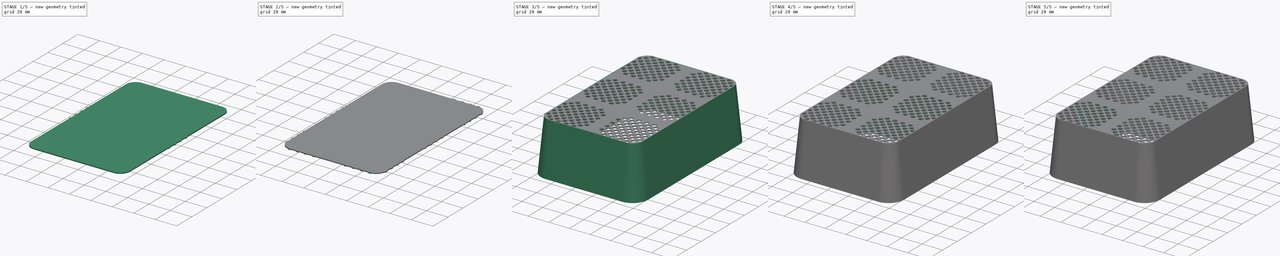
[diagram: build sequence overview — one tinted view per stage of 5, left to right]
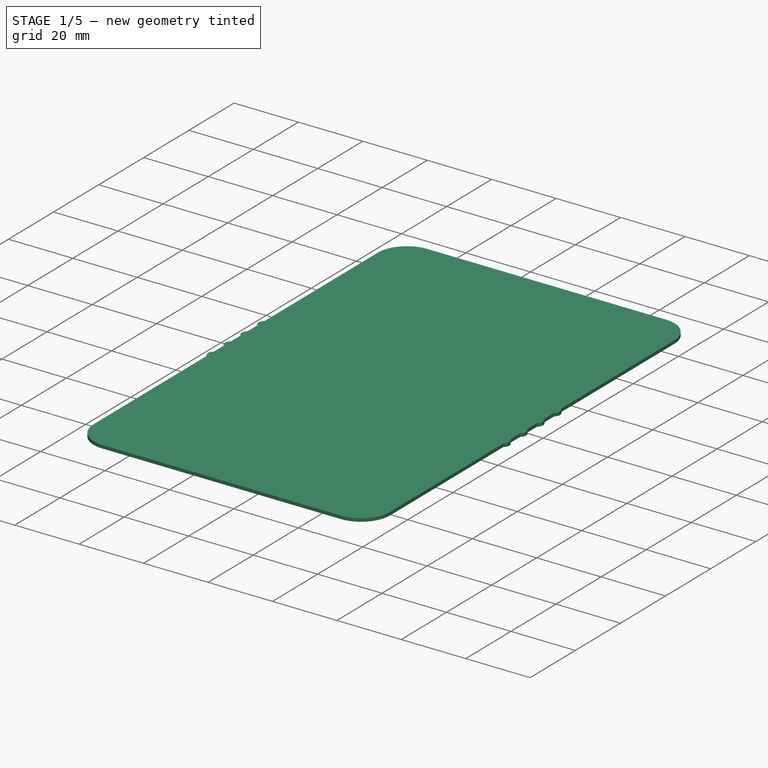
[diagram: stage 1 of 5 — iso view after this stage's code; geometry added in this stage tinted green]
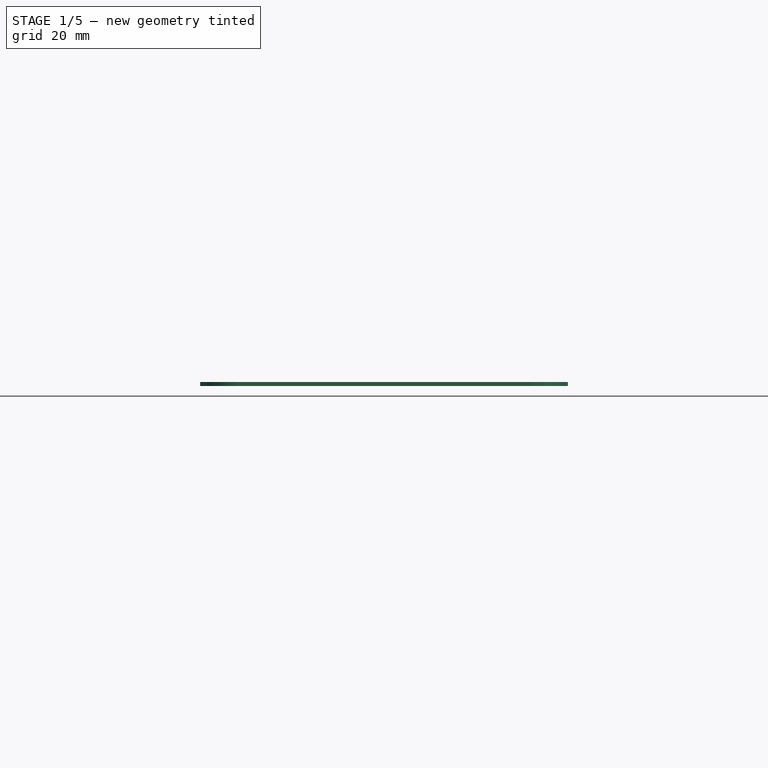
[diagram: stage 1 of 5 — front view after this stage's code; geometry added in this stage tinted green]
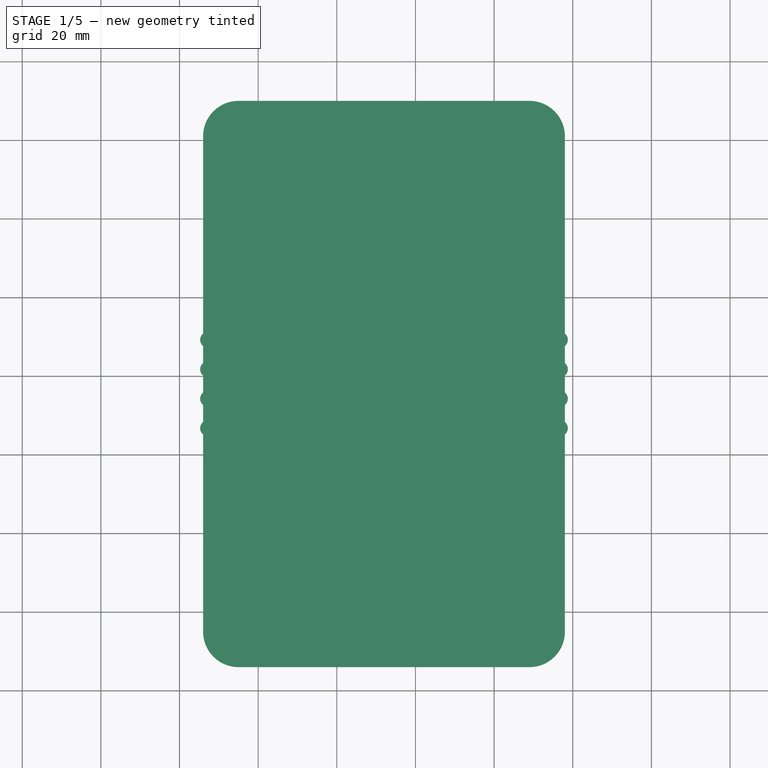
[diagram: stage 1 of 5 — top view after this stage's code; geometry added in this stage tinted green]
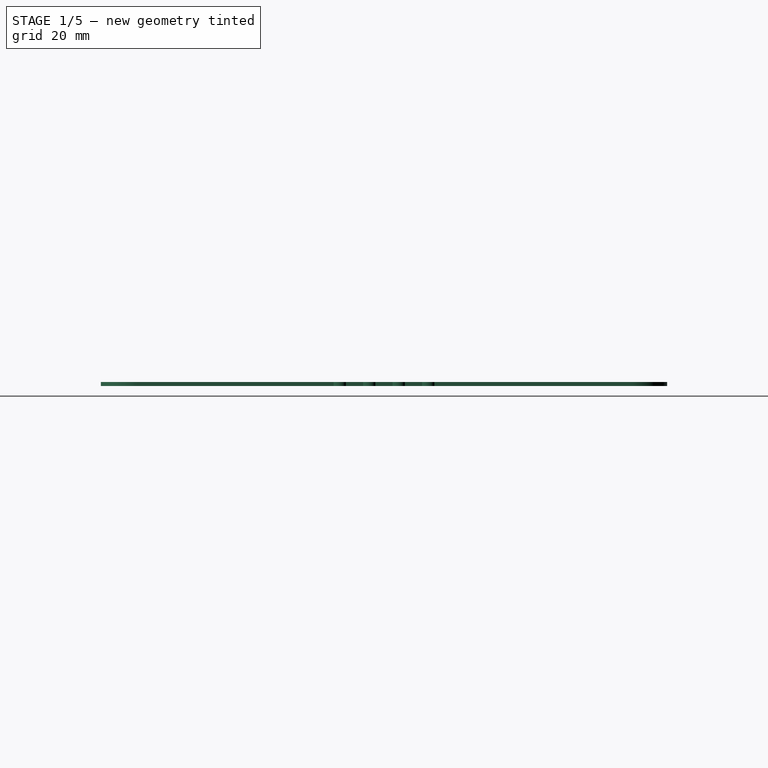
[diagram: stage 1 of 5 — right view after this stage's code; geometry added in this stage tinted green]
FCSTD DOCUMENT  (FreeCAD 0.20R29177 (Git))
Label: SmallPots
License: All rights reserved
LicenseURL: http://en.wikipedia.org/wiki/All_rights_reserved
objects: Sketcher::SketchObject×24, Part::Face×24, Part::Extrusion×9, Part::Loft×6, Part::Cut×6, Part::Fuse×5, Part::Offset×3, Part::MultiCommon×3
note: 80 computed .brp shape members not serialized (recipe doc carries the construction recipe); baked Part::Feature solids carry a one-line shape summary decoded from their .brp

FEATURE [Sketcher::SketchObject] Sketch010
  FullyConstrained = true
  sketch-geometry (8):
    g0: LineSegment StartX=15 StartY=0 StartZ=0 EndX=37 EndY=0 EndZ=0
    g1: LineSegment StartX=52 StartY=15 StartZ=0 EndX=52 EndY=37 EndZ=0
    g2: LineSegment StartX=37 StartY=52 StartZ=0 EndX=15 EndY=52 EndZ=0
    g3: LineSegment StartX=0 StartY=37 StartZ=0 EndX=0 EndY=15 EndZ=0
    g4: ArcOfCircle CenterX=15 CenterY=37 CenterZ=0 NormalX=0 NormalY=0 NormalZ=1 AngleXU=0 Radius=15 StartAngle=1.5708 EndAngle=3.14159
    g5: ArcOfCircle CenterX=37 CenterY=37 CenterZ=0 NormalX=0 NormalY=0 NormalZ=1 AngleXU=0 Radius=15 StartAngle=2e-16 EndAngle=1.5708
    g6: ArcOfCircle CenterX=37 CenterY=15 CenterZ=0 NormalX=0 NormalY=0 NormalZ=1 AngleXU=0 Radius=15 StartAngle=4.71239 EndAngle=6.28319
    g7: ArcOfCircle CenterX=15 CenterY=15 CenterZ=0 NormalX=0 NormalY=0 NormalZ=1 AngleXU=0 Radius=15 StartAngle=3.14159 EndAngle=4.71239
  constraints (20):
    c: Horizontal(g0)
    c: Horizontal(g2)
    c: Vertical(g1)
    c: Vertical(g3)
    c: Tangent(g3,g4) = -1.5708
    c: Tangent(g2,g4) = -1.5708
    c: Tangent(g2,g5) = -1.5708
    c: Tangent(g1,g5) = -1.5708
    c: Tangent(g1,g6) = -1.5708
    c: Tangent(g0,g6) = -1.5708
    c: Tangent(g0,g7) = -1.5708
    c: Tangent(g3,g7) = -1.5708
    c: Radius(g4) = 15
    c: Radius(g5) = 15
    c: Radius(g7) = 15
    c: Radius(g6) = 15
    c: DistanceX(g3,g1) = 52
    c: DistanceY(g0,g2) = 52
    c: PointOnObject(g0,g-1)
    c: PointOnObject(g3,g-2)
FEATURE [Part::Face] Face010
  FaceMakerClass = Part::FaceMakerBullseye
  Sources = -> [Sketch010]
FEATURE [Part::Offset] Offset002
  Fill = false
  Intersection = false
  Join = 0
  Mode = 0
  SelfIntersection = false
  Source = -> Face010
  Value = 50
FEATURE [Sketcher::SketchObject] Sketch012
  FullyConstrained = true
  sketch-geometry (8):
    g0: LineSegment StartX=15 StartY=0 StartZ=0 EndX=89 EndY=0 EndZ=0
    g1: LineSegment StartX=104 StartY=15 StartZ=0 EndX=104 EndY=141 EndZ=0
    g2: LineSegment StartX=89 StartY=156 StartZ=0 EndX=15 EndY=156 EndZ=0
    g3: LineSegment StartX=0 StartY=141 StartZ=0 EndX=0 EndY=15 EndZ=0
    g4: ArcOfCircle CenterX=15 CenterY=141 CenterZ=0 NormalX=0 NormalY=0 NormalZ=1 AngleXU=0 Radius=15 StartAngle=1.5708 EndAngle=3.14159
    g5: ArcOfCircle CenterX=89 CenterY=141 CenterZ=0 NormalX=0 NormalY=0 NormalZ=1 AngleXU=0 Radius=15 StartAngle=-9e-16 EndAngle=1.5708
    g6: ArcOfCircle CenterX=89 CenterY=15 CenterZ=0 NormalX=0 NormalY=0 NormalZ=1 AngleXU=0 Radius=15 StartAngle=4.71239 EndAngle=6.28319
    g7: ArcOfCircle CenterX=15 CenterY=15 CenterZ=0 NormalX=0 NormalY=0 NormalZ=1 AngleXU=0 Radius=15 StartAngle=3.14159 EndAngle=4.71239
  constraints (20):
    c: Horizontal(g0)
    c: Horizontal(g2)
    c: Vertical(g1)
    c: Vertical(g3)
    c: Tangent(g3,g4) = -1.5708
    c: Tangent(g2,g4) = -1.5708
    c: Tangent(g2,g5) = -1.5708
    c: Tangent(g1,g5) = -1.5708
    c: Tangent(g1,g6) = -1.5708
    c: Tangent(g0,g6) = -1.5708
    c: Tangent(g0,g7) = -1.5708
    c: Tangent(g3,g7) = -1.5708
    c: Radius(g4) = 15
    c: Radius(g5) = 15
    c: Radius(g7) = 15
    c: Radius(g6) = 15
    c: DistanceX(g3,g1) = 104
    c: DistanceY(g0,g2) = 156
    c: PointOnObject(g0,g-1)
    c: PointOnObject(g3,g-2)
FEATURE [Part::Face] Face011
  FaceMakerClass = Part::FaceMakerBullseye
  Sources = -> [Sketch012]
FEATURE [Sketcher::SketchObject] Sketch011
  ExternalGeometry = -> [Offset002,Face011]
  FullyConstrained = true
  MapMode = 5
  Placement = pos=(0,0,50) rot=(0,0,1;0rad)
  Support = -> [Offset002]
  sketch-geometry (8):
    g0: LineSegment StartX=15 StartY=151 StartZ=0 EndX=89 EndY=151 EndZ=0
    g1: LineSegment StartX=99 StartY=141 StartZ=0 EndX=99 EndY=15 EndZ=0
    g2: LineSegment StartX=89 StartY=5 StartZ=0 EndX=15 EndY=5 EndZ=0
    g3: LineSegment StartX=5 StartY=15 StartZ=0 EndX=5 EndY=141 EndZ=0
    g4: ArcOfCircle CenterX=15 CenterY=141 CenterZ=0 NormalX=0 NormalY=0 NormalZ=1 AngleXU=0 Radius=10 StartAngle=1.5708 EndAngle=3.14159
    g5: ArcOfCircle CenterX=89 CenterY=141 CenterZ=0 NormalX=0 NormalY=0 NormalZ=1 AngleXU=0 Radius=10 StartAngle=3.2931e-12 EndAngle=1.5708
    g6: ArcOfCircle CenterX=89 CenterY=15 CenterZ=0 NormalX=0 NormalY=0 NormalZ=1 AngleXU=0 Radius=10 StartAngle=4.71239 EndAngle=6.28319
    g7: ArcOfCircle CenterX=15 CenterY=15 CenterZ=0 NormalX=0 NormalY=0 NormalZ=1 AngleXU=0 Radius=10 StartAngle=3.14159 EndAngle=4.71239
  constraints (20):
    c: Horizontal(g0)
    c: Horizontal(g2)
    c: Vertical(g1)
    c: Vertical(g3)
    c: Tangent(g3,g4) = 1.5708
    c: Tangent(g0,g4) = 1.5708
    c: Tangent(g0,g5) = 1.5708
    c: Tangent(g1,g5) = 1.5708
    c: Tangent(g1,g6) = 1.5708
    c: Tangent(g2,g6) = 1.5708
    c: Tangent(g2,g7) = 1.5708
    c: Tangent(g3,g7) = 1.5708
    c: Radius(g4) = 10
    c: Radius(g5) = 10
    c: Radius(g6) = 10
    c: Radius(g7) = 10
    c: DistanceX(g-5,g3) = 5
    c: DistanceY(g-4,g2) = 5
    c: DistanceY(g0,g-8) = 5
    c: DistanceX(g1,g-7) = 5
FEATURE [Part::Face] Face012
  FaceMakerClass = Part::FaceMakerBullseye
  Sources = -> [Sketch011]
FEATURE [Part::Loft] Loft004
  Closed = false
  MaxDegree = 5
  Ruled = false
  Sections = -> [Face011,Face012]
  Solid = true
FEATURE [Sketcher::SketchObject] Sketch013
  ExternalGeometry = -> [Sketch010,Face011]
  FullyConstrained = true
  MapMode = 5
  Support = -> [Face011]
  sketch-geometry (8):
    g0: LineSegment StartX=15 StartY=155 StartZ=0 EndX=89 EndY=155 EndZ=0
    g1: LineSegment StartX=103 StartY=141 StartZ=0 EndX=103 EndY=15 EndZ=0
    g2: LineSegment StartX=89 StartY=1 StartZ=0 EndX=15 EndY=1 EndZ=0
    g3: LineSegment StartX=1 StartY=15 StartZ=0 EndX=1 EndY=141 EndZ=0
    g4: ArcOfCircle CenterX=15 CenterY=141 CenterZ=0 NormalX=0 NormalY=0 NormalZ=1 AngleXU=0 Radius=14 StartAngle=1.5708 EndAngle=3.14159
    g5: ArcOfCircle CenterX=89 CenterY=141 CenterZ=0 NormalX=0 NormalY=0 NormalZ=1 AngleXU=0 Radius=14 StartAngle=0 EndAngle=1.5708
    g6: ArcOfCircle CenterX=89 CenterY=15 CenterZ=0 NormalX=0 NormalY=0 NormalZ=1 AngleXU=0 Radius=14 StartAngle=4.71239 EndAngle=6.28319
    g7: ArcOfCircle CenterX=15 CenterY=15 CenterZ=0 NormalX=0 NormalY=0 NormalZ=1 AngleXU=0 Radius=14 StartAngle=3.14159 EndAngle=4.71239
  constraints (20):
    c: Horizontal(g0)
    c: Horizontal(g2)
    c: Vertical(g1)
    c: Vertical(g3)
    c: Tangent(g3,g4) = 1.5708
    c: Tangent(g0,g4) = 1.5708
    c: Tangent(g0,g5) = 1.5708
    c: Tangent(g1,g5) = 1.5708
    c: Tangent(g1,g6) = 1.5708
    c: Tangent(g2,g6) = 1.5708
    c: Tangent(g2,g7) = 1.5708
    c: Tangent(g3,g7) = 1.5708
    c: Radius(g4) = 14
    c: Radius(g5) = 14
    c: Radius(g6) = 14
    c: Radius(g7) = 14
    c: DistanceY(g-1,g2) = 1
    c: DistanceX(g-1,g3) = 1
    c: DistanceY(g0,g-5) = 1
    c: DistanceX(g1,g-6) = 1
FEATURE [Part::Face] Face013
  FaceMakerClass = Part::FaceMakerBullseye
  Sources = -> [Sketch013]
FEATURE [Sketcher::SketchObject] Sketch014
  AttachmentOffset = pos=(0,0,-1) rot=(0,0,1;0rad)
  ExternalGeometry = -> [Sketch011]
  FullyConstrained = true
  MapMode = 5
  Placement = pos=(0,0,49) rot=(0,0,1;0rad)
  Support = -> [Face012]
  sketch-geometry (8):
    g0: LineSegment StartX=15 StartY=150 StartZ=0 EndX=89 EndY=150 EndZ=0
    g1: LineSegment StartX=98 StartY=141 StartZ=0 EndX=98 EndY=15 EndZ=0
    g2: LineSegment StartX=89 StartY=6 StartZ=0 EndX=15 EndY=6 EndZ=0
    g3: LineSegment StartX=6 StartY=15 StartZ=0 EndX=6 EndY=141 EndZ=0
    g4: ArcOfCircle CenterX=15 CenterY=141 CenterZ=0 NormalX=0 NormalY=0 NormalZ=1 AngleXU=0 Radius=9 StartAngle=1.5708 EndAngle=3.14159
    g5: ArcOfCircle CenterX=89 CenterY=141 CenterZ=0 NormalX=0 NormalY=0 NormalZ=1 AngleXU=0 Radius=9 StartAngle=4.2908e-12 EndAngle=1.5708
    g6: ArcOfCircle CenterX=89 CenterY=15 CenterZ=0 NormalX=0 NormalY=0 NormalZ=1 AngleXU=0 Radius=9 StartAngle=4.71239 EndAngle=6.28319
    g7: ArcOfCircle CenterX=15 CenterY=15 CenterZ=0 NormalX=0 NormalY=0 NormalZ=1 AngleXU=0 Radius=9 StartAngle=3.14159 EndAngle=4.71239
  constraints (20):
    c: Horizontal(g0)
    c: Horizontal(g2)
    c: Vertical(g1)
    c: Vertical(g3)
    c: Tangent(g3,g4) = 1.5708
    c: Tangent(g0,g4) = 1.5708
    c: Tangent(g1,g5) = 1.5708
    c: Tangent(g0,g5) = 1.5708
    c: Tangent(g1,g6) = 1.5708
    c: Tangent(g2,g6) = 1.5708
    c: Tangent(g2,g7) = 1.5708
    c: Tangent(g3,g7) = 1.5708
    c: Radius(g7) = 9
    c: Radius(g4) = 9
    c: Radius(g5) = 9
    c: Radius(g6) = 9
    c: DistanceX(g-6,g3) = 1
    c: DistanceX(g1,g-4) = 1
    c: DistanceY(g0,g-3) = 1
    c: DistanceY(g-5,g2) = 1
FEATURE [Part::Face] Face014
  FaceMakerClass = Part::FaceMakerBullseye
  Sources = -> [Sketch014]
FEATURE [Part::Loft] Loft005
  Closed = false
  MaxDegree = 5
  Ruled = false
  Sections = -> [Face013,Face014]
  Solid = true
FEATURE [Part::Cut] Cut002  label="Pot 2x3_"
  Base = -> Loft004
  Tool = -> Loft005
FEATURE [Sketcher::SketchObject] Sketch017
  FullyConstrained = true
  sketch-geometry (95):
    g0: LineSegment StartX=0 StartY=0 StartZ=0 EndX=52 EndY=0 EndZ=0
    g1: LineSegment StartX=52 StartY=0 StartZ=0 EndX=52 EndY=52 EndZ=0
    g2: LineSegment StartX=52 StartY=52 StartZ=0 EndX=0 EndY=52 EndZ=0
    g3: LineSegment StartX=0 StartY=52 StartZ=0 EndX=0 EndY=0 EndZ=0
    g4: LineSegment StartX=4 StartY=48 StartZ=0 EndX=48 EndY=48 EndZ=0
    g5: LineSegment StartX=48 StartY=48 StartZ=0 EndX=48 EndY=4 EndZ=0
    g6: LineSegment StartX=48 StartY=4 StartZ=0 EndX=4 EndY=4 EndZ=0
    g7: LineSegment StartX=4 StartY=4 StartZ=0 EndX=4 EndY=48 EndZ=0
    g8: LineSegment StartX=7.25 StartY=48 StartZ=0 EndX=7.25 EndY=4 EndZ=0
    g9: LineSegment StartX=14.75 StartY=4 StartZ=0 EndX=14.75 EndY=48 EndZ=0
    g10: LineSegment StartX=22.25 StartY=48 StartZ=0 EndX=22.25 EndY=4 EndZ=0
    g11: LineSegment StartX=29.75 StartY=4 StartZ=0 EndX=29.75 EndY=48 EndZ=0
    g12: LineSegment StartX=37.25 StartY=48 StartZ=0 EndX=37.25 EndY=4 EndZ=0
    g13: LineSegment StartX=44.75 StartY=48 StartZ=0 EndX=44.75 EndY=4 EndZ=0
    g14: LineSegment StartX=4 StartY=44.75 StartZ=0 EndX=48 EndY=44.75 EndZ=0
    g15: LineSegment StartX=48 StartY=37.25 StartZ=0 EndX=4 EndY=37.25 EndZ=0
    g16: LineSegment StartX=4 StartY=29.75 StartZ=0 EndX=48 EndY=29.75 EndZ=0
    g17: LineSegment StartX=48 StartY=22.25 StartZ=0 EndX=4 EndY=22.25 EndZ=0
    g18: LineSegment StartX=4 StartY=7.25 StartZ=0 EndX=48 EndY=7.25 EndZ=0
    g19: LineSegment StartX=48 StartY=14.75 StartZ=0 EndX=4 EndY=14.75 EndZ=0
    g20: LineSegment StartX=4 StartY=4 StartZ=0 EndX=48 EndY=48 EndZ=0
    g21: LineSegment StartX=48 StartY=4 StartZ=0 EndX=4 EndY=48 EndZ=0
    g22: LineSegment StartX=14.75 StartY=44.75 StartZ=0 EndX=44.75 EndY=14.75 EndZ=0
    g23: LineSegment StartX=44.75 StartY=22.25 StartZ=0 EndX=22.25 EndY=44.75 EndZ=0
    g24: LineSegment StartX=44.75 StartY=29.75 StartZ=0 EndX=29.75 EndY=44.75 EndZ=0
    g25: LineSegment StartX=44.75 StartY=37.25 StartZ=0 EndX=37.25 EndY=44.75 EndZ=0
    g26: LineSegment StartX=14.75 StartY=7.25 StartZ=0 EndX=7.25 EndY=14.75 EndZ=0
    g27: LineSegment StartX=7.25 StartY=22.25 StartZ=0 EndX=22.25 EndY=7.25 EndZ=0
    g28: LineSegment StartX=29.75 StartY=7.25 StartZ=0 EndX=7.25 EndY=29.75 EndZ=0
    g29: LineSegment StartX=7.25 StartY=37.25 StartZ=0 EndX=37.25 EndY=7.25 EndZ=0
    g30: LineSegment StartX=7.25 StartY=37.25 StartZ=0 EndX=14.75 EndY=44.75 EndZ=0
    g31: LineSegment StartX=7.25 StartY=29.75 StartZ=0 EndX=22.25 EndY=44.75 EndZ=0
    g32: LineSegment StartX=7.25 StartY=22.25 StartZ=0 EndX=29.75 EndY=44.75 EndZ=0
    g33: LineSegment StartX=7.25 StartY=14.75 StartZ=0 EndX=37.25 EndY=44.75 EndZ=0
    g34: LineSegment StartX=14.75 StartY=7.25 StartZ=0 EndX=44.75 EndY=37.25 EndZ=0
    g35: LineSegment StartX=29.75 StartY=7.25 StartZ=0 EndX=44.75 EndY=22.25 EndZ=0
    g36: LineSegment StartX=37.25 StartY=7.25 StartZ=0 EndX=44.75 EndY=14.75 EndZ=0
    g37: Circle CenterX=11 CenterY=11 CenterZ=0 NormalX=0 NormalY=0 NormalZ=1 AngleXU=0 Radius=2
    g38: Circle CenterX=14.75 CenterY=7.25 CenterZ=0 NormalX=0 NormalY=0 NormalZ=1 AngleXU=0 Radius=2
    g39: Circle CenterX=22.25 CenterY=7.25 CenterZ=0 NormalX=0 NormalY=0 NormalZ=1 AngleXU=0 Radius=2
    g40: Circle CenterX=29.75 CenterY=7.25 CenterZ=0 NormalX=0 NormalY=0 NormalZ=1 AngleXU=0 Radius=2
    g41: Circle CenterX=37.25 CenterY=7.25 CenterZ=0 NormalX=0 NormalY=0 NormalZ=1 AngleXU=0 Radius=2
    g42: Circle CenterX=44.75 CenterY=14.75 CenterZ=0 NormalX=0 NormalY=0 NormalZ=1 AngleXU=0 Radius=2
    g43: Circle CenterX=44.75 CenterY=22.25 CenterZ=0 NormalX=0 NormalY=0 NormalZ=1 AngleXU=0 Radius=2
    g44: Circle CenterX=44.75 CenterY=29.75 CenterZ=0 NormalX=0 NormalY=0 NormalZ=1 AngleXU=0 Radius=2
    g45: Circle CenterX=44.75 CenterY=37.25 CenterZ=0 NormalX=0 NormalY=0 NormalZ=1 AngleXU=0 Radius=2
    g46: Circle CenterX=37.25 CenterY=44.75 CenterZ=0 NormalX=0 NormalY=0 NormalZ=1 AngleXU=0 Radius=2
    g47: Circle CenterX=29.75 CenterY=44.75 CenterZ=0 NormalX=0 NormalY=0 NormalZ=1 AngleXU=0 Radius=2
    g48: Circle CenterX=22.25 CenterY=44.75 CenterZ=0 NormalX=0 NormalY=0 NormalZ=1 AngleXU=0 Radius=2
    g49: Circle CenterX=14.75 CenterY=44.75 CenterZ=0 NormalX=0 NormalY=0 NormalZ=1 AngleXU=0 Radius=2
    g50: Circle CenterX=7.25 CenterY=37.25 CenterZ=0 NormalX=0 NormalY=0 NormalZ=1 AngleXU=0 Radius=2
    g51: Circle CenterX=7.25 CenterY=29.75 CenterZ=0 NormalX=0 NormalY=0 NormalZ=1 AngleXU=0 Radius=2
    g52: Circle CenterX=7.25 CenterY=22.25 CenterZ=0 NormalX=0 NormalY=0 NormalZ=1 AngleXU=0 Radius=2
    g53: Circle CenterX=7.25 CenterY=14.75 CenterZ=0 NormalX=0 NormalY=0 NormalZ=1 AngleXU=0 Radius=2
    g54: Circle CenterX=11 CenterY=18.5 CenterZ=0 NormalX=0 NormalY=0 NormalZ=1 AngleXU=0 Radius=2
    g55: Circle CenterX=11 CenterY=26 CenterZ=0 NormalX=0 NormalY=0 NormalZ=1 AngleXU=0 Radius=2
    g56: Circle CenterX=11 CenterY=33.5 CenterZ=0 NormalX=0 NormalY=0 NormalZ=1 AngleXU=0 Radius=2
    g57: Circle CenterX=11 CenterY=41 CenterZ=0 NormalX=0 NormalY=0 NormalZ=1 AngleXU=0 Radius=2
    g58: Circle CenterX=18.5 CenterY=41 CenterZ=0 NormalX=0 NormalY=0 NormalZ=1 AngleXU=0 Radius=2
    g59: Circle CenterX=14.75 CenterY=37.25 CenterZ=0 NormalX=0 NormalY=0 NormalZ=1 AngleXU=0 Radius=2
    g60: Circle CenterX=26 CenterY=41 CenterZ=0 NormalX=0 NormalY=0 NormalZ=1 AngleXU=0 Radius=2
    g61: Circle CenterX=22.25 CenterY=37.25 CenterZ=0 NormalX=0 NormalY=0 NormalZ=1 AngleXU=0 Radius=2
    g62: Circle CenterX=18.5 CenterY=33.5 CenterZ=0 NormalX=0 NormalY=0 NormalZ=1 AngleXU=0 Radius=2
    g63: Circle CenterX=14.75 CenterY=29.75 CenterZ=0 NormalX=0 NormalY=0 NormalZ=1 AngleXU=0 Radius=2
    g64: Circle CenterX=14.75 CenterY=22.25 CenterZ=0 NormalX=0 NormalY=0 NormalZ=1 AngleXU=0 Radius=2
    g65: Circle CenterX=14.75 CenterY=14.75 CenterZ=0 NormalX=0 NormalY=0 NormalZ=1 AngleXU=0 Radius=2
    g66: Circle CenterX=18.5 CenterY=11 CenterZ=0 NormalX=0 NormalY=0 NormalZ=1 AngleXU=0 Radius=2
    g67: Circle CenterX=18.5 CenterY=18.5 CenterZ=0 NormalX=0 NormalY=0 NormalZ=1 AngleXU=0 Radius=2
    g68: Circle CenterX=18.5 CenterY=26 CenterZ=0 NormalX=0 NormalY=0 NormalZ=1 AngleXU=0 Radius=2
    g69: Circle CenterX=22.25 CenterY=14.75 CenterZ=0 NormalX=0 NormalY=0 NormalZ=1 AngleXU=0 Radius=2
    g70: Circle CenterX=22.25 CenterY=22.25 CenterZ=0 NormalX=0 NormalY=0 NormalZ=1 AngleXU=0 Radius=2
    g71: Circle CenterX=22.25 CenterY=29.75 CenterZ=0 NormalX=0 NormalY=0 NormalZ=1 AngleXU=0 Radius=2
    g72: Circle CenterX=26 CenterY=18.5 CenterZ=0 NormalX=0 NormalY=0 NormalZ=1 AngleXU=0 Radius=2
    g73: Circle CenterX=26 CenterY=26 CenterZ=0 NormalX=0 NormalY=0 NormalZ=1 AngleXU=0 Radius=2
    g74: Circle CenterX=26 CenterY=33.5 CenterZ=0 NormalX=0 NormalY=0 NormalZ=1 AngleXU=0 Radius=2
    g75: Circle CenterX=29.75 CenterY=37.25 CenterZ=0 NormalX=0 NormalY=0 NormalZ=1 AngleXU=0 Radius=2
    g76: Circle CenterX=29.75 CenterY=29.75 CenterZ=0 NormalX=0 NormalY=0 NormalZ=1 AngleXU=0 Radius=2
    g77: Circle CenterX=29.75 CenterY=22.25 CenterZ=0 NormalX=0 NormalY=0 NormalZ=1 AngleXU=0 Radius=2
    g78: Circle CenterX=29.75 CenterY=14.75 CenterZ=0 NormalX=0 NormalY=0 NormalZ=1 AngleXU=0 Radius=2
    g79: Circle CenterX=26 CenterY=11 CenterZ=0 NormalX=0 NormalY=0 NormalZ=1 AngleXU=0 Radius=2
    g80: Circle CenterX=33.5 CenterY=11 CenterZ=0 NormalX=0 NormalY=0 NormalZ=1 AngleXU=0 Radius=2
    g81: Circle CenterX=37.25 CenterY=14.75 CenterZ=0 NormalX=0 NormalY=0 NormalZ=1 AngleXU=0 Radius=2
    g82: Circle CenterX=33.5 CenterY=18.5 CenterZ=0 NormalX=0 NormalY=0 NormalZ=1 AngleXU=0 Radius=2
    g83: Circle CenterX=37.25 CenterY=22.25 CenterZ=0 NormalX=0 NormalY=0 NormalZ=1 AngleXU=0 Radius=2
    g84: Circle CenterX=33.5 CenterY=26 CenterZ=0 NormalX=0 NormalY=0 NormalZ=1 AngleXU=0 Radius=2
    g85: Circle CenterX=33.5 CenterY=33.5 CenterZ=0 NormalX=0 NormalY=0 NormalZ=1 AngleXU=0 Radius=2
    g86: Circle CenterX=33.5 CenterY=41 CenterZ=0 NormalX=0 NormalY=0 NormalZ=1 AngleXU=0 Radius=2
    g87: Circle CenterX=37.25 CenterY=37.25 CenterZ=0 NormalX=0 NormalY=0 NormalZ=1 AngleXU=0 Radius=2
    g88: Circle CenterX=37.25 CenterY=29.75 CenterZ=0 NormalX=0 NormalY=0 NormalZ=1 AngleXU=0 Radius=2
    g89: Circle CenterX=41 CenterY=11 CenterZ=0 NormalX=0 NormalY=0 NormalZ=1 AngleXU=0 Radius=2
    g90: Circle CenterX=41 CenterY=18.5 CenterZ=0 NormalX=0 NormalY=0 NormalZ=1 AngleXU=0 Radius=2
    g91: Circle CenterX=41 CenterY=26 CenterZ=0 NormalX=0 NormalY=0 NormalZ=1 AngleXU=0 Radius=2
    g92: Circle CenterX=41 CenterY=33.5 CenterZ=0 NormalX=0 NormalY=0 NormalZ=1 AngleXU=0 Radius=2
    g93: Circle CenterX=41 CenterY=41 CenterZ=0 NormalX=0 NormalY=0 NormalZ=1 AngleXU=0 Radius=2
    g94: LineSegment StartX=22.25 StartY=7.25 StartZ=0 EndX=44.75 EndY=29.75 EndZ=0
  constraints (278):
    c: Coincident(g0,g1)
    c: Coincident(g1,g2)
    c: Coincident(g2,g3)
    c: Coincident(g3,g0)
    c: Horizontal(g0)
    c: Horizontal(g2)
    c: Vertical(g1)
    c: Vertical(g3)
    c: Coincident(g0,g-1)
    c: DistanceX(g2,g2) = 52
    c: DistanceY(g1,g1) = 52
    c: Coincident(g4,g5)
    c: Coincident(g5,g6)
    c: Coincident(g6,g7)
    c: Coincident(g7,g4)
    c: Horizontal(g4)
    c: Horizontal(g6)
    c: Vertical(g5)
    c: Vertical(g7)
    c: DistanceX(g0,g6) = 4
    c: DistanceY(g0,g6) = 4
    c: DistanceX(g4,g1) = 4
    c: DistanceY(g4,g1) = 4
    c: PointOnObject(g8,g4)
    c: PointOnObject(g8,g6)
    c: Vertical(g8)
    c: PointOnObject(g9,g6)
    c: PointOnObject(g9,g4)
    c: Vertical(g9)
    c: DistanceX(g4,g8) = 3.25
    c: DistanceX(g8,g9) = 7.5
    c: PointOnObject(g10,g4)
    c: PointOnObject(g10,g6)
    c: Vertical(g10)
    c: PointOnObject(g11,g6)
    c: PointOnObject(g11,g4)
    c: Vertical(g11)
    c: PointOnObject(g12,g4)
    c: PointOnObject(g12,g6)
    c: Vertical(g12)
    c: DistanceX(g9,g10) = 7.5
    c: DistanceX(g10,g11) = 7.5
    c: DistanceX(g11,g12) = 7.5
    c: PointOnObject(g13,g4)
    c: PointOnObject(g13,g6)
    c: Vertical(g13)
    c: DistanceX(g12,g13) = 7.5
    c: PointOnObject(g14,g7)
    c: PointOnObject(g14,g5)
    c: Horizontal(g14)
    c: PointOnObject(g15,g5)
    c: PointOnObject(g15,g7)
    c: Horizontal(g15)
    c: PointOnObject(g16,g7)
    c: PointOnObject(g16,g5)
    c: Horizontal(g16)
    c: PointOnObject(g17,g5)
    c: PointOnObject(g17,g7)
    c: Horizontal(g17)
    c: PointOnObject(g18,g7)
    c: PointOnObject(g18,g5)
    c: Horizontal(g18)
    c: PointOnObject(g19,g5)
    c: PointOnObject(g19,g7)
    c: Horizontal(g19)
    c: DistanceY(g14,g4) = 3.25
    c: DistanceY(g15,g14) = 7.5
    c: DistanceY(g16,g15) = 7.5
    c: DistanceY(g17,g16) = 7.5
    c: DistanceY(g19,g17) = 7.5
    c: DistanceY(g18,g19) = 7.5
    c: Coincident(g20,g6)
    c: Coincident(g20,g4)
    c: Coincident(g21,g5)
    c: Coincident(g21,g4)
    c: PointOnObject(g22,g14)
    c: PointOnObject(g22,g19)
    c: PointOnObject(g23,g13)
    c: PointOnObject(g23,g14)
    c: PointOnObject(g24,g16)
    c: PointOnObject(g24,g11)
    c: PointOnObject(g25,g15)
    c: PointOnObject(g25,g12)
    c: PointOnObject(g26,g9)
    c: PointOnObject(g26,g8)
    c: PointOnObject(g27,g17)
    c: PointOnObject(g27,g18)
    c: PointOnObject(g28,g18)
    c: PointOnObject(g28,g16)
    c: PointOnObject(g29,g15)
    c: PointOnObject(g29,g12)
    c: PointOnObject(g22,g9)
    c: PointOnObject(g23,g10)
    c: PointOnObject(g24,g14)
    c: PointOnObject(g25,g14)
    c: PointOnObject(g29,g8)
    c: PointOnObject(g28,g8)
    c: PointOnObject(g27,g8)
    c: PointOnObject(g26,g19)
    c: PointOnObject(g26,g18)
    c: PointOnObject(g27,g10)
    c: PointOnObject(g28,g11)
    c: PointOnObject(g29,g18)
    c: PointOnObject(g22,g13)
    c: PointOnObject(g23,g17)
    c: PointOnObject(g24,g13)
    c: PointOnObject(g25,g13)
    c: Coincident(g30,g29)
    c: Coincident(g30,g22)
    c: Coincident(g31,g28)
    c: Coincident(g31,g23)
    c: Coincident(g32,g27)
    c: Coincident(g32,g24)
    c: Coincident(g33,g26)
    c: Coincident(g33,g25)
    c: Coincident(g34,g26)
    c: Coincident(g34,g25)
    c: Coincident(g35,g28)
    c: Coincident(g35,g23)
    c: Coincident(g36,g29)
    c: Coincident(g36,g22)
    c: PointOnObject(g37,g26)
    c: Coincident(g38,g26)
    c: Coincident(g39,g27)
    c: Coincident(g40,g28)
    c: Coincident(g41,g29)
    c: Coincident(g42,g22)
    c: Coincident(g43,g23)
    c: Coincident(g44,g24)
    c: Coincident(g45,g25)
    c: Coincident(g46,g25)
    c: Coincident(g47,g24)
    c: Coincident(g48,g23)
    c: Coincident(g49,g22)
    c: Coincident(g50,g29)
    c: Coincident(g51,g28)
    c: Coincident(g52,g27)
    c: Coincident(g53,g26)
    c: PointOnObject(g54,g27)
    c: PointOnObject(g55,g32)
    c: PointOnObject(g56,g31)
    c: PointOnObject(g57,g30)
    c: PointOnObject(g58,g31)
    c: PointOnObject(g59,g21)
    c: PointOnObject(g60,g32)
    c: PointOnObject(g61,g32)
    c: PointOnObject(g62,g32)
    c: PointOnObject(g63,g32)
    c: PointOnObject(g64,g9)
    c: PointOnObject(g65,g19)
    c: PointOnObject(g66,g34)
    c: PointOnObject(g67,g20)
    c: PointOnObject(g68,g33)
    c: PointOnObject(g69,g34)
    c: PointOnObject(g70,g20)
    c: PointOnObject(g71,g33)
    c: PointOnObject(g72,g34)
    c: PointOnObject(g73,g20)
    c: PointOnObject(g74,g33)
    c: PointOnObject(g75,g33)
    c: PointOnObject(g76,g20)
    c: PointOnObject(g77,g34)
    c: PointOnObject(g78,g19)
    c: PointOnObject(g79,g28)
    c: PointOnObject(g80,g29)
    c: PointOnObject(g81,g21)
    c: PointOnObject(g82,g21)
    c: PointOnObject(g83,g17)
    c: PointOnObject(g84,g22)
    c: PointOnObject(g85,g20)
    c: PointOnObject(g86,g33)
    c: PointOnObject(g87,g20)
    c: PointOnObject(g88,g34)
    c: PointOnObject(g89,g36)
    c: PointOnObject(g90,g35)
    c: PointOnObject(g91,g23)
    c: PointOnObject(g92,g24)
    c: PointOnObject(g93,g20)
    c: Coincident(g94,g39)
    c: Coincident(g94,g44)
    c: Diameter(g38) = 4
    c: Diameter(g39) = 4
    c: Diameter(g40) = 4
    c: Diameter(g41) = 4
    c: Diameter(g37) = 4
    c: Diameter(g66) = 4
    c: Diameter(g79) = 4
    c: Diameter(g80) = 4
    c: Diameter(g89) = 4
    c: Diameter(g42) = 4
    c: Diameter(g81) = 4
    c: Diameter(g78) = 4
    c: Diameter(g69) = 4
    c: Diameter(g65) = 4
    c: Diameter(g53) = 4
    c: PointOnObject(g89,g21)
    c: PointOnObject(g80,g35)
    c: PointOnObject(g79,g94)
    c: PointOnObject(g66,g27)
    c: PointOnObject(g37,g20)
    c: PointOnObject(g54,g33)
    c: PointOnObject(g67,g28)
    c: PointOnObject(g69,g28)
    c: PointOnObject(g72,g29)
    c: PointOnObject(g65,g20)
    c: PointOnObject(g78,g11)
    c: PointOnObject(g81,g35)
    c: PointOnObject(g90,g22)
    c: PointOnObject(g82,g94)
    c: PointOnObject(g64,g17)
    c: PointOnObject(g70,g29)
    c: PointOnObject(g77,g21)
    c: PointOnObject(g83,g12)
    c: PointOnObject(g91,g94)
    c: PointOnObject(g84,g34)
    c: PointOnObject(g73,g21)
    c: PointOnObject(g68,g29)
    c: PointOnObject(g55,g28)
    c: PointOnObject(g63,g29)
    c: PointOnObject(g71,g21)
    c: PointOnObject(g76,g22)
    c: PointOnObject(g88,g23)
    c: Diameter(g54) = 4
    c: Diameter(g67) = 4
    c: Diameter(g72) = 4
    c: Diameter(g82) = 4
    c: Diameter(g90) = 4
    c: Diameter(g43) = 4
    c: Diameter(g83) = 4
    c: Diameter(g77) = 4
    c: Diameter(g70) = 4
    c: Diameter(g64) = 4
    c: Diameter(g52) = 4
    c: Diameter(g55) = 4
    c: Diameter(g68) = 4
    c: Diameter(g73) = 4
    c: Diameter(g84) = 4
    c: Diameter(g91) = 4
    c: Diameter(g44) = 4
    c: Diameter(g88) = 4
    c: Diameter(g76) = 4
    c: Diameter(g71) = 4
    c: Diameter(g63) = 4
    c: Diameter(g51) = 4
    c: Diameter(g56) = 4
    c: Diameter(g62) = 4
    c: Diameter(g74) = 4
    c: Diameter(g85) = 4
    c: Diameter(g92) = 4
    c: Diameter(g45) = 4
    c: Diameter(g93) = 4
    c: Diameter(g87) = 4
    c: Diameter(g75) = 4
    c: Diameter(g61) = 4
    c: Diameter(g59) = 4
    c: Diameter(g50) = 4
    c: Diameter(g57) = 4
    c: Diameter(g49) = 4
    c: Diameter(g48) = 4
    c: Diameter(g47) = 4
    c: Diameter(g46) = 4
    c: Diameter(g86) = 4
    c: PointOnObject(g56,g29)
    c: PointOnObject(g62,g21)
    c: PointOnObject(g74,g22)
    c: PointOnObject(g85,g23)
    c: PointOnObject(g92,g34)
    c: PointOnObject(g87,g24)
    c: PointOnObject(g75,g23)
    c: PointOnObject(g61,g10)
    c: PointOnObject(g59,g9)
    c: PointOnObject(g57,g21)
    c: Diameter(g58) = 4
    c: Diameter(g60) = 4
    c: PointOnObject(g58,g22)
    c: PointOnObject(g60,g23)
    c: PointOnObject(g86,g24)
    c: PointOnObject(g93,g25)
FEATURE [Part::Face] Face017
  FaceMakerClass = Part::FaceMakerBullseye
  Sources = -> [Sketch017]
FEATURE [Part::Extrusion] Extrude002
  Base = -> Face017
  Dir = (0,0,1)
  DirMode = 2
  FaceMakerClass = Part::FaceMakerBullseye
  LengthFwd = 1
  LengthRev = 0
  Placement = pos=(0,52,49) rot=(0,0,1;0rad)
  Solid = false
  Symmetric = false
FEATURE [Sketcher::SketchObject] Sketch018
  FullyConstrained = true
  sketch-geometry (95):
    g0: LineSegment StartX=0 StartY=0 StartZ=0 EndX=52 EndY=0 EndZ=0
    g1: LineSegment StartX=52 StartY=0 StartZ=0 EndX=52 EndY=52 EndZ=0
    g2: LineSegment StartX=52 StartY=52 StartZ=0 EndX=0 EndY=52 EndZ=0
    g3: LineSegment StartX=0 StartY=52 StartZ=0 EndX=0 EndY=0 EndZ=0
    g4: LineSegment StartX=4 StartY=48 StartZ=0 EndX=48 EndY=48 EndZ=0
    g5: LineSegment StartX=48 StartY=48 StartZ=0 EndX=48 EndY=4 EndZ=0
    g6: LineSegment StartX=48 StartY=4 StartZ=0 EndX=4 EndY=4 EndZ=0
    g7: LineSegment StartX=4 StartY=4 StartZ=0 EndX=4 EndY=48 EndZ=0
    g8: LineSegment StartX=7.25 StartY=48 StartZ=0 EndX=7.25 EndY=4 EndZ=0
    g9: LineSegment StartX=14.75 StartY=4 StartZ=0 EndX=14.75 EndY=48 EndZ=0
    g10: LineSegment StartX=22.25 StartY=48 StartZ=0 EndX=22.25 EndY=4 EndZ=0
    g11: LineSegment StartX=29.75 StartY=4 StartZ=0 EndX=29.75 EndY=48 EndZ=0
    g12: LineSegment StartX=37.25 StartY=48 StartZ=0 EndX=37.25 EndY=4 EndZ=0
    g13: LineSegment StartX=44.75 StartY=48 StartZ=0 EndX=44.75 EndY=4 EndZ=0
    g14: LineSegment StartX=4 StartY=44.75 StartZ=0 EndX=48 EndY=44.75 EndZ=0
    g15: LineSegment StartX=48 StartY=37.25 StartZ=0 EndX=4 EndY=37.25 EndZ=0
    g16: LineSegment StartX=4 StartY=29.75 StartZ=0 EndX=48 EndY=29.75 EndZ=0
    g17: LineSegment StartX=48 StartY=22.25 StartZ=0 EndX=4 EndY=22.25 EndZ=0
    g18: LineSegment StartX=4 StartY=7.25 StartZ=0 EndX=48 EndY=7.25 EndZ=0
    g19: LineSegment StartX=48 StartY=14.75 StartZ=0 EndX=4 EndY=14.75 EndZ=0
    g20: LineSegment StartX=4 StartY=4 StartZ=0 EndX=48 EndY=48 EndZ=0
    g21: LineSegment StartX=48 StartY=4 StartZ=0 EndX=4 EndY=48 EndZ=0
    g22: LineSegment StartX=14.75 StartY=44.75 StartZ=0 EndX=44.75 EndY=14.75 EndZ=0
    g23: LineSegment StartX=44.75 StartY=22.25 StartZ=0 EndX=22.25 EndY=44.75 EndZ=0
    g24: LineSegment StartX=44.75 StartY=29.75 StartZ=0 EndX=29.75 EndY=44.75 EndZ=0
    g25: LineSegment StartX=44.75 StartY=37.25 StartZ=0 EndX=37.25 EndY=44.75 EndZ=0
    g26: LineSegment StartX=14.75 StartY=7.25 StartZ=0 EndX=7.25 EndY=14.75 EndZ=0
    g27: LineSegment StartX=7.25 StartY=22.25 StartZ=0 EndX=22.25 EndY=7.25 EndZ=0
    g28: LineSegment StartX=29.75 StartY=7.25 StartZ=0 EndX=7.25 EndY=29.75 EndZ=0
    g29: LineSegment StartX=7.25 StartY=37.25 StartZ=0 EndX=37.25 EndY=7.25 EndZ=0
    g30: LineSegment StartX=7.25 StartY=37.25 StartZ=0 EndX=14.75 EndY=44.75 EndZ=0
    g31: LineSegment StartX=7.25 StartY=29.75 StartZ=0 EndX=22.25 EndY=44.75 EndZ=0
    g32: LineSegment StartX=7.25 StartY=22.25 StartZ=0 EndX=29.75 EndY=44.75 EndZ=0
    g33: LineSegment StartX=7.25 StartY=14.75 StartZ=0 EndX=37.25 EndY=44.75 EndZ=0
    g34: LineSegment StartX=14.75 StartY=7.25 StartZ=0 EndX=44.75 EndY=37.25 EndZ=0
    g35: LineSegment StartX=29.75 StartY=7.25 StartZ=0 EndX=44.75 EndY=22.25 EndZ=0
    g36: LineSegment StartX=37.25 StartY=7.25 StartZ=0 EndX=44.75 EndY=14.75 EndZ=0
    g37: Circle CenterX=11 CenterY=11 CenterZ=0 NormalX=0 NormalY=0 NormalZ=1 AngleXU=0 Radius=2
    g38: Circle CenterX=14.75 CenterY=7.25 CenterZ=0 NormalX=0 NormalY=0 NormalZ=1 AngleXU=0 Radius=2
    g39: Circle CenterX=22.25 CenterY=7.25 CenterZ=0 NormalX=0 NormalY=0 NormalZ=1 AngleXU=0 Radius=2
    g40: Circle CenterX=29.75 CenterY=7.25 CenterZ=0 NormalX=0 NormalY=0 NormalZ=1 AngleXU=0 Radius=2
    g41: Circle CenterX=37.25 CenterY=7.25 CenterZ=0 NormalX=0 NormalY=0 NormalZ=1 AngleXU=0 Radius=2
    g42: Circle CenterX=44.75 CenterY=14.75 CenterZ=0 NormalX=0 NormalY=0 NormalZ=1 AngleXU=0 Radius=2
    g43: Circle CenterX=44.75 CenterY=22.25 CenterZ=0 NormalX=0 NormalY=0 NormalZ=1 AngleXU=0 Radius=2
    g44: Circle CenterX=44.75 CenterY=29.75 CenterZ=0 NormalX=0 NormalY=0 NormalZ=1 AngleXU=0 Radius=2
    g45: Circle CenterX=44.75 CenterY=37.25 CenterZ=0 NormalX=0 NormalY=0 NormalZ=1 AngleXU=0 Radius=2
    g46: Circle CenterX=37.25 CenterY=44.75 CenterZ=0 NormalX=0 NormalY=0 NormalZ=1 AngleXU=0 Radius=2
    g47: Circle CenterX=29.75 CenterY=44.75 CenterZ=0 NormalX=0 NormalY=0 NormalZ=1 AngleXU=0 Radius=2
    g48: Circle CenterX=22.25 CenterY=44.75 CenterZ=0 NormalX=0 NormalY=0 NormalZ=1 AngleXU=0 Radius=2
    g49: Circle CenterX=14.75 CenterY=44.75 CenterZ=0 NormalX=0 NormalY=0 NormalZ=1 AngleXU=0 Radius=2
    g50: Circle CenterX=7.25 CenterY=37.25 CenterZ=0 NormalX=0 NormalY=0 NormalZ=1 AngleXU=0 Radius=2
    g51: Circle CenterX=7.25 CenterY=29.75 CenterZ=0 NormalX=0 NormalY=0 NormalZ=1 AngleXU=0 Radius=2
    g52: Circle CenterX=7.25 CenterY=22.25 CenterZ=0 NormalX=0 NormalY=0 NormalZ=1 AngleXU=0 Radius=2
    g53: Circle CenterX=7.25 CenterY=14.75 CenterZ=0 NormalX=0 NormalY=0 NormalZ=1 AngleXU=0 Radius=2
    g54: Circle CenterX=11 CenterY=18.5 CenterZ=0 NormalX=0 NormalY=0 NormalZ=1 AngleXU=0 Radius=2
    g55: Circle CenterX=11 CenterY=26 CenterZ=0 NormalX=0 NormalY=0 NormalZ=1 AngleXU=0 Radius=2
    g56: Circle CenterX=11 CenterY=33.5 CenterZ=0 NormalX=0 NormalY=0 NormalZ=1 AngleXU=0 Radius=2
    g57: Circle CenterX=11 CenterY=41 CenterZ=0 NormalX=0 NormalY=0 NormalZ=1 AngleXU=0 Radius=2
    g58: Circle CenterX=18.5 CenterY=41 CenterZ=0 NormalX=0 NormalY=0 NormalZ=1 AngleXU=0 Radius=2
    g59: Circle CenterX=14.75 CenterY=37.25 CenterZ=0 NormalX=0 NormalY=0 NormalZ=1 AngleXU=0 Radius=2
    g60: Circle CenterX=26 CenterY=41 CenterZ=0 NormalX=0 NormalY=0 NormalZ=1 AngleXU=0 Radius=2
    g61: Circle CenterX=22.25 CenterY=37.25 CenterZ=0 NormalX=0 NormalY=0 NormalZ=1 AngleXU=0 Radius=2
    g62: Circle CenterX=18.5 CenterY=33.5 CenterZ=0 NormalX=0 NormalY=0 NormalZ=1 AngleXU=0 Radius=2
    g63: Circle CenterX=14.75 CenterY=29.75 CenterZ=0 NormalX=0 NormalY=0 NormalZ=1 AngleXU=0 Radius=2
    g64: Circle CenterX=14.75 CenterY=22.25 CenterZ=0 NormalX=0 NormalY=0 NormalZ=1 AngleXU=0 Radius=2
    g65: Circle CenterX=14.75 CenterY=14.75 CenterZ=0 NormalX=0 NormalY=0 NormalZ=1 AngleXU=0 Radius=2
    g66: Circle CenterX=18.5 CenterY=11 CenterZ=0 NormalX=0 NormalY=0 NormalZ=1 AngleXU=0 Radius=2
    g67: Circle CenterX=18.5 CenterY=18.5 CenterZ=0 NormalX=0 NormalY=0 NormalZ=1 AngleXU=0 Radius=2
    g68: Circle CenterX=18.5 CenterY=26 CenterZ=0 NormalX=0 NormalY=0 NormalZ=1 AngleXU=0 Radius=2
    g69: Circle CenterX=22.25 CenterY=14.75 CenterZ=0 NormalX=0 NormalY=0 NormalZ=1 AngleXU=0 Radius=2
    g70: Circle CenterX=22.25 CenterY=22.25 CenterZ=0 NormalX=0 NormalY=0 NormalZ=1 AngleXU=0 Radius=2
    g71: Circle CenterX=22.25 CenterY=29.75 CenterZ=0 NormalX=0 NormalY=0 NormalZ=1 AngleXU=0 Radius=2
    g72: Circle CenterX=26 CenterY=18.5 CenterZ=0 NormalX=0 NormalY=0 NormalZ=1 AngleXU=0 Radius=2
    g73: Circle CenterX=26 CenterY=26 CenterZ=0 NormalX=0 NormalY=0 NormalZ=1 AngleXU=0 Radius=2
    g74: Circle CenterX=26 CenterY=33.5 CenterZ=0 NormalX=0 NormalY=0 NormalZ=1 AngleXU=0 Radius=2
    g75: Circle CenterX=29.75 CenterY=37.25 CenterZ=0 NormalX=0 NormalY=0 NormalZ=1 AngleXU=0 Radius=2
    g76: Circle CenterX=29.75 CenterY=29.75 CenterZ=0 NormalX=0 NormalY=0 NormalZ=1 AngleXU=0 Radius=2
    g77: Circle CenterX=29.75 CenterY=22.25 CenterZ=0 NormalX=0 NormalY=0 NormalZ=1 AngleXU=0 Radius=2
    g78: Circle CenterX=29.75 CenterY=14.75 CenterZ=0 NormalX=0 NormalY=0 NormalZ=1 AngleXU=0 Radius=2
    g79: Circle CenterX=26 CenterY=11 CenterZ=0 NormalX=0 NormalY=0 NormalZ=1 AngleXU=0 Radius=2
    g80: Circle CenterX=33.5 CenterY=11 CenterZ=0 NormalX=0 NormalY=0 NormalZ=1 AngleXU=0 Radius=2
    g81: Circle CenterX=37.25 CenterY=14.75 CenterZ=0 NormalX=0 NormalY=0 NormalZ=1 AngleXU=0 Radius=2
    g82: Circle CenterX=33.5 CenterY=18.5 CenterZ=0 NormalX=0 NormalY=0 NormalZ=1 AngleXU=0 Radius=2
    g83: Circle CenterX=37.25 CenterY=22.25 CenterZ=0 NormalX=0 NormalY=0 NormalZ=1 AngleXU=0 Radius=2
    g84: Circle CenterX=33.5 CenterY=26 CenterZ=0 NormalX=0 NormalY=0 NormalZ=1 AngleXU=0 Radius=2
    g85: Circle CenterX=33.5 CenterY=33.5 CenterZ=0 NormalX=0 NormalY=0 NormalZ=1 AngleXU=0 Radius=2
    g86: Circle CenterX=33.5 CenterY=41 CenterZ=0 NormalX=0 NormalY=0 NormalZ=1 AngleXU=0 Radius=2
    g87: Circle CenterX=37.25 CenterY=37.25 CenterZ=0 NormalX=0 NormalY=0 NormalZ=1 AngleXU=0 Radius=2
    g88: Circle CenterX=37.25 CenterY=29.75 CenterZ=0 NormalX=0 NormalY=0 NormalZ=1 AngleXU=0 Radius=2
    g89: Circle CenterX=41 CenterY=11 CenterZ=0 NormalX=0 NormalY=0 NormalZ=1 AngleXU=0 Radius=2
    g90: Circle CenterX=41 CenterY=18.5 CenterZ=0 NormalX=0 NormalY=0 NormalZ=1 AngleXU=0 Radius=2
    g91: Circle CenterX=41 CenterY=26 CenterZ=0 NormalX=0 NormalY=0 NormalZ=1 AngleXU=0 Radius=2
    g92: Circle CenterX=41 CenterY=33.5 CenterZ=0 NormalX=0 NormalY=0 NormalZ=1 AngleXU=0 Radius=2
    g93: Circle CenterX=41 CenterY=41 CenterZ=0 NormalX=0 NormalY=0 NormalZ=1 AngleXU=0 Radius=2
    g94: LineSegment StartX=22.25 StartY=7.25 StartZ=0 EndX=44.75 EndY=29.75 EndZ=0
  constraints (278):
    c: Coincident(g0,g1)
    c: Coincident(g1,g2)
    c: Coincident(g2,g3)
    c: Coincident(g3,g0)
    c: Horizontal(g0)
    c: Horizontal(g2)
    c: Vertical(g1)
    c: Vertical(g3)
    c: Coincident(g0,g-1)
    c: DistanceX(g2,g2) = 52
    c: DistanceY(g1,g1) = 52
    c: Coincident(g4,g5)
    c: Coincident(g5,g6)
    c: Coincident(g6,g7)
    c: Coincident(g7,g4)
    c: Horizontal(g4)
    c: Horizontal(g6)
    c: Vertical(g5)
    c: Vertical(g7)
    c: DistanceX(g0,g6) = 4
    c: DistanceY(g0,g6) = 4
    c: DistanceX(g4,g1) = 4
    c: DistanceY(g4,g1) = 4
    c: PointOnObject(g8,g4)
    c: PointOnObject(g8,g6)
    c: Vertical(g8)
    c: PointOnObject(g9,g6)
    c: PointOnObject(g9,g4)
    c: Vertical(g9)
    c: DistanceX(g4,g8) = 3.25
    c: DistanceX(g8,g9) = 7.5
    c: PointOnObject(g10,g4)
    c: PointOnObject(g10,g6)
    c: Vertical(g10)
    c: PointOnObject(g11,g6)
    c: PointOnObject(g11,g4)
    c: Vertical(g11)
    c: PointOnObject(g12,g4)
    c: PointOnObject(g12,g6)
    c: Vertical(g12)
    c: DistanceX(g9,g10) = 7.5
    c: DistanceX(g10,g11) = 7.5
    c: DistanceX(g11,g12) = 7.5
    c: PointOnObject(g13,g4)
    c: PointOnObject(g13,g6)
    c: Vertical(g13)
    c: DistanceX(g12,g13) = 7.5
    c: PointOnObject(g14,g7)
    c: PointOnObject(g14,g5)
    c: Horizontal(g14)
    c: PointOnObject(g15,g5)
    c: PointOnObject(g15,g7)
    c: Horizontal(g15)
    c: PointOnObject(g16,g7)
    c: PointOnObject(g16,g5)
    c: Horizontal(g16)
    c: PointOnObject(g17,g5)
    c: PointOnObject(g17,g7)
    c: Horizontal(g17)
    c: PointOnObject(g18,g7)
    c: PointOnObject(g18,g5)
    c: Horizontal(g18)
    c: PointOnObject(g19,g5)
    c: PointOnObject(g19,g7)
    c: Horizontal(g19)
    c: DistanceY(g14,g4) = 3.25
    c: DistanceY(g15,g14) = 7.5
    c: DistanceY(g16,g15) = 7.5
    c: DistanceY(g17,g16) = 7.5
    c: DistanceY(g19,g17) = 7.5
    c: DistanceY(g18,g19) = 7.5
    c: Coincident(g20,g6)
    c: Coincident(g20,g4)
    c: Coincident(g21,g5)
    c: Coincident(g21,g4)
    c: PointOnObject(g22,g14)
    c: PointOnObject(g22,g19)
    c: PointOnObject(g23,g13)
    c: PointOnObject(g23,g14)
    c: PointOnObject(g24,g16)
    c: PointOnObject(g24,g11)
    c: PointOnObject(g25,g15)
    c: PointOnObject(g25,g12)
    c: PointOnObject(g26,g9)
    c: PointOnObject(g26,g8)
    c: PointOnObject(g27,g17)
    c: PointOnObject(g27,g18)
    c: PointOnObject(g28,g18)
    c: PointOnObject(g28,g16)
    c: PointOnObject(g29,g15)
    c: PointOnObject(g29,g12)
    c: PointOnObject(g22,g9)
    c: PointOnObject(g23,g10)
    c: PointOnObject(g24,g14)
    c: PointOnObject(g25,g14)
    c: PointOnObject(g29,g8)
    c: PointOnObject(g28,g8)
    c: PointOnObject(g27,g8)
    c: PointOnObject(g26,g19)
    c: PointOnObject(g26,g18)
    c: PointOnObject(g27,g10)
    c: PointOnObject(g28,g11)
    c: PointOnObject(g29,g18)
    c: PointOnObject(g22,g13)
    c: PointOnObject(g23,g17)
    c: PointOnObject(g24,g13)
    c: PointOnObject(g25,g13)
    c: Coincident(g30,g29)
    c: Coincident(g30,g22)
    c: Coincident(g31,g28)
    c: Coincident(g31,g23)
    c: Coincident(g32,g27)
    c: Coincident(g32,g24)
    c: Coincident(g33,g26)
    c: Coincident(g33,g25)
    c: Coincident(g34,g26)
    c: Coincident(g34,g25)
    c: Coincident(g35,g28)
    c: Coincident(g35,g23)
    c: Coincident(g36,g29)
    c: Coincident(g36,g22)
    c: PointOnObject(g37,g26)
    c: Coincident(g38,g26)
    c: Coincident(g39,g27)
    c: Coincident(g40,g28)
    c: Coincident(g41,g29)
    c: Coincident(g42,g22)
    c: Coincident(g43,g23)
    c: Coincident(g44,g24)
    c: Coincident(g45,g25)
    c: Coincident(g46,g25)
    c: Coincident(g47,g24)
    c: Coincident(g48,g23)
    c: Coincident(g49,g22)
    c: Coincident(g50,g29)
    c: Coincident(g51,g28)
    c: Coincident(g52,g27)
    c: Coincident(g53,g26)
    c: PointOnObject(g54,g27)
    c: PointOnObject(g55,g32)
    c: PointOnObject(g56,g31)
    c: PointOnObject(g57,g30)
    c: PointOnObject(g58,g31)
    c: PointOnObject(g59,g21)
    c: PointOnObject(g60,g32)
    c: PointOnObject(g61,g32)
    c: PointOnObject(g62,g32)
    c: PointOnObject(g63,g32)
    c: PointOnObject(g64,g9)
    c: PointOnObject(g65,g19)
    c: PointOnObject(g66,g34)
    c: PointOnObject(g67,g20)
    c: PointOnObject(g68,g33)
    c: PointOnObject(g69,g34)
    c: PointOnObject(g70,g20)
    c: PointOnObject(g71,g33)
    c: PointOnObject(g72,g34)
    c: PointOnObject(g73,g20)
    c: PointOnObject(g74,g33)
    c: PointOnObject(g75,g33)
    c: PointOnObject(g76,g20)
    c: PointOnObject(g77,g34)
    c: PointOnObject(g78,g19)
    c: PointOnObject(g79,g28)
    c: PointOnObject(g80,g29)
    c: PointOnObject(g81,g21)
    c: PointOnObject(g82,g21)
    c: PointOnObject(g83,g17)
    c: PointOnObject(g84,g22)
    c: PointOnObject(g85,g20)
    c: PointOnObject(g86,g33)
    c: PointOnObject(g87,g20)
    c: PointOnObject(g88,g34)
    c: PointOnObject(g89,g36)
    c: PointOnObject(g90,g35)
    c: PointOnObject(g91,g23)
    c: PointOnObject(g92,g24)
    c: PointOnObject(g93,g20)
    c: Coincident(g94,g39)
    c: Coincident(g94,g44)
    c: Diameter(g38) = 4
    c: Diameter(g39) = 4
    c: Diameter(g40) = 4
    c: Diameter(g41) = 4
    c: Diameter(g37) = 4
    c: Diameter(g66) = 4
    c: Diameter(g79) = 4
    c: Diameter(g80) = 4
    c: Diameter(g89) = 4
    c: Diameter(g42) = 4
    c: Diameter(g81) = 4
    c: Diameter(g78) = 4
    c: Diameter(g69) = 4
    c: Diameter(g65) = 4
    c: Diameter(g53) = 4
    c: PointOnObject(g89,g21)
    c: PointOnObject(g80,g35)
    c: PointOnObject(g79,g94)
    c: PointOnObject(g66,g27)
    c: PointOnObject(g37,g20)
    c: PointOnObject(g54,g33)
    c: PointOnObject(g67,g28)
    c: PointOnObject(g69,g28)
    c: PointOnObject(g72,g29)
    c: PointOnObject(g65,g20)
    c: PointOnObject(g78,g11)
    c: PointOnObject(g81,g35)
    c: PointOnObject(g90,g22)
    c: PointOnObject(g82,g94)
    c: PointOnObject(g64,g17)
    c: PointOnObject(g70,g29)
    c: PointOnObject(g77,g21)
    c: PointOnObject(g83,g12)
    c: PointOnObject(g91,g94)
    c: PointOnObject(g84,g34)
    c: PointOnObject(g73,g21)
    c: PointOnObject(g68,g29)
    c: PointOnObject(g55,g28)
    c: PointOnObject(g63,g29)
    c: PointOnObject(g71,g21)
    c: PointOnObject(g76,g22)
    c: PointOnObject(g88,g23)
    c: Diameter(g54) = 4
    c: Diameter(g67) = 4
    c: Diameter(g72) = 4
    c: Diameter(g82) = 4
    c: Diameter(g90) = 4
    c: Diameter(g43) = 4
    c: Diameter(g83) = 4
    c: Diameter(g77) = 4
    c: Diameter(g70) = 4
    c: Diameter(g64) = 4
    c: Diameter(g52) = 4
    c: Diameter(g55) = 4
    c: Diameter(g68) = 4
    c: Diameter(g73) = 4
    c: Diameter(g84) = 4
    c: Diameter(g91) = 4
    c: Diameter(g44) = 4
    c: Diameter(g88) = 4
    c: Diameter(g76) = 4
    c: Diameter(g71) = 4
    c: Diameter(g63) = 4
    c: Diameter(g51) = 4
    c: Diameter(g56) = 4
    c: Diameter(g62) = 4
    c: Diameter(g74) = 4
    c: Diameter(g85) = 4
    c: Diameter(g92) = 4
    c: Diameter(g45) = 4
    c: Diameter(g93) = 4
    c: Diameter(g87) = 4
    c: Diameter(g75) = 4
    c: Diameter(g61) = 4
    c: Diameter(g59) = 4
    c: Diameter(g50) = 4
    c: Diameter(g57) = 4
    c: Diameter(g49) = 4
    c: Diameter(g48) = 4
    c: Diameter(g47) = 4
    c: Diameter(g46) = 4
    c: Diameter(g86) = 4
    c: PointOnObject(g56,g29)
    c: PointOnObject(g62,g21)
    c: PointOnObject(g74,g22)
    c: PointOnObject(g85,g23)
    c: PointOnObject(g92,g34)
    c: PointOnObject(g87,g24)
    c: PointOnObject(g75,g23)
    c: PointOnObject(g61,g10)
    c: PointOnObject(g59,g9)
    c: PointOnObject(g57,g21)
    c: Diameter(g58) = 4
    c: Diameter(g60) = 4
    c: PointOnObject(g58,g22)
    c: PointOnObject(g60,g23)
    c: PointOnObject(g86,g24)
    c: PointOnObject(g93,g25)
FEATURE [Part::Face] Face018
  FaceMakerClass = Part::FaceMakerBullseye
  Sources = -> [Sketch018]
FEATURE [Part::Extrusion] Extrude003
  Base = -> Face018
  Dir = (0,0,1)
  DirMode = 2
  FaceMakerClass = Part::FaceMakerBullseye
  LengthFwd = 1
  LengthRev = 0
  Placement = pos=(52,52,49) rot=(0,0,1;0rad)
  Solid = false
  Symmetric = false
FEATURE [Sketcher::SketchObject] Sketch023
  ExternalGeometry = -> [Cut002]
  FullyConstrained = true
  MapMode = 5
  Placement = pos=(0,0,50) rot=(0,0,1;0rad)
  Support = -> [Cut002]
  sketch-geometry (8):
    g0: LineSegment StartX=15 StartY=6 StartZ=0 EndX=89 EndY=6 EndZ=0
    g1: LineSegment StartX=98 StartY=15 StartZ=0 EndX=98 EndY=141 EndZ=0
    g2: LineSegment StartX=89 StartY=150 StartZ=0 EndX=15 EndY=150 EndZ=0
    g3: LineSegment StartX=6 StartY=141 StartZ=0 EndX=6 EndY=15 EndZ=0
    g4: ArcOfCircle CenterX=15 CenterY=15 CenterZ=0 NormalX=0 NormalY=0 NormalZ=1 AngleXU=0 Radius=9 StartAngle=3.14159 EndAngle=4.71239
    g5: ArcOfCircle CenterX=15 CenterY=141 CenterZ=0 NormalX=0 NormalY=0 NormalZ=1 AngleXU=0 Radius=9 StartAngle=1.5708 EndAngle=3.14159
    g6: ArcOfCircle CenterX=89 CenterY=141 CenterZ=0 NormalX=0 NormalY=0 NormalZ=1 AngleXU=0 Radius=9 StartAngle=4.2914e-12 EndAngle=1.5708
    g7: ArcOfCircle CenterX=89 CenterY=15 CenterZ=0 NormalX=0 NormalY=0 NormalZ=1 AngleXU=0 Radius=9 StartAngle=4.71239 EndAngle=6.28319
  constraints (20):
    c: Horizontal(g0)
    c: Horizontal(g2)
    c: Vertical(g1)
    c: Vertical(g3)
    c: Tangent(g0,g4) = -1.5708
    c: Tangent(g3,g4) = -1.5708
    c: Tangent(g3,g5) = -1.5708
    c: Tangent(g2,g5) = -1.5708
    c: Tangent(g2,g6) = -1.5708
    c: Tangent(g1,g6) = -1.5708
    c: Tangent(g1,g7) = -1.5708
    c: Tangent(g0,g7) = -1.5708
    c: Radius(g5) = 9
    c: Radius(g6) = 9
    c: Radius(g4) = 9
    c: Radius(g7) = 9
    c: DistanceY(g2,g-6) = 1
    c: DistanceX(g1,g-3) = 1
    c: DistanceX(g-5,g3) = 1
    c: DistanceY(g-4,g0) = 1
FEATURE [Part::Face] Face023
  FaceMakerClass = Part::FaceMakerBullseye
  Sources = -> [Sketch023]
FEATURE [Part::Extrusion] Extrude008
  Base = -> Sketch023
  Dir = (0,0,1)
  DirMode = 2
  FaceMakerClass = Part::FaceMakerBullseye
  LengthFwd = 0
  LengthRev = 1
  Solid = true
  Symmetric = false
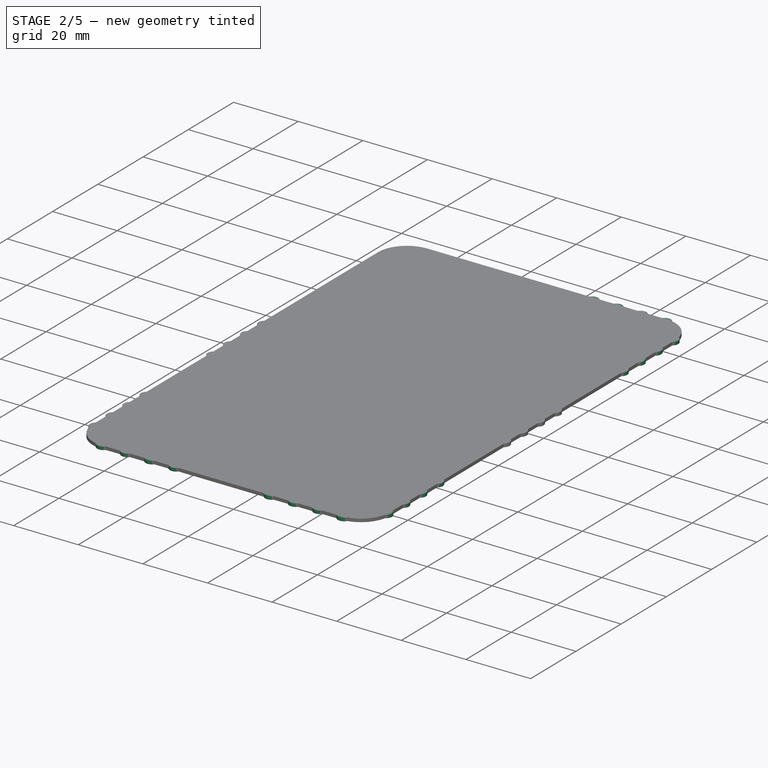
[diagram: stage 2 of 5 — iso view after this stage's code; geometry added in this stage tinted green]
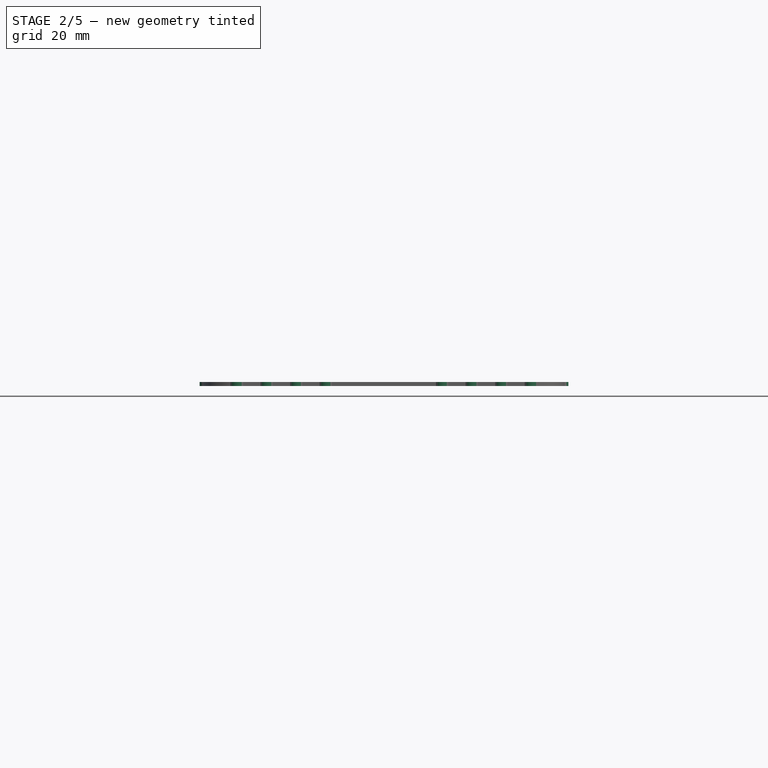
[diagram: stage 2 of 5 — front view after this stage's code; geometry added in this stage tinted green]
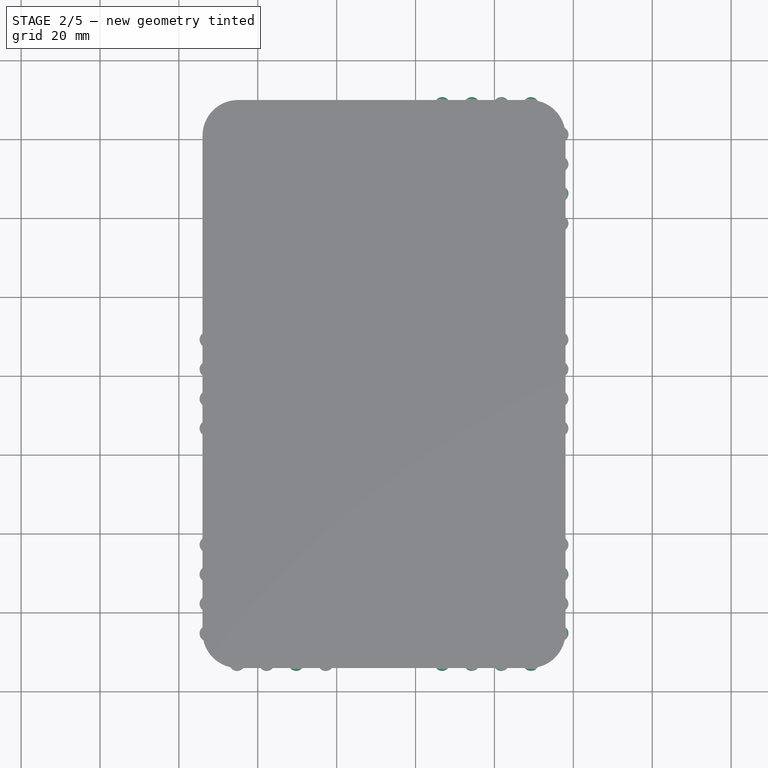
[diagram: stage 2 of 5 — top view after this stage's code; geometry added in this stage tinted green]
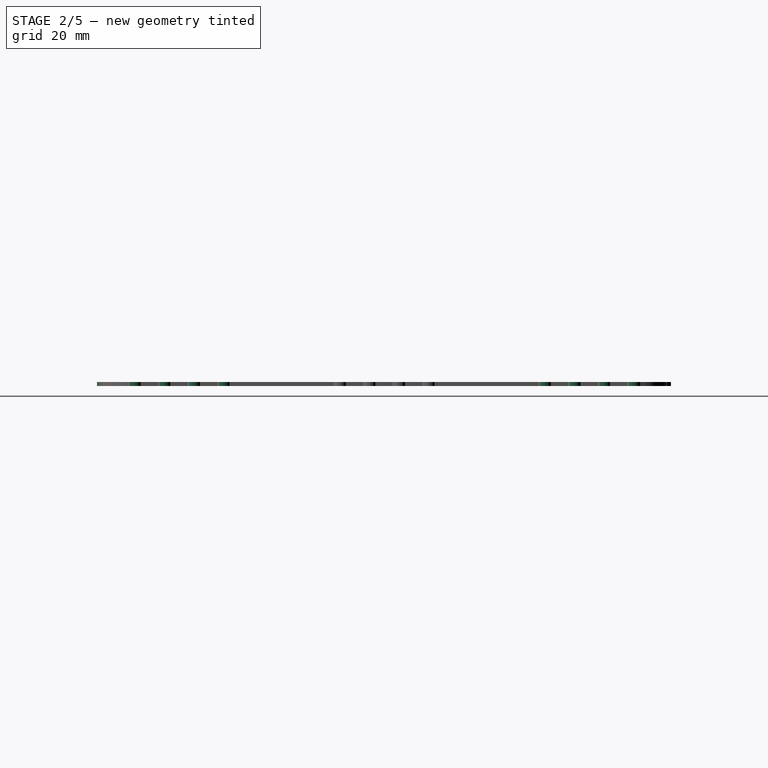
[diagram: stage 2 of 5 — right view after this stage's code; geometry added in this stage tinted green]
FEATURE [Sketcher::SketchObject] Sketch015
  FullyConstrained = true
  sketch-geometry (95):
    g0: LineSegment StartX=0 StartY=0 StartZ=0 EndX=52 EndY=0 EndZ=0
    g1: LineSegment StartX=52 StartY=0 StartZ=0 EndX=52 EndY=52 EndZ=0
    g2: LineSegment StartX=52 StartY=52 StartZ=0 EndX=0 EndY=52 EndZ=0
    g3: LineSegment StartX=0 StartY=52 StartZ=0 EndX=0 EndY=0 EndZ=0
    g4: LineSegment StartX=4 StartY=48 StartZ=0 EndX=48 EndY=48 EndZ=0
    g5: LineSegment StartX=48 StartY=48 StartZ=0 EndX=48 EndY=4 EndZ=0
    g6: LineSegment StartX=48 StartY=4 StartZ=0 EndX=4 EndY=4 EndZ=0
    g7: LineSegment StartX=4 StartY=4 StartZ=0 EndX=4 EndY=48 EndZ=0
    g8: LineSegment StartX=7.25 StartY=48 StartZ=0 EndX=7.25 EndY=4 EndZ=0
    g9: LineSegment StartX=14.75 StartY=4 StartZ=0 EndX=14.75 EndY=48 EndZ=0
    g10: LineSegment StartX=22.25 StartY=48 StartZ=0 EndX=22.25 EndY=4 EndZ=0
    g11: LineSegment StartX=29.75 StartY=4 StartZ=0 EndX=29.75 EndY=48 EndZ=0
    g12: LineSegment StartX=37.25 StartY=48 StartZ=0 EndX=37.25 EndY=4 EndZ=0
    g13: LineSegment StartX=44.75 StartY=48 StartZ=0 EndX=44.75 EndY=4 EndZ=0
    g14: LineSegment StartX=4 StartY=44.75 StartZ=0 EndX=48 EndY=44.75 EndZ=0
    g15: LineSegment StartX=48 StartY=37.25 StartZ=0 EndX=4 EndY=37.25 EndZ=0
    g16: LineSegment StartX=4 StartY=29.75 StartZ=0 EndX=48 EndY=29.75 EndZ=0
    g17: LineSegment StartX=48 StartY=22.25 StartZ=0 EndX=4 EndY=22.25 EndZ=0
    g18: LineSegment StartX=4 StartY=7.25 StartZ=0 EndX=48 EndY=7.25 EndZ=0
    g19: LineSegment StartX=48 StartY=14.75 StartZ=0 EndX=4 EndY=14.75 EndZ=0
    g20: LineSegment StartX=4 StartY=4 StartZ=0 EndX=48 EndY=48 EndZ=0
    g21: LineSegment StartX=48 StartY=4 StartZ=0 EndX=4 EndY=48 EndZ=0
    g22: LineSegment StartX=14.75 StartY=44.75 StartZ=0 EndX=44.75 EndY=14.75 EndZ=0
    g23: LineSegment StartX=44.75 StartY=22.25 StartZ=0 EndX=22.25 EndY=44.75 EndZ=0
    g24: LineSegment StartX=44.75 StartY=29.75 StartZ=0 EndX=29.75 EndY=44.75 EndZ=0
    g25: LineSegment StartX=44.75 StartY=37.25 StartZ=0 EndX=37.25 EndY=44.75 EndZ=0
    g26: LineSegment StartX=14.75 StartY=7.25 StartZ=0 EndX=7.25 EndY=14.75 EndZ=0
    g27: LineSegment StartX=7.25 StartY=22.25 StartZ=0 EndX=22.25 EndY=7.25 EndZ=0
    g28: LineSegment StartX=29.75 StartY=7.25 StartZ=0 EndX=7.25 EndY=29.75 EndZ=0
    g29: LineSegment StartX=7.25 StartY=37.25 StartZ=0 EndX=37.25 EndY=7.25 EndZ=0
    g30: LineSegment StartX=7.25 StartY=37.25 StartZ=0 EndX=14.75 EndY=44.75 EndZ=0
    g31: LineSegment StartX=7.25 StartY=29.75 StartZ=0 EndX=22.25 EndY=44.75 EndZ=0
    g32: LineSegment StartX=7.25 StartY=22.25 StartZ=0 EndX=29.75 EndY=44.75 EndZ=0
    g33: LineSegment StartX=7.25 StartY=14.75 StartZ=0 EndX=37.25 EndY=44.75 EndZ=0
    g34: LineSegment StartX=14.75 StartY=7.25 StartZ=0 EndX=44.75 EndY=37.25 EndZ=0
    g35: LineSegment StartX=29.75 StartY=7.25 StartZ=0 EndX=44.75 EndY=22.25 EndZ=0
    g36: LineSegment StartX=37.25 StartY=7.25 StartZ=0 EndX=44.75 EndY=14.75 EndZ=0
    g37: Circle CenterX=11 CenterY=11 CenterZ=0 NormalX=0 NormalY=0 NormalZ=1 AngleXU=0 Radius=2
    g38: Circle CenterX=14.75 CenterY=7.25 CenterZ=0 NormalX=0 NormalY=0 NormalZ=1 AngleXU=0 Radius=2
    g39: Circle CenterX=22.25 CenterY=7.25 CenterZ=0 NormalX=0 NormalY=0 NormalZ=1 AngleXU=0 Radius=2
    g40: Circle CenterX=29.75 CenterY=7.25 CenterZ=0 NormalX=0 NormalY=0 NormalZ=1 AngleXU=0 Radius=2
    g41: Circle CenterX=37.25 CenterY=7.25 CenterZ=0 NormalX=0 NormalY=0 NormalZ=1 AngleXU=0 Radius=2
    g42: Circle CenterX=44.75 CenterY=14.75 CenterZ=0 NormalX=0 NormalY=0 NormalZ=1 AngleXU=0 Radius=2
    g43: Circle CenterX=44.75 CenterY=22.25 CenterZ=0 NormalX=0 NormalY=0 NormalZ=1 AngleXU=0 Radius=2
    g44: Circle CenterX=44.75 CenterY=29.75 CenterZ=0 NormalX=0 NormalY=0 NormalZ=1 AngleXU=0 Radius=2
    g45: Circle CenterX=44.75 CenterY=37.25 CenterZ=0 NormalX=0 NormalY=0 NormalZ=1 AngleXU=0 Radius=2
    g46: Circle CenterX=37.25 CenterY=44.75 CenterZ=0 NormalX=0 NormalY=0 NormalZ=1 AngleXU=0 Radius=2
    g47: Circle CenterX=29.75 CenterY=44.75 CenterZ=0 NormalX=0 NormalY=0 NormalZ=1 AngleXU=0 Radius=2
    g48: Circle CenterX=22.25 CenterY=44.75 CenterZ=0 NormalX=0 NormalY=0 NormalZ=1 AngleXU=0 Radius=2
    g49: Circle CenterX=14.75 CenterY=44.75 CenterZ=0 NormalX=0 NormalY=0 NormalZ=1 AngleXU=0 Radius=2
    g50: Circle CenterX=7.25 CenterY=37.25 CenterZ=0 NormalX=0 NormalY=0 NormalZ=1 AngleXU=0 Radius=2
    g51: Circle CenterX=7.25 CenterY=29.75 CenterZ=0 NormalX=0 NormalY=0 NormalZ=1 AngleXU=0 Radius=2
    g52: Circle CenterX=7.25 CenterY=22.25 CenterZ=0 NormalX=0 NormalY=0 NormalZ=1 AngleXU=0 Radius=2
    g53: Circle CenterX=7.25 CenterY=14.75 CenterZ=0 NormalX=0 NormalY=0 NormalZ=1 AngleXU=0 Radius=2
    g54: Circle CenterX=11 CenterY=18.5 CenterZ=0 NormalX=0 NormalY=0 NormalZ=1 AngleXU=0 Radius=2
    g55: Circle CenterX=11 CenterY=26 CenterZ=0 NormalX=0 NormalY=0 NormalZ=1 AngleXU=0 Radius=2
    g56: Circle CenterX=11 CenterY=33.5 CenterZ=0 NormalX=0 NormalY=0 NormalZ=1 AngleXU=0 Radius=2
    g57: Circle CenterX=11 CenterY=41 CenterZ=0 NormalX=0 NormalY=0 NormalZ=1 AngleXU=0 Radius=2
    g58: Circle CenterX=18.5 CenterY=41 CenterZ=0 NormalX=0 NormalY=0 NormalZ=1 AngleXU=0 Radius=2
    g59: Circle CenterX=14.75 CenterY=37.25 CenterZ=0 NormalX=0 NormalY=0 NormalZ=1 AngleXU=0 Radius=2
    g60: Circle CenterX=26 CenterY=41 CenterZ=0 NormalX=0 NormalY=0 NormalZ=1 AngleXU=0 Radius=2
    g61: Circle CenterX=22.25 CenterY=37.25 CenterZ=0 NormalX=0 NormalY=0 NormalZ=1 AngleXU=0 Radius=2
    g62: Circle CenterX=18.5 CenterY=33.5 CenterZ=0 NormalX=0 NormalY=0 NormalZ=1 AngleXU=0 Radius=2
    g63: Circle CenterX=14.75 CenterY=29.75 CenterZ=0 NormalX=0 NormalY=0 NormalZ=1 AngleXU=0 Radius=2
    g64: Circle CenterX=14.75 CenterY=22.25 CenterZ=0 NormalX=0 NormalY=0 NormalZ=1 AngleXU=0 Radius=2
    g65: Circle CenterX=14.75 CenterY=14.75 CenterZ=0 NormalX=0 NormalY=0 NormalZ=1 AngleXU=0 Radius=2
    g66: Circle CenterX=18.5 CenterY=11 CenterZ=0 NormalX=0 NormalY=0 NormalZ=1 AngleXU=0 Radius=2
    g67: Circle CenterX=18.5 CenterY=18.5 CenterZ=0 NormalX=0 NormalY=0 NormalZ=1 AngleXU=0 Radius=2
    g68: Circle CenterX=18.5 CenterY=26 CenterZ=0 NormalX=0 NormalY=0 NormalZ=1 AngleXU=0 Radius=2
    g69: Circle CenterX=22.25 CenterY=14.75 CenterZ=0 NormalX=0 NormalY=0 NormalZ=1 AngleXU=0 Radius=2
    g70: Circle CenterX=22.25 CenterY=22.25 CenterZ=0 NormalX=0 NormalY=0 NormalZ=1 AngleXU=0 Radius=2
    g71: Circle CenterX=22.25 CenterY=29.75 CenterZ=0 NormalX=0 NormalY=0 NormalZ=1 AngleXU=0 Radius=2
    g72: Circle CenterX=26 CenterY=18.5 CenterZ=0 NormalX=0 NormalY=0 NormalZ=1 AngleXU=0 Radius=2
    g73: Circle CenterX=26 CenterY=26 CenterZ=0 NormalX=0 NormalY=0 NormalZ=1 AngleXU=0 Radius=2
    g74: Circle CenterX=26 CenterY=33.5 CenterZ=0 NormalX=0 NormalY=0 NormalZ=1 AngleXU=0 Radius=2
    g75: Circle CenterX=29.75 CenterY=37.25 CenterZ=0 NormalX=0 NormalY=0 NormalZ=1 AngleXU=0 Radius=2
    g76: Circle CenterX=29.75 CenterY=29.75 CenterZ=0 NormalX=0 NormalY=0 NormalZ=1 AngleXU=0 Radius=2
    g77: Circle CenterX=29.75 CenterY=22.25 CenterZ=0 NormalX=0 NormalY=0 NormalZ=1 AngleXU=0 Radius=2
    g78: Circle CenterX=29.75 CenterY=14.75 CenterZ=0 NormalX=0 NormalY=0 NormalZ=1 AngleXU=0 Radius=2
    g79: Circle CenterX=26 CenterY=11 CenterZ=0 NormalX=0 NormalY=0 NormalZ=1 AngleXU=0 Radius=2
    g80: Circle CenterX=33.5 CenterY=11 CenterZ=0 NormalX=0 NormalY=0 NormalZ=1 AngleXU=0 Radius=2
    g81: Circle CenterX=37.25 CenterY=14.75 CenterZ=0 NormalX=0 NormalY=0 NormalZ=1 AngleXU=0 Radius=2
    g82: Circle CenterX=33.5 CenterY=18.5 CenterZ=0 NormalX=0 NormalY=0 NormalZ=1 AngleXU=0 Radius=2
    g83: Circle CenterX=37.25 CenterY=22.25 CenterZ=0 NormalX=0 NormalY=0 NormalZ=1 AngleXU=0 Radius=2
    g84: Circle CenterX=33.5 CenterY=26 CenterZ=0 NormalX=0 NormalY=0 NormalZ=1 AngleXU=0 Radius=2
    g85: Circle CenterX=33.5 CenterY=33.5 CenterZ=0 NormalX=0 NormalY=0 NormalZ=1 AngleXU=0 Radius=2
    g86: Circle CenterX=33.5 CenterY=41 CenterZ=0 NormalX=0 NormalY=0 NormalZ=1 AngleXU=0 Radius=2
    g87: Circle CenterX=37.25 CenterY=37.25 CenterZ=0 NormalX=0 NormalY=0 NormalZ=1 AngleXU=0 Radius=2
    g88: Circle CenterX=37.25 CenterY=29.75 CenterZ=0 NormalX=0 NormalY=0 NormalZ=1 AngleXU=0 Radius=2
    g89: Circle CenterX=41 CenterY=11 CenterZ=0 NormalX=0 NormalY=0 NormalZ=1 AngleXU=0 Radius=2
    g90: Circle CenterX=41 CenterY=18.5 CenterZ=0 NormalX=0 NormalY=0 NormalZ=1 AngleXU=0 Radius=2
    g91: Circle CenterX=41 CenterY=26 CenterZ=0 NormalX=0 NormalY=0 NormalZ=1 AngleXU=0 Radius=2
    g92: Circle CenterX=41 CenterY=33.5 CenterZ=0 NormalX=0 NormalY=0 NormalZ=1 AngleXU=0 Radius=2
    g93: Circle CenterX=41 CenterY=41 CenterZ=0 NormalX=0 NormalY=0 NormalZ=1 AngleXU=0 Radius=2
    g94: LineSegment StartX=22.25 StartY=7.25 StartZ=0 EndX=44.75 EndY=29.75 EndZ=0
  constraints (278):
    c: Coincident(g0,g1)
    c: Coincident(g1,g2)
    c: Coincident(g2,g3)
    c: Coincident(g3,g0)
    c: Horizontal(g0)
    c: Horizontal(g2)
    c: Vertical(g1)
    c: Vertical(g3)
    c: Coincident(g0,g-1)
    c: DistanceX(g2,g2) = 52
    c: DistanceY(g1,g1) = 52
    c: Coincident(g4,g5)
    c: Coincident(g5,g6)
    c: Coincident(g6,g7)
    c: Coincident(g7,g4)
    c: Horizontal(g4)
    c: Horizontal(g6)
    c: Vertical(g5)
    c: Vertical(g7)
    c: DistanceX(g0,g6) = 4
    c: DistanceY(g0,g6) = 4
    c: DistanceX(g4,g1) = 4
    c: DistanceY(g4,g1) = 4
    c: PointOnObject(g8,g4)
    c: PointOnObject(g8,g6)
    c: Vertical(g8)
    c: PointOnObject(g9,g6)
    c: PointOnObject(g9,g4)
    c: Vertical(g9)
    c: DistanceX(g4,g8) = 3.25
    c: DistanceX(g8,g9) = 7.5
    c: PointOnObject(g10,g4)
    c: PointOnObject(g10,g6)
    c: Vertical(g10)
    c: PointOnObject(g11,g6)
    c: PointOnObject(g11,g4)
    c: Vertical(g11)
    c: PointOnObject(g12,g4)
    c: PointOnObject(g12,g6)
    c: Vertical(g12)
    c: DistanceX(g9,g10) = 7.5
    c: DistanceX(g10,g11) = 7.5
    c: DistanceX(g11,g12) = 7.5
    c: PointOnObject(g13,g4)
    c: PointOnObject(g13,g6)
    c: Vertical(g13)
    c: DistanceX(g12,g13) = 7.5
    c: PointOnObject(g14,g7)
    c: PointOnObject(g14,g5)
    c: Horizontal(g14)
    c: PointOnObject(g15,g5)
    c: PointOnObject(g15,g7)
    c: Horizontal(g15)
    c: PointOnObject(g16,g7)
    c: PointOnObject(g16,g5)
    c: Horizontal(g16)
    c: PointOnObject(g17,g5)
    c: PointOnObject(g17,g7)
    c: Horizontal(g17)
    c: PointOnObject(g18,g7)
    c: PointOnObject(g18,g5)
    c: Horizontal(g18)
    c: PointOnObject(g19,g5)
    c: PointOnObject(g19,g7)
    c: Horizontal(g19)
    c: DistanceY(g14,g4) = 3.25
    c: DistanceY(g15,g14) = 7.5
    c: DistanceY(g16,g15) = 7.5
    c: DistanceY(g17,g16) = 7.5
    c: DistanceY(g19,g17) = 7.5
    c: DistanceY(g18,g19) = 7.5
    c: Coincident(g20,g6)
    c: Coincident(g20,g4)
    c: Coincident(g21,g5)
    c: Coincident(g21,g4)
    c: PointOnObject(g22,g14)
    c: PointOnObject(g22,g19)
    c: PointOnObject(g23,g13)
    c: PointOnObject(g23,g14)
    c: PointOnObject(g24,g16)
    c: PointOnObject(g24,g11)
    c: PointOnObject(g25,g15)
    c: PointOnObject(g25,g12)
    c: PointOnObject(g26,g9)
    c: PointOnObject(g26,g8)
    c: PointOnObject(g27,g17)
    c: PointOnObject(g27,g18)
    c: PointOnObject(g28,g18)
    c: PointOnObject(g28,g16)
    c: PointOnObject(g29,g15)
    c: PointOnObject(g29,g12)
    c: PointOnObject(g22,g9)
    c: PointOnObject(g23,g10)
    c: PointOnObject(g24,g14)
    c: PointOnObject(g25,g14)
    c: PointOnObject(g29,g8)
    c: PointOnObject(g28,g8)
    c: PointOnObject(g27,g8)
    c: PointOnObject(g26,g19)
    c: PointOnObject(g26,g18)
    c: PointOnObject(g27,g10)
    c: PointOnObject(g28,g11)
    c: PointOnObject(g29,g18)
    c: PointOnObject(g22,g13)
    c: PointOnObject(g23,g17)
    c: PointOnObject(g24,g13)
    c: PointOnObject(g25,g13)
    c: Coincident(g30,g29)
    c: Coincident(g30,g22)
    c: Coincident(g31,g28)
    c: Coincident(g31,g23)
    c: Coincident(g32,g27)
    c: Coincident(g32,g24)
    c: Coincident(g33,g26)
    c: Coincident(g33,g25)
    c: Coincident(g34,g26)
    c: Coincident(g34,g25)
    c: Coincident(g35,g28)
    c: Coincident(g35,g23)
    c: Coincident(g36,g29)
    c: Coincident(g36,g22)
    c: PointOnObject(g37,g26)
    c: Coincident(g38,g26)
    c: Coincident(g39,g27)
    c: Coincident(g40,g28)
    c: Coincident(g41,g29)
    c: Coincident(g42,g22)
    c: Coincident(g43,g23)
    c: Coincident(g44,g24)
    c: Coincident(g45,g25)
    c: Coincident(g46,g25)
    c: Coincident(g47,g24)
    c: Coincident(g48,g23)
    c: Coincident(g49,g22)
    c: Coincident(g50,g29)
    c: Coincident(g51,g28)
    c: Coincident(g52,g27)
    c: Coincident(g53,g26)
    c: PointOnObject(g54,g27)
    c: PointOnObject(g55,g32)
    c: PointOnObject(g56,g31)
    c: PointOnObject(g57,g30)
    c: PointOnObject(g58,g31)
    c: PointOnObject(g59,g21)
    c: PointOnObject(g60,g32)
    c: PointOnObject(g61,g32)
    c: PointOnObject(g62,g32)
    c: PointOnObject(g63,g32)
    c: PointOnObject(g64,g9)
    c: PointOnObject(g65,g19)
    c: PointOnObject(g66,g34)
    c: PointOnObject(g67,g20)
    c: PointOnObject(g68,g33)
    c: PointOnObject(g69,g34)
    c: PointOnObject(g70,g20)
    c: PointOnObject(g71,g33)
    c: PointOnObject(g72,g34)
    c: PointOnObject(g73,g20)
    c: PointOnObject(g74,g33)
    c: PointOnObject(g75,g33)
    c: PointOnObject(g76,g20)
    c: PointOnObject(g77,g34)
    c: PointOnObject(g78,g19)
    c: PointOnObject(g79,g28)
    c: PointOnObject(g80,g29)
    c: PointOnObject(g81,g21)
    c: PointOnObject(g82,g21)
    c: PointOnObject(g83,g17)
    c: PointOnObject(g84,g22)
    c: PointOnObject(g85,g20)
    c: PointOnObject(g86,g33)
    c: PointOnObject(g87,g20)
    c: PointOnObject(g88,g34)
    c: PointOnObject(g89,g36)
    c: PointOnObject(g90,g35)
    c: PointOnObject(g91,g23)
    c: PointOnObject(g92,g24)
    c: PointOnObject(g93,g20)
    c: Coincident(g94,g39)
    c: Coincident(g94,g44)
    c: Diameter(g38) = 4
    c: Diameter(g39) = 4
    c: Diameter(g40) = 4
    c: Diameter(g41) = 4
    c: Diameter(g37) = 4
    c: Diameter(g66) = 4
    c: Diameter(g79) = 4
    c: Diameter(g80) = 4
    c: Diameter(g89) = 4
    c: Diameter(g42) = 4
    c: Diameter(g81) = 4
    c: Diameter(g78) = 4
    c: Diameter(g69) = 4
    c: Diameter(g65) = 4
    c: Diameter(g53) = 4
    c: PointOnObject(g89,g21)
    c: PointOnObject(g80,g35)
    c: PointOnObject(g79,g94)
    c: PointOnObject(g66,g27)
    c: PointOnObject(g37,g20)
    c: PointOnObject(g54,g33)
    c: PointOnObject(g67,g28)
    c: PointOnObject(g69,g28)
    c: PointOnObject(g72,g29)
    c: PointOnObject(g65,g20)
    c: PointOnObject(g78,g11)
    c: PointOnObject(g81,g35)
    c: PointOnObject(g90,g22)
    c: PointOnObject(g82,g94)
    c: PointOnObject(g64,g17)
    c: PointOnObject(g70,g29)
    c: PointOnObject(g77,g21)
    c: PointOnObject(g83,g12)
    c: PointOnObject(g91,g94)
    c: PointOnObject(g84,g34)
    c: PointOnObject(g73,g21)
    c: PointOnObject(g68,g29)
    c: PointOnObject(g55,g28)
    c: PointOnObject(g63,g29)
    c: PointOnObject(g71,g21)
    c: PointOnObject(g76,g22)
    c: PointOnObject(g88,g23)
    c: Diameter(g54) = 4
    c: Diameter(g67) = 4
    c: Diameter(g72) = 4
    c: Diameter(g82) = 4
    c: Diameter(g90) = 4
    c: Diameter(g43) = 4
    c: Diameter(g83) = 4
    c: Diameter(g77) = 4
    c: Diameter(g70) = 4
    c: Diameter(g64) = 4
    c: Diameter(g52) = 4
    c: Diameter(g55) = 4
    c: Diameter(g68) = 4
    c: Diameter(g73) = 4
    c: Diameter(g84) = 4
    c: Diameter(g91) = 4
    c: Diameter(g44) = 4
    c: Diameter(g88) = 4
    c: Diameter(g76) = 4
    c: Diameter(g71) = 4
    c: Diameter(g63) = 4
    c: Diameter(g51) = 4
    c: Diameter(g56) = 4
    c: Diameter(g62) = 4
    c: Diameter(g74) = 4
    c: Diameter(g85) = 4
    c: Diameter(g92) = 4
    c: Diameter(g45) = 4
    c: Diameter(g93) = 4
    c: Diameter(g87) = 4
    c: Diameter(g75) = 4
    c: Diameter(g61) = 4
    c: Diameter(g59) = 4
    c: Diameter(g50) = 4
    c: Diameter(g57) = 4
    c: Diameter(g49) = 4
    c: Diameter(g48) = 4
    c: Diameter(g47) = 4
    c: Diameter(g46) = 4
    c: Diameter(g86) = 4
    c: PointOnObject(g56,g29)
    c: PointOnObject(g62,g21)
    c: PointOnObject(g74,g22)
    c: PointOnObject(g85,g23)
    c: PointOnObject(g92,g34)
    c: PointOnObject(g87,g24)
    c: PointOnObject(g75,g23)
    c: PointOnObject(g61,g10)
    c: PointOnObject(g59,g9)
    c: PointOnObject(g57,g21)
    c: Diameter(g58) = 4
    c: Diameter(g60) = 4
    c: PointOnObject(g58,g22)
    c: PointOnObject(g60,g23)
    c: PointOnObject(g86,g24)
    c: PointOnObject(g93,g25)
FEATURE [Part::Face] Face015
  FaceMakerClass = Part::FaceMakerBullseye
  Sources = -> [Sketch015]
FEATURE [Part::Extrusion] Extrude
  Base = -> Face015
  Dir = (0,0,1)
  DirMode = 2
  FaceMakerClass = Part::FaceMakerBullseye
  LengthFwd = 1
  LengthRev = 0
  Placement = pos=(0,0,49) rot=(0,0,1;0rad)
  Solid = false
  Symmetric = false
FEATURE [Sketcher::SketchObject] Sketch016
  FullyConstrained = true
  sketch-geometry (95):
    g0: LineSegment StartX=0 StartY=0 StartZ=0 EndX=52 EndY=0 EndZ=0
    g1: LineSegment StartX=52 StartY=0 StartZ=0 EndX=52 EndY=52 EndZ=0
    g2: LineSegment StartX=52 StartY=52 StartZ=0 EndX=0 EndY=52 EndZ=0
    g3: LineSegment StartX=0 StartY=52 StartZ=0 EndX=0 EndY=0 EndZ=0
    g4: LineSegment StartX=4 StartY=48 StartZ=0 EndX=48 EndY=48 EndZ=0
    g5: LineSegment StartX=48 StartY=48 StartZ=0 EndX=48 EndY=4 EndZ=0
    g6: LineSegment StartX=48 StartY=4 StartZ=0 EndX=4 EndY=4 EndZ=0
    g7: LineSegment StartX=4 StartY=4 StartZ=0 EndX=4 EndY=48 EndZ=0
    g8: LineSegment StartX=7.25 StartY=48 StartZ=0 EndX=7.25 EndY=4 EndZ=0
    g9: LineSegment StartX=14.75 StartY=4 StartZ=0 EndX=14.75 EndY=48 EndZ=0
    g10: LineSegment StartX=22.25 StartY=48 StartZ=0 EndX=22.25 EndY=4 EndZ=0
    g11: LineSegment StartX=29.75 StartY=4 StartZ=0 EndX=29.75 EndY=48 EndZ=0
    g12: LineSegment StartX=37.25 StartY=48 StartZ=0 EndX=37.25 EndY=4 EndZ=0
    g13: LineSegment StartX=44.75 StartY=48 StartZ=0 EndX=44.75 EndY=4 EndZ=0
    g14: LineSegment StartX=4 StartY=44.75 StartZ=0 EndX=48 EndY=44.75 EndZ=0
    g15: LineSegment StartX=48 StartY=37.25 StartZ=0 EndX=4 EndY=37.25 EndZ=0
    g16: LineSegment StartX=4 StartY=29.75 StartZ=0 EndX=48 EndY=29.75 EndZ=0
    g17: LineSegment StartX=48 StartY=22.25 StartZ=0 EndX=4 EndY=22.25 EndZ=0
    g18: LineSegment StartX=4 StartY=7.25 StartZ=0 EndX=48 EndY=7.25 EndZ=0
    g19: LineSegment StartX=48 StartY=14.75 StartZ=0 EndX=4 EndY=14.75 EndZ=0
    g20: LineSegment StartX=4 StartY=4 StartZ=0 EndX=48 EndY=48 EndZ=0
    g21: LineSegment StartX=48 StartY=4 StartZ=0 EndX=4 EndY=48 EndZ=0
    g22: LineSegment StartX=14.75 StartY=44.75 StartZ=0 EndX=44.75 EndY=14.75 EndZ=0
    g23: LineSegment StartX=44.75 StartY=22.25 StartZ=0 EndX=22.25 EndY=44.75 EndZ=0
    g24: LineSegment StartX=44.75 StartY=29.75 StartZ=0 EndX=29.75 EndY=44.75 EndZ=0
    g25: LineSegment StartX=44.75 StartY=37.25 StartZ=0 EndX=37.25 EndY=44.75 EndZ=0
    g26: LineSegment StartX=14.75 StartY=7.25 StartZ=0 EndX=7.25 EndY=14.75 EndZ=0
    g27: LineSegment StartX=7.25 StartY=22.25 StartZ=0 EndX=22.25 EndY=7.25 EndZ=0
    g28: LineSegment StartX=29.75 StartY=7.25 StartZ=0 EndX=7.25 EndY=29.75 EndZ=0
    g29: LineSegment StartX=7.25 StartY=37.25 StartZ=0 EndX=37.25 EndY=7.25 EndZ=0
    g30: LineSegment StartX=7.25 StartY=37.25 StartZ=0 EndX=14.75 EndY=44.75 EndZ=0
    g31: LineSegment StartX=7.25 StartY=29.75 StartZ=0 EndX=22.25 EndY=44.75 EndZ=0
    g32: LineSegment StartX=7.25 StartY=22.25 StartZ=0 EndX=29.75 EndY=44.75 EndZ=0
    g33: LineSegment StartX=7.25 StartY=14.75 StartZ=0 EndX=37.25 EndY=44.75 EndZ=0
    g34: LineSegment StartX=14.75 StartY=7.25 StartZ=0 EndX=44.75 EndY=37.25 EndZ=0
    g35: LineSegment StartX=29.75 StartY=7.25 StartZ=0 EndX=44.75 EndY=22.25 EndZ=0
    g36: LineSegment StartX=37.25 StartY=7.25 StartZ=0 EndX=44.75 EndY=14.75 EndZ=0
    g37: Circle CenterX=11 CenterY=11 CenterZ=0 NormalX=0 NormalY=0 NormalZ=1 AngleXU=0 Radius=2
    g38: Circle CenterX=14.75 CenterY=7.25 CenterZ=0 NormalX=0 NormalY=0 NormalZ=1 AngleXU=0 Radius=2
    g39: Circle CenterX=22.25 CenterY=7.25 CenterZ=0 NormalX=0 NormalY=0 NormalZ=1 AngleXU=0 Radius=2
    g40: Circle CenterX=29.75 CenterY=7.25 CenterZ=0 NormalX=0 NormalY=0 NormalZ=1 AngleXU=0 Radius=2
    g41: Circle CenterX=37.25 CenterY=7.25 CenterZ=0 NormalX=0 NormalY=0 NormalZ=1 AngleXU=0 Radius=2
    g42: Circle CenterX=44.75 CenterY=14.75 CenterZ=0 NormalX=0 NormalY=0 NormalZ=1 AngleXU=0 Radius=2
    g43: Circle CenterX=44.75 CenterY=22.25 CenterZ=0 NormalX=0 NormalY=0 NormalZ=1 AngleXU=0 Radius=2
    g44: Circle CenterX=44.75 CenterY=29.75 CenterZ=0 NormalX=0 NormalY=0 NormalZ=1 AngleXU=0 Radius=2
    g45: Circle CenterX=44.75 CenterY=37.25 CenterZ=0 NormalX=0 NormalY=0 NormalZ=1 AngleXU=0 Radius=2
    g46: Circle CenterX=37.25 CenterY=44.75 CenterZ=0 NormalX=0 NormalY=0 NormalZ=1 AngleXU=0 Radius=2
    g47: Circle CenterX=29.75 CenterY=44.75 CenterZ=0 NormalX=0 NormalY=0 NormalZ=1 AngleXU=0 Radius=2
    g48: Circle CenterX=22.25 CenterY=44.75 CenterZ=0 NormalX=0 NormalY=0 NormalZ=1 AngleXU=0 Radius=2
    g49: Circle CenterX=14.75 CenterY=44.75 CenterZ=0 NormalX=0 NormalY=0 NormalZ=1 AngleXU=0 Radius=2
    g50: Circle CenterX=7.25 CenterY=37.25 CenterZ=0 NormalX=0 NormalY=0 NormalZ=1 AngleXU=0 Radius=2
    g51: Circle CenterX=7.25 CenterY=29.75 CenterZ=0 NormalX=0 NormalY=0 NormalZ=1 AngleXU=0 Radius=2
    g52: Circle CenterX=7.25 CenterY=22.25 CenterZ=0 NormalX=0 NormalY=0 NormalZ=1 AngleXU=0 Radius=2
    g53: Circle CenterX=7.25 CenterY=14.75 CenterZ=0 NormalX=0 NormalY=0 NormalZ=1 AngleXU=0 Radius=2
    g54: Circle CenterX=11 CenterY=18.5 CenterZ=0 NormalX=0 NormalY=0 NormalZ=1 AngleXU=0 Radius=2
    g55: Circle CenterX=11 CenterY=26 CenterZ=0 NormalX=0 NormalY=0 NormalZ=1 AngleXU=0 Radius=2
    g56: Circle CenterX=11 CenterY=33.5 CenterZ=0 NormalX=0 NormalY=0 NormalZ=1 AngleXU=0 Radius=2
    g57: Circle CenterX=11 CenterY=41 CenterZ=0 NormalX=0 NormalY=0 NormalZ=1 AngleXU=0 Radius=2
    g58: Circle CenterX=18.5 CenterY=41 CenterZ=0 NormalX=0 NormalY=0 NormalZ=1 AngleXU=0 Radius=2
    g59: Circle CenterX=14.75 CenterY=37.25 CenterZ=0 NormalX=0 NormalY=0 NormalZ=1 AngleXU=0 Radius=2
    g60: Circle CenterX=26 CenterY=41 CenterZ=0 NormalX=0 NormalY=0 NormalZ=1 AngleXU=0 Radius=2
    g61: Circle CenterX=22.25 CenterY=37.25 CenterZ=0 NormalX=0 NormalY=0 NormalZ=1 AngleXU=0 Radius=2
    g62: Circle CenterX=18.5 CenterY=33.5 CenterZ=0 NormalX=0 NormalY=0 NormalZ=1 AngleXU=0 Radius=2
    g63: Circle CenterX=14.75 CenterY=29.75 CenterZ=0 NormalX=0 NormalY=0 NormalZ=1 AngleXU=0 Radius=2
    g64: Circle CenterX=14.75 CenterY=22.25 CenterZ=0 NormalX=0 NormalY=0 NormalZ=1 AngleXU=0 Radius=2
    g65: Circle CenterX=14.75 CenterY=14.75 CenterZ=0 NormalX=0 NormalY=0 NormalZ=1 AngleXU=0 Radius=2
    g66: Circle CenterX=18.5 CenterY=11 CenterZ=0 NormalX=0 NormalY=0 NormalZ=1 AngleXU=0 Radius=2
    g67: Circle CenterX=18.5 CenterY=18.5 CenterZ=0 NormalX=0 NormalY=0 NormalZ=1 AngleXU=0 Radius=2
    g68: Circle CenterX=18.5 CenterY=26 CenterZ=0 NormalX=0 NormalY=0 NormalZ=1 AngleXU=0 Radius=2
    g69: Circle CenterX=22.25 CenterY=14.75 CenterZ=0 NormalX=0 NormalY=0 NormalZ=1 AngleXU=0 Radius=2
    g70: Circle CenterX=22.25 CenterY=22.25 CenterZ=0 NormalX=0 NormalY=0 NormalZ=1 AngleXU=0 Radius=2
    g71: Circle CenterX=22.25 CenterY=29.75 CenterZ=0 NormalX=0 NormalY=0 NormalZ=1 AngleXU=0 Radius=2
    g72: Circle CenterX=26 CenterY=18.5 CenterZ=0 NormalX=0 NormalY=0 NormalZ=1 AngleXU=0 Radius=2
    g73: Circle CenterX=26 CenterY=26 CenterZ=0 NormalX=0 NormalY=0 NormalZ=1 AngleXU=0 Radius=2
    g74: Circle CenterX=26 CenterY=33.5 CenterZ=0 NormalX=0 NormalY=0 NormalZ=1 AngleXU=0 Radius=2
    g75: Circle CenterX=29.75 CenterY=37.25 CenterZ=0 NormalX=0 NormalY=0 NormalZ=1 AngleXU=0 Radius=2
    g76: Circle CenterX=29.75 CenterY=29.75 CenterZ=0 NormalX=0 NormalY=0 NormalZ=1 AngleXU=0 Radius=2
    g77: Circle CenterX=29.75 CenterY=22.25 CenterZ=0 NormalX=0 NormalY=0 NormalZ=1 AngleXU=0 Radius=2
    g78: Circle CenterX=29.75 CenterY=14.75 CenterZ=0 NormalX=0 NormalY=0 NormalZ=1 AngleXU=0 Radius=2
    g79: Circle CenterX=26 CenterY=11 CenterZ=0 NormalX=0 NormalY=0 NormalZ=1 AngleXU=0 Radius=2
    g80: Circle CenterX=33.5 CenterY=11 CenterZ=0 NormalX=0 NormalY=0 NormalZ=1 AngleXU=0 Radius=2
    g81: Circle CenterX=37.25 CenterY=14.75 CenterZ=0 NormalX=0 NormalY=0 NormalZ=1 AngleXU=0 Radius=2
    g82: Circle CenterX=33.5 CenterY=18.5 CenterZ=0 NormalX=0 NormalY=0 NormalZ=1 AngleXU=0 Radius=2
    g83: Circle CenterX=37.25 CenterY=22.25 CenterZ=0 NormalX=0 NormalY=0 NormalZ=1 AngleXU=0 Radius=2
    g84: Circle CenterX=33.5 CenterY=26 CenterZ=0 NormalX=0 NormalY=0 NormalZ=1 AngleXU=0 Radius=2
    g85: Circle CenterX=33.5 CenterY=33.5 CenterZ=0 NormalX=0 NormalY=0 NormalZ=1 AngleXU=0 Radius=2
    g86: Circle CenterX=33.5 CenterY=41 CenterZ=0 NormalX=0 NormalY=0 NormalZ=1 AngleXU=0 Radius=2
    g87: Circle CenterX=37.25 CenterY=37.25 CenterZ=0 NormalX=0 NormalY=0 NormalZ=1 AngleXU=0 Radius=2
    g88: Circle CenterX=37.25 CenterY=29.75 CenterZ=0 NormalX=0 NormalY=0 NormalZ=1 AngleXU=0 Radius=2
    g89: Circle CenterX=41 CenterY=11 CenterZ=0 NormalX=0 NormalY=0 NormalZ=1 AngleXU=0 Radius=2
    g90: Circle CenterX=41 CenterY=18.5 CenterZ=0 NormalX=0 NormalY=0 NormalZ=1 AngleXU=0 Radius=2
    g91: Circle CenterX=41 CenterY=26 CenterZ=0 NormalX=0 NormalY=0 NormalZ=1 AngleXU=0 Radius=2
    g92: Circle CenterX=41 CenterY=33.5 CenterZ=0 NormalX=0 NormalY=0 NormalZ=1 AngleXU=0 Radius=2
    g93: Circle CenterX=41 CenterY=41 CenterZ=0 NormalX=0 NormalY=0 NormalZ=1 AngleXU=0 Radius=2
    g94: LineSegment StartX=22.25 StartY=7.25 StartZ=0 EndX=44.75 EndY=29.75 EndZ=0
  constraints (278):
    c: Coincident(g0,g1)
    c: Coincident(g1,g2)
    c: Coincident(g2,g3)
    c: Coincident(g3,g0)
    c: Horizontal(g0)
    c: Horizontal(g2)
    c: Vertical(g1)
    c: Vertical(g3)
    c: Coincident(g0,g-1)
    c: DistanceX(g2,g2) = 52
    c: DistanceY(g1,g1) = 52
    c: Coincident(g4,g5)
    c: Coincident(g5,g6)
    c: Coincident(g6,g7)
    c: Coincident(g7,g4)
    c: Horizontal(g4)
    c: Horizontal(g6)
    c: Vertical(g5)
    c: Vertical(g7)
    c: DistanceX(g0,g6) = 4
    c: DistanceY(g0,g6) = 4
    c: DistanceX(g4,g1) = 4
    c: DistanceY(g4,g1) = 4
    c: PointOnObject(g8,g4)
    c: PointOnObject(g8,g6)
    c: Vertical(g8)
    c: PointOnObject(g9,g6)
    c: PointOnObject(g9,g4)
    c: Vertical(g9)
    c: DistanceX(g4,g8) = 3.25
    c: DistanceX(g8,g9) = 7.5
    c: PointOnObject(g10,g4)
    c: PointOnObject(g10,g6)
    c: Vertical(g10)
    c: PointOnObject(g11,g6)
    c: PointOnObject(g11,g4)
    c: Vertical(g11)
    c: PointOnObject(g12,g4)
    c: PointOnObject(g12,g6)
    c: Vertical(g12)
    c: DistanceX(g9,g10) = 7.5
    c: DistanceX(g10,g11) = 7.5
    c: DistanceX(g11,g12) = 7.5
    c: PointOnObject(g13,g4)
    c: PointOnObject(g13,g6)
    c: Vertical(g13)
    c: DistanceX(g12,g13) = 7.5
    c: PointOnObject(g14,g7)
    c: PointOnObject(g14,g5)
    c: Horizontal(g14)
    c: PointOnObject(g15,g5)
    c: PointOnObject(g15,g7)
    c: Horizontal(g15)
    c: PointOnObject(g16,g7)
    c: PointOnObject(g16,g5)
    c: Horizontal(g16)
    c: PointOnObject(g17,g5)
    c: PointOnObject(g17,g7)
    c: Horizontal(g17)
    c: PointOnObject(g18,g7)
    c: PointOnObject(g18,g5)
    c: Horizontal(g18)
    c: PointOnObject(g19,g5)
    c: PointOnObject(g19,g7)
    c: Horizontal(g19)
    c: DistanceY(g14,g4) = 3.25
    c: DistanceY(g15,g14) = 7.5
    c: DistanceY(g16,g15) = 7.5
    c: DistanceY(g17,g16) = 7.5
    c: DistanceY(g19,g17) = 7.5
    c: DistanceY(g18,g19) = 7.5
    c: Coincident(g20,g6)
    c: Coincident(g20,g4)
    c: Coincident(g21,g5)
    c: Coincident(g21,g4)
    c: PointOnObject(g22,g14)
    c: PointOnObject(g22,g19)
    c: PointOnObject(g23,g13)
    c: PointOnObject(g23,g14)
    c: PointOnObject(g24,g16)
    c: PointOnObject(g24,g11)
    c: PointOnObject(g25,g15)
    c: PointOnObject(g25,g12)
    c: PointOnObject(g26,g9)
    c: PointOnObject(g26,g8)
    c: PointOnObject(g27,g17)
    c: PointOnObject(g27,g18)
    c: PointOnObject(g28,g18)
    c: PointOnObject(g28,g16)
    c: PointOnObject(g29,g15)
    c: PointOnObject(g29,g12)
    c: PointOnObject(g22,g9)
    c: PointOnObject(g23,g10)
    c: PointOnObject(g24,g14)
    c: PointOnObject(g25,g14)
    c: PointOnObject(g29,g8)
    c: PointOnObject(g28,g8)
    c: PointOnObject(g27,g8)
    c: PointOnObject(g26,g19)
    c: PointOnObject(g26,g18)
    c: PointOnObject(g27,g10)
    c: PointOnObject(g28,g11)
    c: PointOnObject(g29,g18)
    c: PointOnObject(g22,g13)
    c: PointOnObject(g23,g17)
    c: PointOnObject(g24,g13)
    c: PointOnObject(g25,g13)
    c: Coincident(g30,g29)
    c: Coincident(g30,g22)
    c: Coincident(g31,g28)
    c: Coincident(g31,g23)
    c: Coincident(g32,g27)
    c: Coincident(g32,g24)
    c: Coincident(g33,g26)
    c: Coincident(g33,g25)
    c: Coincident(g34,g26)
    c: Coincident(g34,g25)
    c: Coincident(g35,g28)
    c: Coincident(g35,g23)
    c: Coincident(g36,g29)
    c: Coincident(g36,g22)
    c: PointOnObject(g37,g26)
    c: Coincident(g38,g26)
    c: Coincident(g39,g27)
    c: Coincident(g40,g28)
    c: Coincident(g41,g29)
    c: Coincident(g42,g22)
    c: Coincident(g43,g23)
    c: Coincident(g44,g24)
    c: Coincident(g45,g25)
    c: Coincident(g46,g25)
    c: Coincident(g47,g24)
    c: Coincident(g48,g23)
    c: Coincident(g49,g22)
    c: Coincident(g50,g29)
    c: Coincident(g51,g28)
    c: Coincident(g52,g27)
    c: Coincident(g53,g26)
    c: PointOnObject(g54,g27)
    c: PointOnObject(g55,g32)
    c: PointOnObject(g56,g31)
    c: PointOnObject(g57,g30)
    c: PointOnObject(g58,g31)
    c: PointOnObject(g59,g21)
    c: PointOnObject(g60,g32)
    c: PointOnObject(g61,g32)
    c: PointOnObject(g62,g32)
    c: PointOnObject(g63,g32)
    c: PointOnObject(g64,g9)
    c: PointOnObject(g65,g19)
    c: PointOnObject(g66,g34)
    c: PointOnObject(g67,g20)
    c: PointOnObject(g68,g33)
    c: PointOnObject(g69,g34)
    c: PointOnObject(g70,g20)
    c: PointOnObject(g71,g33)
    c: PointOnObject(g72,g34)
    c: PointOnObject(g73,g20)
    c: PointOnObject(g74,g33)
    c: PointOnObject(g75,g33)
    c: PointOnObject(g76,g20)
    c: PointOnObject(g77,g34)
    c: PointOnObject(g78,g19)
    c: PointOnObject(g79,g28)
    c: PointOnObject(g80,g29)
    c: PointOnObject(g81,g21)
    c: PointOnObject(g82,g21)
    c: PointOnObject(g83,g17)
    c: PointOnObject(g84,g22)
    c: PointOnObject(g85,g20)
    c: PointOnObject(g86,g33)
    c: PointOnObject(g87,g20)
    c: PointOnObject(g88,g34)
    c: PointOnObject(g89,g36)
    c: PointOnObject(g90,g35)
    c: PointOnObject(g91,g23)
    c: PointOnObject(g92,g24)
    c: PointOnObject(g93,g20)
    c: Coincident(g94,g39)
    c: Coincident(g94,g44)
    c: Diameter(g38) = 4
    c: Diameter(g39) = 4
    c: Diameter(g40) = 4
    c: Diameter(g41) = 4
    c: Diameter(g37) = 4
    c: Diameter(g66) = 4
    c: Diameter(g79) = 4
    c: Diameter(g80) = 4
    c: Diameter(g89) = 4
    c: Diameter(g42) = 4
    c: Diameter(g81) = 4
    c: Diameter(g78) = 4
    c: Diameter(g69) = 4
    c: Diameter(g65) = 4
    c: Diameter(g53) = 4
    c: PointOnObject(g89,g21)
    c: PointOnObject(g80,g35)
    c: PointOnObject(g79,g94)
    c: PointOnObject(g66,g27)
    c: PointOnObject(g37,g20)
    c: PointOnObject(g54,g33)
    c: PointOnObject(g67,g28)
    c: PointOnObject(g69,g28)
    c: PointOnObject(g72,g29)
    c: PointOnObject(g65,g20)
    c: PointOnObject(g78,g11)
    c: PointOnObject(g81,g35)
    c: PointOnObject(g90,g22)
    c: PointOnObject(g82,g94)
    c: PointOnObject(g64,g17)
    c: PointOnObject(g70,g29)
    c: PointOnObject(g77,g21)
    c: PointOnObject(g83,g12)
    c: PointOnObject(g91,g94)
    c: PointOnObject(g84,g34)
    c: PointOnObject(g73,g21)
    c: PointOnObject(g68,g29)
    c: PointOnObject(g55,g28)
    c: PointOnObject(g63,g29)
    c: PointOnObject(g71,g21)
    c: PointOnObject(g76,g22)
    c: PointOnObject(g88,g23)
    c: Diameter(g54) = 4
    c: Diameter(g67) = 4
    c: Diameter(g72) = 4
    c: Diameter(g82) = 4
    c: Diameter(g90) = 4
    c: Diameter(g43) = 4
    c: Diameter(g83) = 4
    c: Diameter(g77) = 4
    c: Diameter(g70) = 4
    c: Diameter(g64) = 4
    c: Diameter(g52) = 4
    c: Diameter(g55) = 4
    c: Diameter(g68) = 4
    c: Diameter(g73) = 4
    c: Diameter(g84) = 4
    c: Diameter(g91) = 4
    c: Diameter(g44) = 4
    c: Diameter(g88) = 4
    c: Diameter(g76) = 4
    c: Diameter(g71) = 4
    c: Diameter(g63) = 4
    c: Diameter(g51) = 4
    c: Diameter(g56) = 4
    c: Diameter(g62) = 4
    c: Diameter(g74) = 4
    c: Diameter(g85) = 4
    c: Diameter(g92) = 4
    c: Diameter(g45) = 4
    c: Diameter(g93) = 4
    c: Diameter(g87) = 4
    c: Diameter(g75) = 4
    c: Diameter(g61) = 4
    c: Diameter(g59) = 4
    c: Diameter(g50) = 4
    c: Diameter(g57) = 4
    c: Diameter(g49) = 4
    c: Diameter(g48) = 4
    c: Diameter(g47) = 4
    c: Diameter(g46) = 4
    c: Diameter(g86) = 4
    c: PointOnObject(g56,g29)
    c: PointOnObject(g62,g21)
    c: PointOnObject(g74,g22)
    c: PointOnObject(g85,g23)
    c: PointOnObject(g92,g34)
    c: PointOnObject(g87,g24)
    c: PointOnObject(g75,g23)
    c: PointOnObject(g61,g10)
    c: PointOnObject(g59,g9)
    c: PointOnObject(g57,g21)
    c: Diameter(g58) = 4
    c: Diameter(g60) = 4
    c: PointOnObject(g58,g22)
    c: PointOnObject(g60,g23)
    c: PointOnObject(g86,g24)
    c: PointOnObject(g93,g25)
FEATURE [Part::Face] Face016
  FaceMakerClass = Part::FaceMakerBullseye
  Sources = -> [Sketch016]
FEATURE [Part::Extrusion] Extrude001
  Base = -> Face016
  Dir = (0,0,1)
  DirMode = 2
  FaceMakerClass = Part::FaceMakerBullseye
  LengthFwd = 1
  LengthRev = 0
  Placement = pos=(52,0,49) rot=(0,0,1;0rad)
  Solid = false
  Symmetric = false
FEATURE [Sketcher::SketchObject] Sketch020
  FullyConstrained = true
  sketch-geometry (95):
    g0: LineSegment StartX=0 StartY=0 StartZ=0 EndX=52 EndY=0 EndZ=0
    g1: LineSegment StartX=52 StartY=0 StartZ=0 EndX=52 EndY=52 EndZ=0
    g2: LineSegment StartX=52 StartY=52 StartZ=0 EndX=0 EndY=52 EndZ=0
    g3: LineSegment StartX=0 StartY=52 StartZ=0 EndX=0 EndY=0 EndZ=0
    g4: LineSegment StartX=4 StartY=48 StartZ=0 EndX=48 EndY=48 EndZ=0
    g5: LineSegment StartX=48 StartY=48 StartZ=0 EndX=48 EndY=4 EndZ=0
    g6: LineSegment StartX=48 StartY=4 StartZ=0 EndX=4 EndY=4 EndZ=0
    g7: LineSegment StartX=4 StartY=4 StartZ=0 EndX=4 EndY=48 EndZ=0
    g8: LineSegment StartX=7.25 StartY=48 StartZ=0 EndX=7.25 EndY=4 EndZ=0
    g9: LineSegment StartX=14.75 StartY=4 StartZ=0 EndX=14.75 EndY=48 EndZ=0
    g10: LineSegment StartX=22.25 StartY=48 StartZ=0 EndX=22.25 EndY=4 EndZ=0
    g11: LineSegment StartX=29.75 StartY=4 StartZ=0 EndX=29.75 EndY=48 EndZ=0
    g12: LineSegment StartX=37.25 StartY=48 StartZ=0 EndX=37.25 EndY=4 EndZ=0
    g13: LineSegment StartX=44.75 StartY=48 StartZ=0 EndX=44.75 EndY=4 EndZ=0
    g14: LineSegment StartX=4 StartY=44.75 StartZ=0 EndX=48 EndY=44.75 EndZ=0
    g15: LineSegment StartX=48 StartY=37.25 StartZ=0 EndX=4 EndY=37.25 EndZ=0
    g16: LineSegment StartX=4 StartY=29.75 StartZ=0 EndX=48 EndY=29.75 EndZ=0
    g17: LineSegment StartX=48 StartY=22.25 StartZ=0 EndX=4 EndY=22.25 EndZ=0
    g18: LineSegment StartX=4 StartY=7.25 StartZ=0 EndX=48 EndY=7.25 EndZ=0
    g19: LineSegment StartX=48 StartY=14.75 StartZ=0 EndX=4 EndY=14.75 EndZ=0
    g20: LineSegment StartX=4 StartY=4 StartZ=0 EndX=48 EndY=48 EndZ=0
    g21: LineSegment StartX=48 StartY=4 StartZ=0 EndX=4 EndY=48 EndZ=0
    g22: LineSegment StartX=14.75 StartY=44.75 StartZ=0 EndX=44.75 EndY=14.75 EndZ=0
    g23: LineSegment StartX=44.75 StartY=22.25 StartZ=0 EndX=22.25 EndY=44.75 EndZ=0
    g24: LineSegment StartX=44.75 StartY=29.75 StartZ=0 EndX=29.75 EndY=44.75 EndZ=0
    g25: LineSegment StartX=44.75 StartY=37.25 StartZ=0 EndX=37.25 EndY=44.75 EndZ=0
    g26: LineSegment StartX=14.75 StartY=7.25 StartZ=0 EndX=7.25 EndY=14.75 EndZ=0
    g27: LineSegment StartX=7.25 StartY=22.25 StartZ=0 EndX=22.25 EndY=7.25 EndZ=0
    g28: LineSegment StartX=29.75 StartY=7.25 StartZ=0 EndX=7.25 EndY=29.75 EndZ=0
    g29: LineSegment StartX=7.25 StartY=37.25 StartZ=0 EndX=37.25 EndY=7.25 EndZ=0
    g30: LineSegment StartX=7.25 StartY=37.25 StartZ=0 EndX=14.75 EndY=44.75 EndZ=0
    g31: LineSegment StartX=7.25 StartY=29.75 StartZ=0 EndX=22.25 EndY=44.75 EndZ=0
    g32: LineSegment StartX=7.25 StartY=22.25 StartZ=0 EndX=29.75 EndY=44.75 EndZ=0
    g33: LineSegment StartX=7.25 StartY=14.75 StartZ=0 EndX=37.25 EndY=44.75 EndZ=0
    g34: LineSegment StartX=14.75 StartY=7.25 StartZ=0 EndX=44.75 EndY=37.25 EndZ=0
    g35: LineSegment StartX=29.75 StartY=7.25 StartZ=0 EndX=44.75 EndY=22.25 EndZ=0
    g36: LineSegment StartX=37.25 StartY=7.25 StartZ=0 EndX=44.75 EndY=14.75 EndZ=0
    g37: Circle CenterX=11 CenterY=11 CenterZ=0 NormalX=0 NormalY=0 NormalZ=1 AngleXU=0 Radius=2
    g38: Circle CenterX=14.75 CenterY=7.25 CenterZ=0 NormalX=0 NormalY=0 NormalZ=1 AngleXU=0 Radius=2
    g39: Circle CenterX=22.25 CenterY=7.25 CenterZ=0 NormalX=0 NormalY=0 NormalZ=1 AngleXU=0 Radius=2
    g40: Circle CenterX=29.75 CenterY=7.25 CenterZ=0 NormalX=0 NormalY=0 NormalZ=1 AngleXU=0 Radius=2
    g41: Circle CenterX=37.25 CenterY=7.25 CenterZ=0 NormalX=0 NormalY=0 NormalZ=1 AngleXU=0 Radius=2
    g42: Circle CenterX=44.75 CenterY=14.75 CenterZ=0 NormalX=0 NormalY=0 NormalZ=1 AngleXU=0 Radius=2
    g43: Circle CenterX=44.75 CenterY=22.25 CenterZ=0 NormalX=0 NormalY=0 NormalZ=1 AngleXU=0 Radius=2
    g44: Circle CenterX=44.75 CenterY=29.75 CenterZ=0 NormalX=0 NormalY=0 NormalZ=1 AngleXU=0 Radius=2
    g45: Circle CenterX=44.75 CenterY=37.25 CenterZ=0 NormalX=0 NormalY=0 NormalZ=1 AngleXU=0 Radius=2
    g46: Circle CenterX=37.25 CenterY=44.75 CenterZ=0 NormalX=0 NormalY=0 NormalZ=1 AngleXU=0 Radius=2
    g47: Circle CenterX=29.75 CenterY=44.75 CenterZ=0 NormalX=0 NormalY=0 NormalZ=1 AngleXU=0 Radius=2
    g48: Circle CenterX=22.25 CenterY=44.75 CenterZ=0 NormalX=0 NormalY=0 NormalZ=1 AngleXU=0 Radius=2
    g49: Circle CenterX=14.75 CenterY=44.75 CenterZ=0 NormalX=0 NormalY=0 NormalZ=1 AngleXU=0 Radius=2
    g50: Circle CenterX=7.25 CenterY=37.25 CenterZ=0 NormalX=0 NormalY=0 NormalZ=1 AngleXU=0 Radius=2
    g51: Circle CenterX=7.25 CenterY=29.75 CenterZ=0 NormalX=0 NormalY=0 NormalZ=1 AngleXU=0 Radius=2
    g52: Circle CenterX=7.25 CenterY=22.25 CenterZ=0 NormalX=0 NormalY=0 NormalZ=1 AngleXU=0 Radius=2
    g53: Circle CenterX=7.25 CenterY=14.75 CenterZ=0 NormalX=0 NormalY=0 NormalZ=1 AngleXU=0 Radius=2
    g54: Circle CenterX=11 CenterY=18.5 CenterZ=0 NormalX=0 NormalY=0 NormalZ=1 AngleXU=0 Radius=2
    g55: Circle CenterX=11 CenterY=26 CenterZ=0 NormalX=0 NormalY=0 NormalZ=1 AngleXU=0 Radius=2
    g56: Circle CenterX=11 CenterY=33.5 CenterZ=0 NormalX=0 NormalY=0 NormalZ=1 AngleXU=0 Radius=2
    g57: Circle CenterX=11 CenterY=41 CenterZ=0 NormalX=0 NormalY=0 NormalZ=1 AngleXU=0 Radius=2
    g58: Circle CenterX=18.5 CenterY=41 CenterZ=0 NormalX=0 NormalY=0 NormalZ=1 AngleXU=0 Radius=2
    g59: Circle CenterX=14.75 CenterY=37.25 CenterZ=0 NormalX=0 NormalY=0 NormalZ=1 AngleXU=0 Radius=2
    g60: Circle CenterX=26 CenterY=41 CenterZ=0 NormalX=0 NormalY=0 NormalZ=1 AngleXU=0 Radius=2
    g61: Circle CenterX=22.25 CenterY=37.25 CenterZ=0 NormalX=0 NormalY=0 NormalZ=1 AngleXU=0 Radius=2
    g62: Circle CenterX=18.5 CenterY=33.5 CenterZ=0 NormalX=0 NormalY=0 NormalZ=1 AngleXU=0 Radius=2
    g63: Circle CenterX=14.75 CenterY=29.75 CenterZ=0 NormalX=0 NormalY=0 NormalZ=1 AngleXU=0 Radius=2
    g64: Circle CenterX=14.75 CenterY=22.25 CenterZ=0 NormalX=0 NormalY=0 NormalZ=1 AngleXU=0 Radius=2
    g65: Circle CenterX=14.75 CenterY=14.75 CenterZ=0 NormalX=0 NormalY=0 NormalZ=1 AngleXU=0 Radius=2
    g66: Circle CenterX=18.5 CenterY=11 CenterZ=0 NormalX=0 NormalY=0 NormalZ=1 AngleXU=0 Radius=2
    g67: Circle CenterX=18.5 CenterY=18.5 CenterZ=0 NormalX=0 NormalY=0 NormalZ=1 AngleXU=0 Radius=2
    g68: Circle CenterX=18.5 CenterY=26 CenterZ=0 NormalX=0 NormalY=0 NormalZ=1 AngleXU=0 Radius=2
    g69: Circle CenterX=22.25 CenterY=14.75 CenterZ=0 NormalX=0 NormalY=0 NormalZ=1 AngleXU=0 Radius=2
    g70: Circle CenterX=22.25 CenterY=22.25 CenterZ=0 NormalX=0 NormalY=0 NormalZ=1 AngleXU=0 Radius=2
    g71: Circle CenterX=22.25 CenterY=29.75 CenterZ=0 NormalX=0 NormalY=0 NormalZ=1 AngleXU=0 Radius=2
    g72: Circle CenterX=26 CenterY=18.5 CenterZ=0 NormalX=0 NormalY=0 NormalZ=1 AngleXU=0 Radius=2
    g73: Circle CenterX=26 CenterY=26 CenterZ=0 NormalX=0 NormalY=0 NormalZ=1 AngleXU=0 Radius=2
    g74: Circle CenterX=26 CenterY=33.5 CenterZ=0 NormalX=0 NormalY=0 NormalZ=1 AngleXU=0 Radius=2
    g75: Circle CenterX=29.75 CenterY=37.25 CenterZ=0 NormalX=0 NormalY=0 NormalZ=1 AngleXU=0 Radius=2
    g76: Circle CenterX=29.75 CenterY=29.75 CenterZ=0 NormalX=0 NormalY=0 NormalZ=1 AngleXU=0 Radius=2
    g77: Circle CenterX=29.75 CenterY=22.25 CenterZ=0 NormalX=0 NormalY=0 NormalZ=1 AngleXU=0 Radius=2
    g78: Circle CenterX=29.75 CenterY=14.75 CenterZ=0 NormalX=0 NormalY=0 NormalZ=1 AngleXU=0 Radius=2
    g79: Circle CenterX=26 CenterY=11 CenterZ=0 NormalX=0 NormalY=0 NormalZ=1 AngleXU=0 Radius=2
    g80: Circle CenterX=33.5 CenterY=11 CenterZ=0 NormalX=0 NormalY=0 NormalZ=1 AngleXU=0 Radius=2
    g81: Circle CenterX=37.25 CenterY=14.75 CenterZ=0 NormalX=0 NormalY=0 NormalZ=1 AngleXU=0 Radius=2
    g82: Circle CenterX=33.5 CenterY=18.5 CenterZ=0 NormalX=0 NormalY=0 NormalZ=1 AngleXU=0 Radius=2
    g83: Circle CenterX=37.25 CenterY=22.25 CenterZ=0 NormalX=0 NormalY=0 NormalZ=1 AngleXU=0 Radius=2
    g84: Circle CenterX=33.5 CenterY=26 CenterZ=0 NormalX=0 NormalY=0 NormalZ=1 AngleXU=0 Radius=2
    g85: Circle CenterX=33.5 CenterY=33.5 CenterZ=0 NormalX=0 NormalY=0 NormalZ=1 AngleXU=0 Radius=2
    g86: Circle CenterX=33.5 CenterY=41 CenterZ=0 NormalX=0 NormalY=0 NormalZ=1 AngleXU=0 Radius=2
    g87: Circle CenterX=37.25 CenterY=37.25 CenterZ=0 NormalX=0 NormalY=0 NormalZ=1 AngleXU=0 Radius=2
    g88: Circle CenterX=37.25 CenterY=29.75 CenterZ=0 NormalX=0 NormalY=0 NormalZ=1 AngleXU=0 Radius=2
    g89: Circle CenterX=41 CenterY=11 CenterZ=0 NormalX=0 NormalY=0 NormalZ=1 AngleXU=0 Radius=2
    g90: Circle CenterX=41 CenterY=18.5 CenterZ=0 NormalX=0 NormalY=0 NormalZ=1 AngleXU=0 Radius=2
    g91: Circle CenterX=41 CenterY=26 CenterZ=0 NormalX=0 NormalY=0 NormalZ=1 AngleXU=0 Radius=2
    g92: Circle CenterX=41 CenterY=33.5 CenterZ=0 NormalX=0 NormalY=0 NormalZ=1 AngleXU=0 Radius=2
    g93: Circle CenterX=41 CenterY=41 CenterZ=0 NormalX=0 NormalY=0 NormalZ=1 AngleXU=0 Radius=2
    g94: LineSegment StartX=22.25 StartY=7.25 StartZ=0 EndX=44.75 EndY=29.75 EndZ=0
  constraints (278):
    c: Coincident(g0,g1)
    c: Coincident(g1,g2)
    c: Coincident(g2,g3)
    c: Coincident(g3,g0)
    c: Horizontal(g0)
    c: Horizontal(g2)
    c: Vertical(g1)
    c: Vertical(g3)
    c: Coincident(g0,g-1)
    c: DistanceX(g2,g2) = 52
    c: DistanceY(g1,g1) = 52
    c: Coincident(g4,g5)
    c: Coincident(g5,g6)
    c: Coincident(g6,g7)
    c: Coincident(g7,g4)
    c: Horizontal(g4)
    c: Horizontal(g6)
    c: Vertical(g5)
    c: Vertical(g7)
    c: DistanceX(g0,g6) = 4
    c: DistanceY(g0,g6) = 4
    c: DistanceX(g4,g1) = 4
    c: DistanceY(g4,g1) = 4
    c: PointOnObject(g8,g4)
    c: PointOnObject(g8,g6)
    c: Vertical(g8)
    c: PointOnObject(g9,g6)
    c: PointOnObject(g9,g4)
    c: Vertical(g9)
    c: DistanceX(g4,g8) = 3.25
    c: DistanceX(g8,g9) = 7.5
    c: PointOnObject(g10,g4)
    c: PointOnObject(g10,g6)
    c: Vertical(g10)
    c: PointOnObject(g11,g6)
    c: PointOnObject(g11,g4)
    c: Vertical(g11)
    c: PointOnObject(g12,g4)
    c: PointOnObject(g12,g6)
    c: Vertical(g12)
    c: DistanceX(g9,g10) = 7.5
    c: DistanceX(g10,g11) = 7.5
    c: DistanceX(g11,g12) = 7.5
    c: PointOnObject(g13,g4)
    c: PointOnObject(g13,g6)
    c: Vertical(g13)
    c: DistanceX(g12,g13) = 7.5
    c: PointOnObject(g14,g7)
    c: PointOnObject(g14,g5)
    c: Horizontal(g14)
    c: PointOnObject(g15,g5)
    c: PointOnObject(g15,g7)
    c: Horizontal(g15)
    c: PointOnObject(g16,g7)
    c: PointOnObject(g16,g5)
    c: Horizontal(g16)
    c: PointOnObject(g17,g5)
    c: PointOnObject(g17,g7)
    c: Horizontal(g17)
    c: PointOnObject(g18,g7)
    c: PointOnObject(g18,g5)
    c: Horizontal(g18)
    c: PointOnObject(g19,g5)
    c: PointOnObject(g19,g7)
    c: Horizontal(g19)
    c: DistanceY(g14,g4) = 3.25
    c: DistanceY(g15,g14) = 7.5
    c: DistanceY(g16,g15) = 7.5
    c: DistanceY(g17,g16) = 7.5
    c: DistanceY(g19,g17) = 7.5
    c: DistanceY(g18,g19) = 7.5
    c: Coincident(g20,g6)
    c: Coincident(g20,g4)
    c: Coincident(g21,g5)
    c: Coincident(g21,g4)
    c: PointOnObject(g22,g14)
    c: PointOnObject(g22,g19)
    c: PointOnObject(g23,g13)
    c: PointOnObject(g23,g14)
    c: PointOnObject(g24,g16)
    c: PointOnObject(g24,g11)
    c: PointOnObject(g25,g15)
    c: PointOnObject(g25,g12)
    c: PointOnObject(g26,g9)
    c: PointOnObject(g26,g8)
    c: PointOnObject(g27,g17)
    c: PointOnObject(g27,g18)
    c: PointOnObject(g28,g18)
    c: PointOnObject(g28,g16)
    c: PointOnObject(g29,g15)
    c: PointOnObject(g29,g12)
    c: PointOnObject(g22,g9)
    c: PointOnObject(g23,g10)
    c: PointOnObject(g24,g14)
    c: PointOnObject(g25,g14)
    c: PointOnObject(g29,g8)
    c: PointOnObject(g28,g8)
    c: PointOnObject(g27,g8)
    c: PointOnObject(g26,g19)
    c: PointOnObject(g26,g18)
    c: PointOnObject(g27,g10)
    c: PointOnObject(g28,g11)
    c: PointOnObject(g29,g18)
    c: PointOnObject(g22,g13)
    c: PointOnObject(g23,g17)
    c: PointOnObject(g24,g13)
    c: PointOnObject(g25,g13)
    c: Coincident(g30,g29)
    c: Coincident(g30,g22)
    c: Coincident(g31,g28)
    c: Coincident(g31,g23)
    c: Coincident(g32,g27)
    c: Coincident(g32,g24)
    c: Coincident(g33,g26)
    c: Coincident(g33,g25)
    c: Coincident(g34,g26)
    c: Coincident(g34,g25)
    c: Coincident(g35,g28)
    c: Coincident(g35,g23)
    c: Coincident(g36,g29)
    c: Coincident(g36,g22)
    c: PointOnObject(g37,g26)
    c: Coincident(g38,g26)
    c: Coincident(g39,g27)
    c: Coincident(g40,g28)
    c: Coincident(g41,g29)
    c: Coincident(g42,g22)
    c: Coincident(g43,g23)
    c: Coincident(g44,g24)
    c: Coincident(g45,g25)
    c: Coincident(g46,g25)
    c: Coincident(g47,g24)
    c: Coincident(g48,g23)
    c: Coincident(g49,g22)
    c: Coincident(g50,g29)
    c: Coincident(g51,g28)
    c: Coincident(g52,g27)
    c: Coincident(g53,g26)
    c: PointOnObject(g54,g27)
    c: PointOnObject(g55,g32)
    c: PointOnObject(g56,g31)
    c: PointOnObject(g57,g30)
    c: PointOnObject(g58,g31)
    c: PointOnObject(g59,g21)
    c: PointOnObject(g60,g32)
    c: PointOnObject(g61,g32)
    c: PointOnObject(g62,g32)
    c: PointOnObject(g63,g32)
    c: PointOnObject(g64,g9)
    c: PointOnObject(g65,g19)
    c: PointOnObject(g66,g34)
    c: PointOnObject(g67,g20)
    c: PointOnObject(g68,g33)
    c: PointOnObject(g69,g34)
    c: PointOnObject(g70,g20)
    c: PointOnObject(g71,g33)
    c: PointOnObject(g72,g34)
    c: PointOnObject(g73,g20)
    c: PointOnObject(g74,g33)
    c: PointOnObject(g75,g33)
    c: PointOnObject(g76,g20)
    c: PointOnObject(g77,g34)
    c: PointOnObject(g78,g19)
    c: PointOnObject(g79,g28)
    c: PointOnObject(g80,g29)
    c: PointOnObject(g81,g21)
    c: PointOnObject(g82,g21)
    c: PointOnObject(g83,g17)
    c: PointOnObject(g84,g22)
    c: PointOnObject(g85,g20)
    c: PointOnObject(g86,g33)
    c: PointOnObject(g87,g20)
    c: PointOnObject(g88,g34)
    c: PointOnObject(g89,g36)
    c: PointOnObject(g90,g35)
    c: PointOnObject(g91,g23)
    c: PointOnObject(g92,g24)
    c: PointOnObject(g93,g20)
    c: Coincident(g94,g39)
    c: Coincident(g94,g44)
    c: Diameter(g38) = 4
    c: Diameter(g39) = 4
    c: Diameter(g40) = 4
    c: Diameter(g41) = 4
    c: Diameter(g37) = 4
    c: Diameter(g66) = 4
    c: Diameter(g79) = 4
    c: Diameter(g80) = 4
    c: Diameter(g89) = 4
    c: Diameter(g42) = 4
    c: Diameter(g81) = 4
    c: Diameter(g78) = 4
    c: Diameter(g69) = 4
    c: Diameter(g65) = 4
    c: Diameter(g53) = 4
    c: PointOnObject(g89,g21)
    c: PointOnObject(g80,g35)
    c: PointOnObject(g79,g94)
    c: PointOnObject(g66,g27)
    c: PointOnObject(g37,g20)
    c: PointOnObject(g54,g33)
    c: PointOnObject(g67,g28)
    c: PointOnObject(g69,g28)
    c: PointOnObject(g72,g29)
    c: PointOnObject(g65,g20)
    c: PointOnObject(g78,g11)
    c: PointOnObject(g81,g35)
    c: PointOnObject(g90,g22)
    c: PointOnObject(g82,g94)
    c: PointOnObject(g64,g17)
    c: PointOnObject(g70,g29)
    c: PointOnObject(g77,g21)
    c: PointOnObject(g83,g12)
    c: PointOnObject(g91,g94)
    c: PointOnObject(g84,g34)
    c: PointOnObject(g73,g21)
    c: PointOnObject(g68,g29)
    c: PointOnObject(g55,g28)
    c: PointOnObject(g63,g29)
    c: PointOnObject(g71,g21)
    c: PointOnObject(g76,g22)
    c: PointOnObject(g88,g23)
    c: Diameter(g54) = 4
    c: Diameter(g67) = 4
    c: Diameter(g72) = 4
    c: Diameter(g82) = 4
    c: Diameter(g90) = 4
    c: Diameter(g43) = 4
    c: Diameter(g83) = 4
    c: Diameter(g77) = 4
    c: Diameter(g70) = 4
    c: Diameter(g64) = 4
    c: Diameter(g52) = 4
    c: Diameter(g55) = 4
    c: Diameter(g68) = 4
    c: Diameter(g73) = 4
    c: Diameter(g84) = 4
    c: Diameter(g91) = 4
    c: Diameter(g44) = 4
    c: Diameter(g88) = 4
    c: Diameter(g76) = 4
    c: Diameter(g71) = 4
    c: Diameter(g63) = 4
    c: Diameter(g51) = 4
    c: Diameter(g56) = 4
    c: Diameter(g62) = 4
    c: Diameter(g74) = 4
    c: Diameter(g85) = 4
    c: Diameter(g92) = 4
    c: Diameter(g45) = 4
    c: Diameter(g93) = 4
    c: Diameter(g87) = 4
    c: Diameter(g75) = 4
    c: Diameter(g61) = 4
    c: Diameter(g59) = 4
    c: Diameter(g50) = 4
    c: Diameter(g57) = 4
    c: Diameter(g49) = 4
    c: Diameter(g48) = 4
    c: Diameter(g47) = 4
    c: Diameter(g46) = 4
    c: Diameter(g86) = 4
    c: PointOnObject(g56,g29)
    c: PointOnObject(g62,g21)
    c: PointOnObject(g74,g22)
    c: PointOnObject(g85,g23)
    c: PointOnObject(g92,g34)
    c: PointOnObject(g87,g24)
    c: PointOnObject(g75,g23)
    c: PointOnObject(g61,g10)
    c: PointOnObject(g59,g9)
    c: PointOnObject(g57,g21)
    c: Diameter(g58) = 4
    c: Diameter(g60) = 4
    c: PointOnObject(g58,g22)
    c: PointOnObject(g60,g23)
    c: PointOnObject(g86,g24)
    c: PointOnObject(g93,g25)
FEATURE [Part::Face] Face020
  FaceMakerClass = Part::FaceMakerBullseye
  Sources = -> [Sketch020]
FEATURE [Part::Extrusion] Extrude005
  Base = -> Face020
  Dir = (0,0,1)
  DirMode = 2
  FaceMakerClass = Part::FaceMakerBullseye
  LengthFwd = 1
  LengthRev = 0
  Placement = pos=(52,104,49) rot=(0,0,1;0rad)
  Solid = false
  Symmetric = false
FEATURE [Part::Fuse] Fusion
  Base = -> Extrude
  Tool = -> Extrude001
FEATURE [Part::Fuse] Fusion001
  Base = -> Extrude002
  Tool = -> Extrude003
FEATURE [Part::Fuse] Fusion003
  Base = -> Fusion
  Tool = -> Fusion001
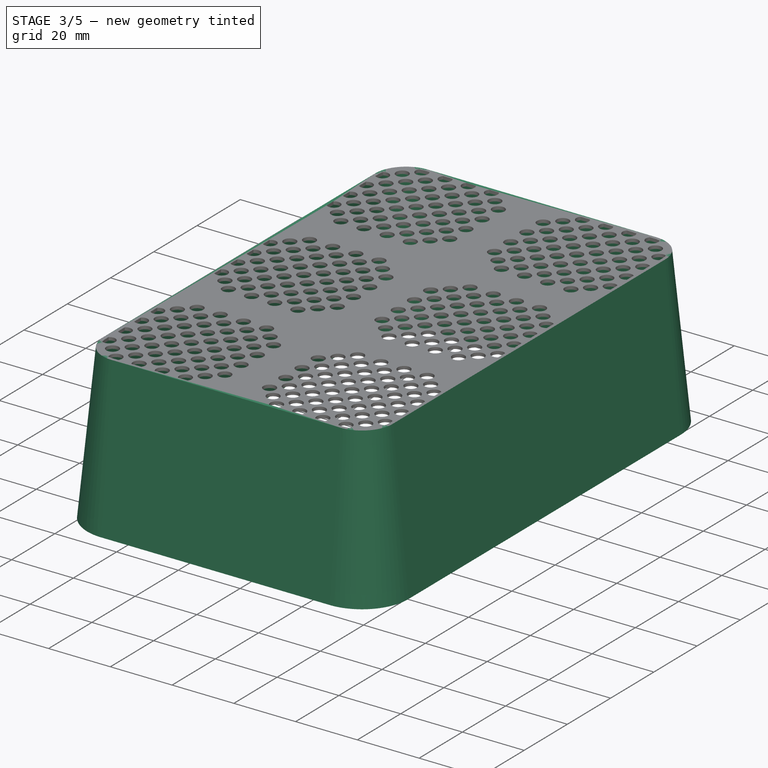
[diagram: stage 3 of 5 — iso view after this stage's code; geometry added in this stage tinted green]
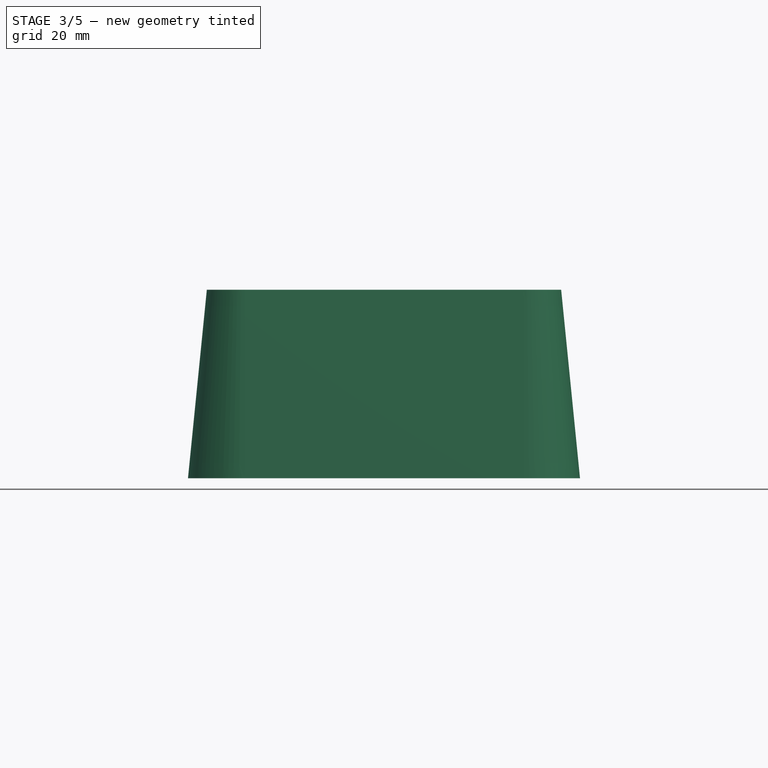
[diagram: stage 3 of 5 — front view after this stage's code; geometry added in this stage tinted green]
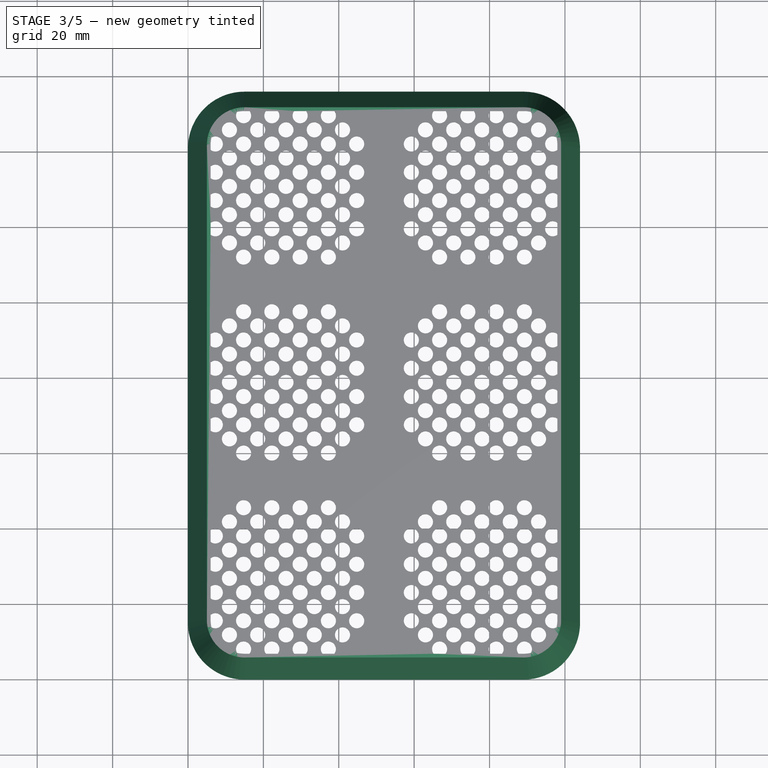
[diagram: stage 3 of 5 — top view after this stage's code; geometry added in this stage tinted green]
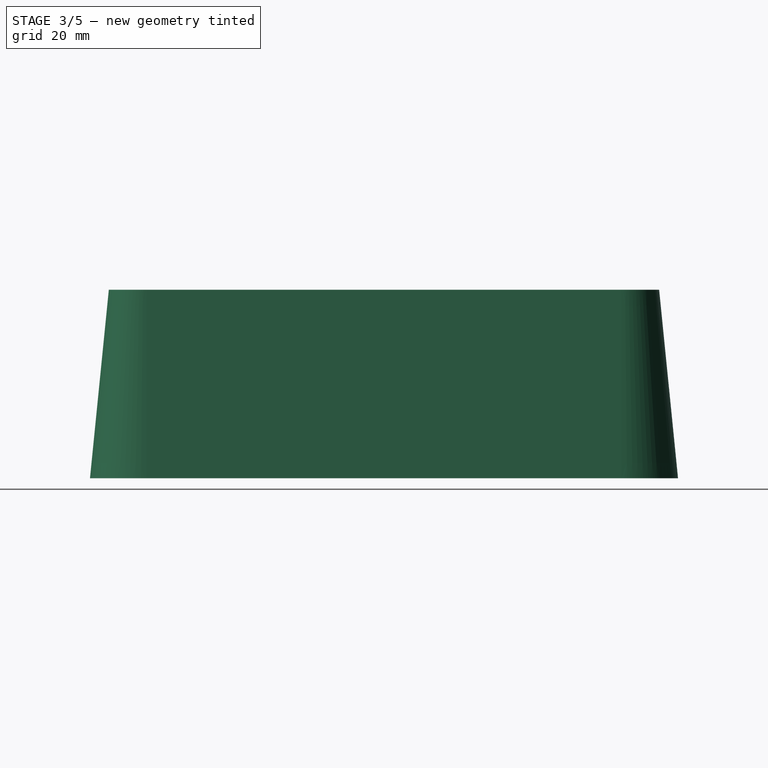
[diagram: stage 3 of 5 — right view after this stage's code; geometry added in this stage tinted green]
FEATURE [Sketcher::SketchObject] Sketch019
  FullyConstrained = true
  sketch-geometry (95):
    g0: LineSegment StartX=0 StartY=0 StartZ=0 EndX=52 EndY=0 EndZ=0
    g1: LineSegment StartX=52 StartY=0 StartZ=0 EndX=52 EndY=52 EndZ=0
    g2: LineSegment StartX=52 StartY=52 StartZ=0 EndX=0 EndY=52 EndZ=0
    g3: LineSegment StartX=0 StartY=52 StartZ=0 EndX=0 EndY=0 EndZ=0
    g4: LineSegment StartX=4 StartY=48 StartZ=0 EndX=48 EndY=48 EndZ=0
    g5: LineSegment StartX=48 StartY=48 StartZ=0 EndX=48 EndY=4 EndZ=0
    g6: LineSegment StartX=48 StartY=4 StartZ=0 EndX=4 EndY=4 EndZ=0
    g7: LineSegment StartX=4 StartY=4 StartZ=0 EndX=4 EndY=48 EndZ=0
    g8: LineSegment StartX=7.25 StartY=48 StartZ=0 EndX=7.25 EndY=4 EndZ=0
    g9: LineSegment StartX=14.75 StartY=4 StartZ=0 EndX=14.75 EndY=48 EndZ=0
    g10: LineSegment StartX=22.25 StartY=48 StartZ=0 EndX=22.25 EndY=4 EndZ=0
    g11: LineSegment StartX=29.75 StartY=4 StartZ=0 EndX=29.75 EndY=48 EndZ=0
    g12: LineSegment StartX=37.25 StartY=48 StartZ=0 EndX=37.25 EndY=4 EndZ=0
    g13: LineSegment StartX=44.75 StartY=48 StartZ=0 EndX=44.75 EndY=4 EndZ=0
    g14: LineSegment StartX=4 StartY=44.75 StartZ=0 EndX=48 EndY=44.75 EndZ=0
    g15: LineSegment StartX=48 StartY=37.25 StartZ=0 EndX=4 EndY=37.25 EndZ=0
    g16: LineSegment StartX=4 StartY=29.75 StartZ=0 EndX=48 EndY=29.75 EndZ=0
    g17: LineSegment StartX=48 StartY=22.25 StartZ=0 EndX=4 EndY=22.25 EndZ=0
    g18: LineSegment StartX=4 StartY=7.25 StartZ=0 EndX=48 EndY=7.25 EndZ=0
    g19: LineSegment StartX=48 StartY=14.75 StartZ=0 EndX=4 EndY=14.75 EndZ=0
    g20: LineSegment StartX=4 StartY=4 StartZ=0 EndX=48 EndY=48 EndZ=0
    g21: LineSegment StartX=48 StartY=4 StartZ=0 EndX=4 EndY=48 EndZ=0
    g22: LineSegment StartX=14.75 StartY=44.75 StartZ=0 EndX=44.75 EndY=14.75 EndZ=0
    g23: LineSegment StartX=44.75 StartY=22.25 StartZ=0 EndX=22.25 EndY=44.75 EndZ=0
    g24: LineSegment StartX=44.75 StartY=29.75 StartZ=0 EndX=29.75 EndY=44.75 EndZ=0
    g25: LineSegment StartX=44.75 StartY=37.25 StartZ=0 EndX=37.25 EndY=44.75 EndZ=0
    g26: LineSegment StartX=14.75 StartY=7.25 StartZ=0 EndX=7.25 EndY=14.75 EndZ=0
    g27: LineSegment StartX=7.25 StartY=22.25 StartZ=0 EndX=22.25 EndY=7.25 EndZ=0
    g28: LineSegment StartX=29.75 StartY=7.25 StartZ=0 EndX=7.25 EndY=29.75 EndZ=0
    g29: LineSegment StartX=7.25 StartY=37.25 StartZ=0 EndX=37.25 EndY=7.25 EndZ=0
    g30: LineSegment StartX=7.25 StartY=37.25 StartZ=0 EndX=14.75 EndY=44.75 EndZ=0
    g31: LineSegment StartX=7.25 StartY=29.75 StartZ=0 EndX=22.25 EndY=44.75 EndZ=0
    g32: LineSegment StartX=7.25 StartY=22.25 StartZ=0 EndX=29.75 EndY=44.75 EndZ=0
    g33: LineSegment StartX=7.25 StartY=14.75 StartZ=0 EndX=37.25 EndY=44.75 EndZ=0
    g34: LineSegment StartX=14.75 StartY=7.25 StartZ=0 EndX=44.75 EndY=37.25 EndZ=0
    g35: LineSegment StartX=29.75 StartY=7.25 StartZ=0 EndX=44.75 EndY=22.25 EndZ=0
    g36: LineSegment StartX=37.25 StartY=7.25 StartZ=0 EndX=44.75 EndY=14.75 EndZ=0
    g37: Circle CenterX=11 CenterY=11 CenterZ=0 NormalX=0 NormalY=0 NormalZ=1 AngleXU=0 Radius=2
    g38: Circle CenterX=14.75 CenterY=7.25 CenterZ=0 NormalX=0 NormalY=0 NormalZ=1 AngleXU=0 Radius=2
    g39: Circle CenterX=22.25 CenterY=7.25 CenterZ=0 NormalX=0 NormalY=0 NormalZ=1 AngleXU=0 Radius=2
    g40: Circle CenterX=29.75 CenterY=7.25 CenterZ=0 NormalX=0 NormalY=0 NormalZ=1 AngleXU=0 Radius=2
    g41: Circle CenterX=37.25 CenterY=7.25 CenterZ=0 NormalX=0 NormalY=0 NormalZ=1 AngleXU=0 Radius=2
    g42: Circle CenterX=44.75 CenterY=14.75 CenterZ=0 NormalX=0 NormalY=0 NormalZ=1 AngleXU=0 Radius=2
    g43: Circle CenterX=44.75 CenterY=22.25 CenterZ=0 NormalX=0 NormalY=0 NormalZ=1 AngleXU=0 Radius=2
    g44: Circle CenterX=44.75 CenterY=29.75 CenterZ=0 NormalX=0 NormalY=0 NormalZ=1 AngleXU=0 Radius=2
    g45: Circle CenterX=44.75 CenterY=37.25 CenterZ=0 NormalX=0 NormalY=0 NormalZ=1 AngleXU=0 Radius=2
    g46: Circle CenterX=37.25 CenterY=44.75 CenterZ=0 NormalX=0 NormalY=0 NormalZ=1 AngleXU=0 Radius=2
    g47: Circle CenterX=29.75 CenterY=44.75 CenterZ=0 NormalX=0 NormalY=0 NormalZ=1 AngleXU=0 Radius=2
    g48: Circle CenterX=22.25 CenterY=44.75 CenterZ=0 NormalX=0 NormalY=0 NormalZ=1 AngleXU=0 Radius=2
    g49: Circle CenterX=14.75 CenterY=44.75 CenterZ=0 NormalX=0 NormalY=0 NormalZ=1 AngleXU=0 Radius=2
    g50: Circle CenterX=7.25 CenterY=37.25 CenterZ=0 NormalX=0 NormalY=0 NormalZ=1 AngleXU=0 Radius=2
    g51: Circle CenterX=7.25 CenterY=29.75 CenterZ=0 NormalX=0 NormalY=0 NormalZ=1 AngleXU=0 Radius=2
    g52: Circle CenterX=7.25 CenterY=22.25 CenterZ=0 NormalX=0 NormalY=0 NormalZ=1 AngleXU=0 Radius=2
    g53: Circle CenterX=7.25 CenterY=14.75 CenterZ=0 NormalX=0 NormalY=0 NormalZ=1 AngleXU=0 Radius=2
    g54: Circle CenterX=11 CenterY=18.5 CenterZ=0 NormalX=0 NormalY=0 NormalZ=1 AngleXU=0 Radius=2
    g55: Circle CenterX=11 CenterY=26 CenterZ=0 NormalX=0 NormalY=0 NormalZ=1 AngleXU=0 Radius=2
    g56: Circle CenterX=11 CenterY=33.5 CenterZ=0 NormalX=0 NormalY=0 NormalZ=1 AngleXU=0 Radius=2
    g57: Circle CenterX=11 CenterY=41 CenterZ=0 NormalX=0 NormalY=0 NormalZ=1 AngleXU=0 Radius=2
    g58: Circle CenterX=18.5 CenterY=41 CenterZ=0 NormalX=0 NormalY=0 NormalZ=1 AngleXU=0 Radius=2
    g59: Circle CenterX=14.75 CenterY=37.25 CenterZ=0 NormalX=0 NormalY=0 NormalZ=1 AngleXU=0 Radius=2
    g60: Circle CenterX=26 CenterY=41 CenterZ=0 NormalX=0 NormalY=0 NormalZ=1 AngleXU=0 Radius=2
    g61: Circle CenterX=22.25 CenterY=37.25 CenterZ=0 NormalX=0 NormalY=0 NormalZ=1 AngleXU=0 Radius=2
    g62: Circle CenterX=18.5 CenterY=33.5 CenterZ=0 NormalX=0 NormalY=0 NormalZ=1 AngleXU=0 Radius=2
    g63: Circle CenterX=14.75 CenterY=29.75 CenterZ=0 NormalX=0 NormalY=0 NormalZ=1 AngleXU=0 Radius=2
    g64: Circle CenterX=14.75 CenterY=22.25 CenterZ=0 NormalX=0 NormalY=0 NormalZ=1 AngleXU=0 Radius=2
    g65: Circle CenterX=14.75 CenterY=14.75 CenterZ=0 NormalX=0 NormalY=0 NormalZ=1 AngleXU=0 Radius=2
    g66: Circle CenterX=18.5 CenterY=11 CenterZ=0 NormalX=0 NormalY=0 NormalZ=1 AngleXU=0 Radius=2
    g67: Circle CenterX=18.5 CenterY=18.5 CenterZ=0 NormalX=0 NormalY=0 NormalZ=1 AngleXU=0 Radius=2
    g68: Circle CenterX=18.5 CenterY=26 CenterZ=0 NormalX=0 NormalY=0 NormalZ=1 AngleXU=0 Radius=2
    g69: Circle CenterX=22.25 CenterY=14.75 CenterZ=0 NormalX=0 NormalY=0 NormalZ=1 AngleXU=0 Radius=2
    g70: Circle CenterX=22.25 CenterY=22.25 CenterZ=0 NormalX=0 NormalY=0 NormalZ=1 AngleXU=0 Radius=2
    g71: Circle CenterX=22.25 CenterY=29.75 CenterZ=0 NormalX=0 NormalY=0 NormalZ=1 AngleXU=0 Radius=2
    g72: Circle CenterX=26 CenterY=18.5 CenterZ=0 NormalX=0 NormalY=0 NormalZ=1 AngleXU=0 Radius=2
    g73: Circle CenterX=26 CenterY=26 CenterZ=0 NormalX=0 NormalY=0 NormalZ=1 AngleXU=0 Radius=2
    g74: Circle CenterX=26 CenterY=33.5 CenterZ=0 NormalX=0 NormalY=0 NormalZ=1 AngleXU=0 Radius=2
    g75: Circle CenterX=29.75 CenterY=37.25 CenterZ=0 NormalX=0 NormalY=0 NormalZ=1 AngleXU=0 Radius=2
    g76: Circle CenterX=29.75 CenterY=29.75 CenterZ=0 NormalX=0 NormalY=0 NormalZ=1 AngleXU=0 Radius=2
    g77: Circle CenterX=29.75 CenterY=22.25 CenterZ=0 NormalX=0 NormalY=0 NormalZ=1 AngleXU=0 Radius=2
    g78: Circle CenterX=29.75 CenterY=14.75 CenterZ=0 NormalX=0 NormalY=0 NormalZ=1 AngleXU=0 Radius=2
    g79: Circle CenterX=26 CenterY=11 CenterZ=0 NormalX=0 NormalY=0 NormalZ=1 AngleXU=0 Radius=2
    g80: Circle CenterX=33.5 CenterY=11 CenterZ=0 NormalX=0 NormalY=0 NormalZ=1 AngleXU=0 Radius=2
    g81: Circle CenterX=37.25 CenterY=14.75 CenterZ=0 NormalX=0 NormalY=0 NormalZ=1 AngleXU=0 Radius=2
    g82: Circle CenterX=33.5 CenterY=18.5 CenterZ=0 NormalX=0 NormalY=0 NormalZ=1 AngleXU=0 Radius=2
    g83: Circle CenterX=37.25 CenterY=22.25 CenterZ=0 NormalX=0 NormalY=0 NormalZ=1 AngleXU=0 Radius=2
    g84: Circle CenterX=33.5 CenterY=26 CenterZ=0 NormalX=0 NormalY=0 NormalZ=1 AngleXU=0 Radius=2
    g85: Circle CenterX=33.5 CenterY=33.5 CenterZ=0 NormalX=0 NormalY=0 NormalZ=1 AngleXU=0 Radius=2
    g86: Circle CenterX=33.5 CenterY=41 CenterZ=0 NormalX=0 NormalY=0 NormalZ=1 AngleXU=0 Radius=2
    g87: Circle CenterX=37.25 CenterY=37.25 CenterZ=0 NormalX=0 NormalY=0 NormalZ=1 AngleXU=0 Radius=2
    g88: Circle CenterX=37.25 CenterY=29.75 CenterZ=0 NormalX=0 NormalY=0 NormalZ=1 AngleXU=0 Radius=2
    g89: Circle CenterX=41 CenterY=11 CenterZ=0 NormalX=0 NormalY=0 NormalZ=1 AngleXU=0 Radius=2
    g90: Circle CenterX=41 CenterY=18.5 CenterZ=0 NormalX=0 NormalY=0 NormalZ=1 AngleXU=0 Radius=2
    g91: Circle CenterX=41 CenterY=26 CenterZ=0 NormalX=0 NormalY=0 NormalZ=1 AngleXU=0 Radius=2
    g92: Circle CenterX=41 CenterY=33.5 CenterZ=0 NormalX=0 NormalY=0 NormalZ=1 AngleXU=0 Radius=2
    g93: Circle CenterX=41 CenterY=41 CenterZ=0 NormalX=0 NormalY=0 NormalZ=1 AngleXU=0 Radius=2
    g94: LineSegment StartX=22.25 StartY=7.25 StartZ=0 EndX=44.75 EndY=29.75 EndZ=0
  constraints (278):
    c: Coincident(g0,g1)
    c: Coincident(g1,g2)
    c: Coincident(g2,g3)
    c: Coincident(g3,g0)
    c: Horizontal(g0)
    c: Horizontal(g2)
    c: Vertical(g1)
    c: Vertical(g3)
    c: Coincident(g0,g-1)
    c: DistanceX(g2,g2) = 52
    c: DistanceY(g1,g1) = 52
    c: Coincident(g4,g5)
    c: Coincident(g5,g6)
    c: Coincident(g6,g7)
    c: Coincident(g7,g4)
    c: Horizontal(g4)
    c: Horizontal(g6)
    c: Vertical(g5)
    c: Vertical(g7)
    c: DistanceX(g0,g6) = 4
    c: DistanceY(g0,g6) = 4
    c: DistanceX(g4,g1) = 4
    c: DistanceY(g4,g1) = 4
    c: PointOnObject(g8,g4)
    c: PointOnObject(g8,g6)
    c: Vertical(g8)
    c: PointOnObject(g9,g6)
    c: PointOnObject(g9,g4)
    c: Vertical(g9)
    c: DistanceX(g4,g8) = 3.25
    c: DistanceX(g8,g9) = 7.5
    c: PointOnObject(g10,g4)
    c: PointOnObject(g10,g6)
    c: Vertical(g10)
    c: PointOnObject(g11,g6)
    c: PointOnObject(g11,g4)
    c: Vertical(g11)
    c: PointOnObject(g12,g4)
    c: PointOnObject(g12,g6)
    c: Vertical(g12)
    c: DistanceX(g9,g10) = 7.5
    c: DistanceX(g10,g11) = 7.5
    c: DistanceX(g11,g12) = 7.5
    c: PointOnObject(g13,g4)
    c: PointOnObject(g13,g6)
    c: Vertical(g13)
    c: DistanceX(g12,g13) = 7.5
    c: PointOnObject(g14,g7)
    c: PointOnObject(g14,g5)
    c: Horizontal(g14)
    c: PointOnObject(g15,g5)
    c: PointOnObject(g15,g7)
    c: Horizontal(g15)
    c: PointOnObject(g16,g7)
    c: PointOnObject(g16,g5)
    c: Horizontal(g16)
    c: PointOnObject(g17,g5)
    c: PointOnObject(g17,g7)
    c: Horizontal(g17)
    c: PointOnObject(g18,g7)
    c: PointOnObject(g18,g5)
    c: Horizontal(g18)
    c: PointOnObject(g19,g5)
    c: PointOnObject(g19,g7)
    c: Horizontal(g19)
    c: DistanceY(g14,g4) = 3.25
    c: DistanceY(g15,g14) = 7.5
    c: DistanceY(g16,g15) = 7.5
    c: DistanceY(g17,g16) = 7.5
    c: DistanceY(g19,g17) = 7.5
    c: DistanceY(g18,g19) = 7.5
    c: Coincident(g20,g6)
    c: Coincident(g20,g4)
    c: Coincident(g21,g5)
    c: Coincident(g21,g4)
    c: PointOnObject(g22,g14)
    c: PointOnObject(g22,g19)
    c: PointOnObject(g23,g13)
    c: PointOnObject(g23,g14)
    c: PointOnObject(g24,g16)
    c: PointOnObject(g24,g11)
    c: PointOnObject(g25,g15)
    c: PointOnObject(g25,g12)
    c: PointOnObject(g26,g9)
    c: PointOnObject(g26,g8)
    c: PointOnObject(g27,g17)
    c: PointOnObject(g27,g18)
    c: PointOnObject(g28,g18)
    c: PointOnObject(g28,g16)
    c: PointOnObject(g29,g15)
    c: PointOnObject(g29,g12)
    c: PointOnObject(g22,g9)
    c: PointOnObject(g23,g10)
    c: PointOnObject(g24,g14)
    c: PointOnObject(g25,g14)
    c: PointOnObject(g29,g8)
    c: PointOnObject(g28,g8)
    c: PointOnObject(g27,g8)
    c: PointOnObject(g26,g19)
    c: PointOnObject(g26,g18)
    c: PointOnObject(g27,g10)
    c: PointOnObject(g28,g11)
    c: PointOnObject(g29,g18)
    c: PointOnObject(g22,g13)
    c: PointOnObject(g23,g17)
    c: PointOnObject(g24,g13)
    c: PointOnObject(g25,g13)
    c: Coincident(g30,g29)
    c: Coincident(g30,g22)
    c: Coincident(g31,g28)
    c: Coincident(g31,g23)
    c: Coincident(g32,g27)
    c: Coincident(g32,g24)
    c: Coincident(g33,g26)
    c: Coincident(g33,g25)
    c: Coincident(g34,g26)
    c: Coincident(g34,g25)
    c: Coincident(g35,g28)
    c: Coincident(g35,g23)
    c: Coincident(g36,g29)
    c: Coincident(g36,g22)
    c: PointOnObject(g37,g26)
    c: Coincident(g38,g26)
    c: Coincident(g39,g27)
    c: Coincident(g40,g28)
    c: Coincident(g41,g29)
    c: Coincident(g42,g22)
    c: Coincident(g43,g23)
    c: Coincident(g44,g24)
    c: Coincident(g45,g25)
    c: Coincident(g46,g25)
    c: Coincident(g47,g24)
    c: Coincident(g48,g23)
    c: Coincident(g49,g22)
    c: Coincident(g50,g29)
    c: Coincident(g51,g28)
    c: Coincident(g52,g27)
    c: Coincident(g53,g26)
    c: PointOnObject(g54,g27)
    c: PointOnObject(g55,g32)
    c: PointOnObject(g56,g31)
    c: PointOnObject(g57,g30)
    c: PointOnObject(g58,g31)
    c: PointOnObject(g59,g21)
    c: PointOnObject(g60,g32)
    c: PointOnObject(g61,g32)
    c: PointOnObject(g62,g32)
    c: PointOnObject(g63,g32)
    c: PointOnObject(g64,g9)
    c: PointOnObject(g65,g19)
    c: PointOnObject(g66,g34)
    c: PointOnObject(g67,g20)
    c: PointOnObject(g68,g33)
    c: PointOnObject(g69,g34)
    c: PointOnObject(g70,g20)
    c: PointOnObject(g71,g33)
    c: PointOnObject(g72,g34)
    c: PointOnObject(g73,g20)
    c: PointOnObject(g74,g33)
    c: PointOnObject(g75,g33)
    c: PointOnObject(g76,g20)
    c: PointOnObject(g77,g34)
    c: PointOnObject(g78,g19)
    c: PointOnObject(g79,g28)
    c: PointOnObject(g80,g29)
    c: PointOnObject(g81,g21)
    c: PointOnObject(g82,g21)
    c: PointOnObject(g83,g17)
    c: PointOnObject(g84,g22)
    c: PointOnObject(g85,g20)
    c: PointOnObject(g86,g33)
    c: PointOnObject(g87,g20)
    c: PointOnObject(g88,g34)
    c: PointOnObject(g89,g36)
    c: PointOnObject(g90,g35)
    c: PointOnObject(g91,g23)
    c: PointOnObject(g92,g24)
    c: PointOnObject(g93,g20)
    c: Coincident(g94,g39)
    c: Coincident(g94,g44)
    c: Diameter(g38) = 4
    c: Diameter(g39) = 4
    c: Diameter(g40) = 4
    c: Diameter(g41) = 4
    c: Diameter(g37) = 4
    c: Diameter(g66) = 4
    c: Diameter(g79) = 4
    c: Diameter(g80) = 4
    c: Diameter(g89) = 4
    c: Diameter(g42) = 4
    c: Diameter(g81) = 4
    c: Diameter(g78) = 4
    c: Diameter(g69) = 4
    c: Diameter(g65) = 4
    c: Diameter(g53) = 4
    c: PointOnObject(g89,g21)
    c: PointOnObject(g80,g35)
    c: PointOnObject(g79,g94)
    c: PointOnObject(g66,g27)
    c: PointOnObject(g37,g20)
    c: PointOnObject(g54,g33)
    c: PointOnObject(g67,g28)
    c: PointOnObject(g69,g28)
    c: PointOnObject(g72,g29)
    c: PointOnObject(g65,g20)
    c: PointOnObject(g78,g11)
    c: PointOnObject(g81,g35)
    c: PointOnObject(g90,g22)
    c: PointOnObject(g82,g94)
    c: PointOnObject(g64,g17)
    c: PointOnObject(g70,g29)
    c: PointOnObject(g77,g21)
    c: PointOnObject(g83,g12)
    c: PointOnObject(g91,g94)
    c: PointOnObject(g84,g34)
    c: PointOnObject(g73,g21)
    c: PointOnObject(g68,g29)
    c: PointOnObject(g55,g28)
    c: PointOnObject(g63,g29)
    c: PointOnObject(g71,g21)
    c: PointOnObject(g76,g22)
    c: PointOnObject(g88,g23)
    c: Diameter(g54) = 4
    c: Diameter(g67) = 4
    c: Diameter(g72) = 4
    c: Diameter(g82) = 4
    c: Diameter(g90) = 4
    c: Diameter(g43) = 4
    c: Diameter(g83) = 4
    c: Diameter(g77) = 4
    c: Diameter(g70) = 4
    c: Diameter(g64) = 4
    c: Diameter(g52) = 4
    c: Diameter(g55) = 4
    c: Diameter(g68) = 4
    c: Diameter(g73) = 4
    c: Diameter(g84) = 4
    c: Diameter(g91) = 4
    c: Diameter(g44) = 4
    c: Diameter(g88) = 4
    c: Diameter(g76) = 4
    c: Diameter(g71) = 4
    c: Diameter(g63) = 4
    c: Diameter(g51) = 4
    c: Diameter(g56) = 4
    c: Diameter(g62) = 4
    c: Diameter(g74) = 4
    c: Diameter(g85) = 4
    c: Diameter(g92) = 4
    c: Diameter(g45) = 4
    c: Diameter(g93) = 4
    c: Diameter(g87) = 4
    c: Diameter(g75) = 4
    c: Diameter(g61) = 4
    c: Diameter(g59) = 4
    c: Diameter(g50) = 4
    c: Diameter(g57) = 4
    c: Diameter(g49) = 4
    c: Diameter(g48) = 4
    c: Diameter(g47) = 4
    c: Diameter(g46) = 4
    c: Diameter(g86) = 4
    c: PointOnObject(g56,g29)
    c: PointOnObject(g62,g21)
    c: PointOnObject(g74,g22)
    c: PointOnObject(g85,g23)
    c: PointOnObject(g92,g34)
    c: PointOnObject(g87,g24)
    c: PointOnObject(g75,g23)
    c: PointOnObject(g61,g10)
    c: PointOnObject(g59,g9)
    c: PointOnObject(g57,g21)
    c: Diameter(g58) = 4
    c: Diameter(g60) = 4
    c: PointOnObject(g58,g22)
    c: PointOnObject(g60,g23)
    c: PointOnObject(g86,g24)
    c: PointOnObject(g93,g25)
FEATURE [Part::Face] Face019
  FaceMakerClass = Part::FaceMakerBullseye
  Sources = -> [Sketch019]
FEATURE [Part::Extrusion] Extrude004
  Base = -> Face019
  Dir = (0,0,1)
  DirMode = 2
  FaceMakerClass = Part::FaceMakerBullseye
  LengthFwd = 1
  LengthRev = 0
  Placement = pos=(0,104,49) rot=(0,0,1;0rad)
  Solid = false
  Symmetric = false
FEATURE [Part::Fuse] Fusion002
  Base = -> Extrude004
  Tool = -> Extrude005
FEATURE [Part::Fuse] Fusion004
  Base = -> Fusion002
  Tool = -> Fusion003
FEATURE [Part::MultiCommon] Common002
  Shapes = -> [Fusion004,Extrude008]
FEATURE [Part::Cut] Cut005  label="Pot 2x3"
  Base = -> Cut002
  Tool = -> Common002
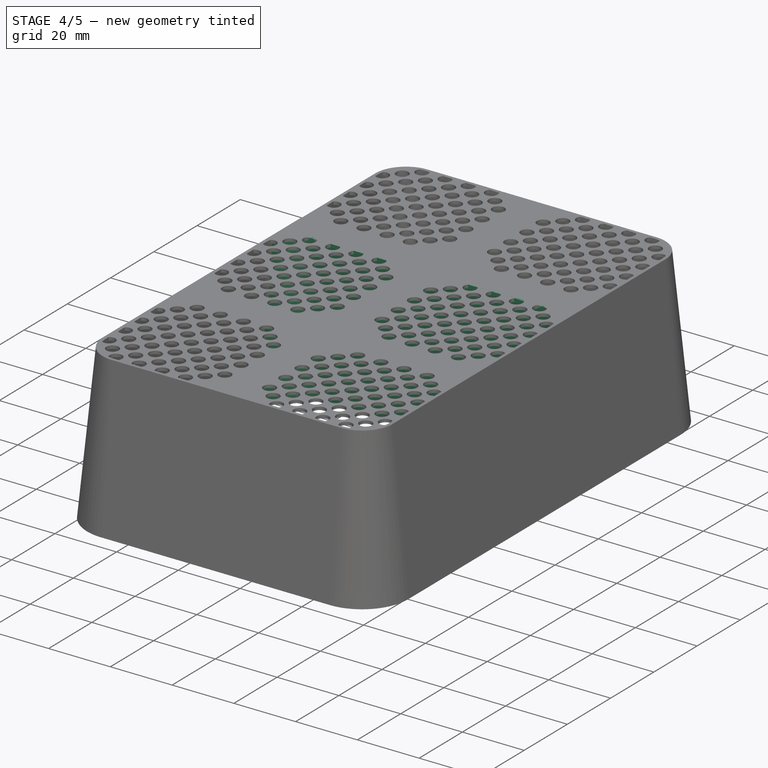
[diagram: stage 4 of 5 — iso view after this stage's code; geometry added in this stage tinted green]
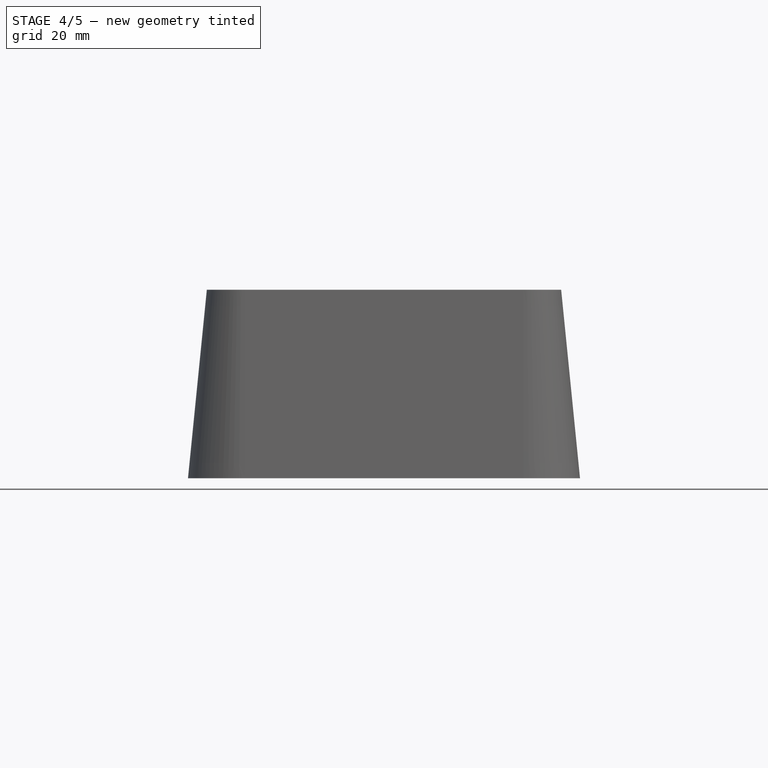
[diagram: stage 4 of 5 — front view after this stage's code; geometry added in this stage tinted green]
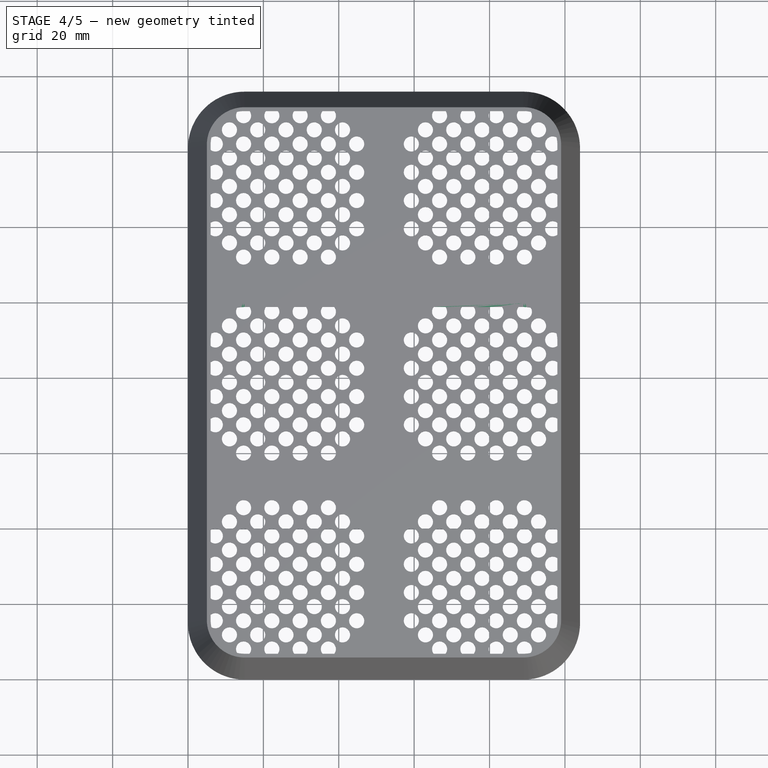
[diagram: stage 4 of 5 — top view after this stage's code; geometry added in this stage tinted green]
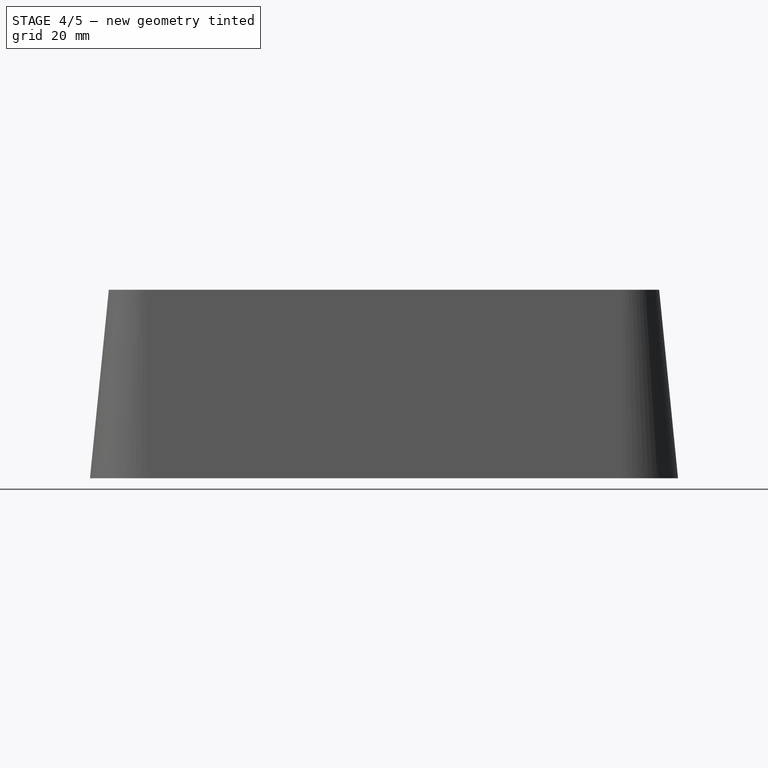
[diagram: stage 4 of 5 — right view after this stage's code; geometry added in this stage tinted green]
FEATURE [Sketcher::SketchObject] Sketch005
  FullyConstrained = true
  sketch-geometry (8):
    g0: LineSegment StartX=15 StartY=0 StartZ=0 EndX=37 EndY=0 EndZ=0
    g1: LineSegment StartX=52 StartY=15 StartZ=0 EndX=52 EndY=37 EndZ=0
    g2: LineSegment StartX=37 StartY=52 StartZ=0 EndX=15 EndY=52 EndZ=0
    g3: LineSegment StartX=0 StartY=37 StartZ=0 EndX=0 EndY=15 EndZ=0
    g4: ArcOfCircle CenterX=15 CenterY=37 CenterZ=0 NormalX=0 NormalY=0 NormalZ=1 AngleXU=0 Radius=15 StartAngle=1.5708 EndAngle=3.14159
    g5: ArcOfCircle CenterX=37 CenterY=37 CenterZ=0 NormalX=0 NormalY=0 NormalZ=1 AngleXU=0 Radius=15 StartAngle=0 EndAngle=1.5708
    g6: ArcOfCircle CenterX=37 CenterY=15 CenterZ=0 NormalX=0 NormalY=0 NormalZ=1 AngleXU=0 Radius=15 StartAngle=4.71239 EndAngle=6.28319
    g7: ArcOfCircle CenterX=15 CenterY=15 CenterZ=0 NormalX=0 NormalY=0 NormalZ=1 AngleXU=0 Radius=15 StartAngle=3.14159 EndAngle=4.71239
  constraints (20):
    c: Horizontal(g0)
    c: Horizontal(g2)
    c: Vertical(g1)
    c: Vertical(g3)
    c: Tangent(g3,g4) = -1.5708
    c: Tangent(g2,g4) = -1.5708
    c: Tangent(g2,g5) = -1.5708
    c: Tangent(g1,g5) = -1.5708
    c: Tangent(g1,g6) = -1.5708
    c: Tangent(g0,g6) = -1.5708
    c: Tangent(g0,g7) = -1.5708
    c: Tangent(g3,g7) = -1.5708
    c: Radius(g4) = 15
    c: Radius(g5) = 15
    c: Radius(g7) = 15
    c: Radius(g6) = 15
    c: DistanceX(g3,g1) = 52
    c: DistanceY(g0,g2) = 52
    c: PointOnObject(g0,g-1)
    c: PointOnObject(g3,g-2)
FEATURE [Part::Face] Face005
  FaceMakerClass = Part::FaceMakerBullseye
  Sources = -> [Sketch005]
FEATURE [Part::Offset] Offset001
  Fill = false
  Intersection = false
  Join = 0
  Mode = 0
  SelfIntersection = false
  Source = -> Face005
  Value = 50
FEATURE [Sketcher::SketchObject] Sketch007
  FullyConstrained = true
  sketch-geometry (8):
    g0: LineSegment StartX=15 StartY=1.439e-13 StartZ=0 EndX=89 EndY=1.439e-13 EndZ=0
    g1: LineSegment StartX=104 StartY=15 StartZ=0 EndX=104 EndY=89 EndZ=0
    g2: LineSegment StartX=89 StartY=104 StartZ=0 EndX=15 EndY=104 EndZ=0
    g3: LineSegment StartX=1.24e-14 StartY=89 StartZ=0 EndX=1.24e-14 EndY=15 EndZ=0
    g4: ArcOfCircle CenterX=15 CenterY=89 CenterZ=0 NormalX=0 NormalY=0 NormalZ=1 AngleXU=0 Radius=15 StartAngle=1.5708 EndAngle=3.14159
    g5: ArcOfCircle CenterX=89 CenterY=89 CenterZ=0 NormalX=0 NormalY=0 NormalZ=1 AngleXU=0 Radius=15 StartAngle=0 EndAngle=1.5708
    g6: ArcOfCircle CenterX=89 CenterY=15 CenterZ=0 NormalX=0 NormalY=0 NormalZ=1 AngleXU=0 Radius=15 StartAngle=4.71239 EndAngle=6.28319
    g7: ArcOfCircle CenterX=15 CenterY=15 CenterZ=0 NormalX=0 NormalY=0 NormalZ=1 AngleXU=0 Radius=15 StartAngle=3.14159 EndAngle=4.71239
  constraints (20):
    c: Horizontal(g0)
    c: Horizontal(g2)
    c: Vertical(g1)
    c: Vertical(g3)
    c: Tangent(g3,g4) = -1.5708
    c: Tangent(g2,g4) = -1.5708
    c: Tangent(g2,g5) = -1.5708
    c: Tangent(g1,g5) = -1.5708
    c: Tangent(g1,g6) = -1.5708
    c: Tangent(g0,g6) = -1.5708
    c: Tangent(g0,g7) = -1.5708
    c: Tangent(g3,g7) = -1.5708
    c: Radius(g4) = 15
    c: Radius(g5) = 15
    c: Radius(g7) = 15
    c: Radius(g6) = 15
    c: DistanceX(g3,g1) = 104
    c: DistanceY(g0,g2) = 104
    c: PointOnObject(g0,g-1)
    c: PointOnObject(g3,g-2)
FEATURE [Part::Face] Face006
  FaceMakerClass = Part::FaceMakerBullseye
  Sources = -> [Sketch007]
FEATURE [Sketcher::SketchObject] Sketch006
  ExternalGeometry = -> [Offset001,Face006]
  FullyConstrained = true
  MapMode = 5
  Placement = pos=(0,0,50) rot=(0,0,1;0rad)
  Support = -> [Offset001]
  sketch-geometry (8):
    g0: LineSegment StartX=15 StartY=99 StartZ=0 EndX=89 EndY=99 EndZ=0
    g1: LineSegment StartX=99 StartY=89 StartZ=0 EndX=99 EndY=15 EndZ=0
    g2: LineSegment StartX=89 StartY=5 StartZ=0 EndX=15 EndY=5 EndZ=0
    g3: LineSegment StartX=5 StartY=15 StartZ=0 EndX=5 EndY=89 EndZ=0
    g4: ArcOfCircle CenterX=15 CenterY=89 CenterZ=0 NormalX=0 NormalY=0 NormalZ=1 AngleXU=0 Radius=10 StartAngle=1.5708 EndAngle=3.14159
    g5: ArcOfCircle CenterX=89 CenterY=89 CenterZ=0 NormalX=0 NormalY=0 NormalZ=1 AngleXU=0 Radius=10 StartAngle=8e-16 EndAngle=1.5708
    g6: ArcOfCircle CenterX=89 CenterY=15 CenterZ=0 NormalX=0 NormalY=0 NormalZ=1 AngleXU=0 Radius=10 StartAngle=4.71239 EndAngle=6.28319
    g7: ArcOfCircle CenterX=15 CenterY=15 CenterZ=0 NormalX=0 NormalY=0 NormalZ=1 AngleXU=0 Radius=10 StartAngle=3.14159 EndAngle=4.71239
  constraints (20):
    c: Horizontal(g0)
    c: Horizontal(g2)
    c: Vertical(g1)
    c: Vertical(g3)
    c: Tangent(g3,g4) = 1.5708
    c: Tangent(g0,g4) = 1.5708
    c: Tangent(g0,g5) = 1.5708
    c: Tangent(g1,g5) = 1.5708
    c: Tangent(g1,g6) = 1.5708
    c: Tangent(g2,g6) = 1.5708
    c: Tangent(g2,g7) = 1.5708
    c: Tangent(g3,g7) = 1.5708
    c: Radius(g4) = 10
    c: Radius(g5) = 10
    c: Radius(g6) = 10
    c: Radius(g7) = 10
    c: DistanceX(g-5,g3) = 5
    c: DistanceY(g-4,g2) = 5
    c: DistanceY(g0,g-7) = 5
    c: DistanceX(g1,g-8) = 5
FEATURE [Part::Face] Face007
  FaceMakerClass = Part::FaceMakerBullseye
  Sources = -> [Sketch006]
FEATURE [Part::Loft] Loft002
  Closed = false
  MaxDegree = 5
  Ruled = false
  Sections = -> [Face006,Face007]
  Solid = true
FEATURE [Sketcher::SketchObject] Sketch008
  ExternalGeometry = -> [Sketch005,Face006]
  FullyConstrained = true
  MapMode = 5
  Support = -> [Face006]
  sketch-geometry (8):
    g0: LineSegment StartX=15 StartY=103 StartZ=0 EndX=89 EndY=103 EndZ=0
    g1: LineSegment StartX=103 StartY=89 StartZ=0 EndX=103 EndY=15 EndZ=0
    g2: LineSegment StartX=89 StartY=1 StartZ=0 EndX=15 EndY=1 EndZ=0
    g3: LineSegment StartX=1 StartY=15 StartZ=0 EndX=1 EndY=89 EndZ=0
    g4: ArcOfCircle CenterX=15 CenterY=89 CenterZ=0 NormalX=0 NormalY=0 NormalZ=1 AngleXU=0 Radius=14 StartAngle=1.5708 EndAngle=3.14159
    g5: ArcOfCircle CenterX=89 CenterY=89 CenterZ=0 NormalX=0 NormalY=0 NormalZ=1 AngleXU=0 Radius=14 StartAngle=2e-16 EndAngle=1.5708
    g6: ArcOfCircle CenterX=89 CenterY=15 CenterZ=0 NormalX=0 NormalY=0 NormalZ=1 AngleXU=0 Radius=14 StartAngle=4.71239 EndAngle=6.28319
    g7: ArcOfCircle CenterX=15 CenterY=15 CenterZ=0 NormalX=0 NormalY=0 NormalZ=1 AngleXU=0 Radius=14 StartAngle=3.14159 EndAngle=4.71239
  constraints (20):
    c: Horizontal(g0)
    c: Horizontal(g2)
    c: Vertical(g1)
    c: Vertical(g3)
    c: Tangent(g3,g4) = 1.5708
    c: Tangent(g0,g4) = 1.5708
    c: Tangent(g0,g5) = 1.5708
    c: Tangent(g1,g5) = 1.5708
    c: Tangent(g1,g6) = 1.5708
    c: Tangent(g2,g6) = 1.5708
    c: Tangent(g2,g7) = 1.5708
    c: Tangent(g3,g7) = 1.5708
    c: Radius(g4) = 14
    c: Radius(g5) = 14
    c: Radius(g6) = 14
    c: Radius(g7) = 14
    c: DistanceY(g-1,g2) = 1
    c: DistanceX(g-1,g3) = 1
    c: DistanceY(g0,g-5) = 1
    c: DistanceX(g1,g-6) = 1
FEATURE [Part::Face] Face008
  FaceMakerClass = Part::FaceMakerBullseye
  Sources = -> [Sketch008]
FEATURE [Sketcher::SketchObject] Sketch009
  AttachmentOffset = pos=(0,0,-1) rot=(0,0,1;0rad)
  ExternalGeometry = -> [Sketch006]
  FullyConstrained = true
  MapMode = 5
  Placement = pos=(0,0,49) rot=(0,0,1;0rad)
  Support = -> [Face007]
  sketch-geometry (8):
    g0: LineSegment StartX=15 StartY=98 StartZ=0 EndX=89 EndY=98 EndZ=0
    g1: LineSegment StartX=98 StartY=89 StartZ=0 EndX=98 EndY=15 EndZ=0
    g2: LineSegment StartX=89 StartY=6 StartZ=0 EndX=15 EndY=6 EndZ=0
    g3: LineSegment StartX=6 StartY=15 StartZ=0 EndX=6 EndY=89 EndZ=0
    g4: ArcOfCircle CenterX=15 CenterY=89 CenterZ=0 NormalX=0 NormalY=0 NormalZ=1 AngleXU=0 Radius=9 StartAngle=1.5708 EndAngle=3.14159
    g5: ArcOfCircle CenterX=89 CenterY=89 CenterZ=0 NormalX=0 NormalY=0 NormalZ=1 AngleXU=0 Radius=9 StartAngle=2e-16 EndAngle=1.5708
    g6: ArcOfCircle CenterX=89 CenterY=15 CenterZ=0 NormalX=0 NormalY=0 NormalZ=1 AngleXU=0 Radius=9 StartAngle=4.71239 EndAngle=6.28319
    g7: ArcOfCircle CenterX=15 CenterY=15 CenterZ=0 NormalX=0 NormalY=0 NormalZ=1 AngleXU=0 Radius=9 StartAngle=3.14159 EndAngle=4.71239
  constraints (20):
    c: Horizontal(g0)
    c: Horizontal(g2)
    c: Vertical(g1)
    c: Vertical(g3)
    c: Tangent(g3,g4) = 1.5708
    c: Tangent(g0,g4) = 1.5708
    c: Tangent(g1,g5) = 1.5708
    c: Tangent(g0,g5) = 1.5708
    c: Tangent(g1,g6) = 1.5708
    c: Tangent(g2,g6) = 1.5708
    c: Tangent(g2,g7) = 1.5708
    c: Tangent(g3,g7) = 1.5708
    c: Radius(g7) = 9
    c: Radius(g4) = 9
    c: Radius(g5) = 9
    c: Radius(g6) = 9
    c: DistanceX(g-6,g3) = 1
    c: DistanceX(g1,g-4) = 1
    c: DistanceY(g0,g-3) = 1
    c: DistanceY(g-5,g2) = 1
FEATURE [Part::Face] Face009
  FaceMakerClass = Part::FaceMakerBullseye
  Sources = -> [Sketch009]
FEATURE [Part::Loft] Loft003
  Closed = false
  MaxDegree = 5
  Ruled = false
  Sections = -> [Face008,Face009]
  Solid = true
FEATURE [Part::Cut] Cut001  label="Pot 2x2_"
  Base = -> Loft002
  Tool = -> Loft003
FEATURE [Sketcher::SketchObject] Sketch022
  ExternalGeometry = -> [Cut001]
  FullyConstrained = true
  MapMode = 5
  Placement = pos=(0,0,50) rot=(0,0,1;0rad)
  Support = -> [Cut001]
  sketch-geometry (8):
    g0: LineSegment StartX=15 StartY=6 StartZ=0 EndX=89 EndY=6 EndZ=0
    g1: LineSegment StartX=98 StartY=15 StartZ=0 EndX=98 EndY=89 EndZ=0
    g2: LineSegment StartX=89 StartY=98 StartZ=0 EndX=15 EndY=98 EndZ=0
    g3: LineSegment StartX=6 StartY=89 StartZ=0 EndX=6 EndY=15 EndZ=0
    g4: ArcOfCircle CenterX=15 CenterY=15 CenterZ=0 NormalX=0 NormalY=0 NormalZ=1 AngleXU=0 Radius=9 StartAngle=3.14159 EndAngle=4.71239
    g5: ArcOfCircle CenterX=89 CenterY=15 CenterZ=0 NormalX=0 NormalY=0 NormalZ=1 AngleXU=0 Radius=9 StartAngle=4.71239 EndAngle=6.28319
    g6: ArcOfCircle CenterX=89 CenterY=89 CenterZ=0 NormalX=0 NormalY=0 NormalZ=1 AngleXU=0 Radius=9 StartAngle=7e-16 EndAngle=1.5708
    g7: ArcOfCircle CenterX=15 CenterY=89 CenterZ=0 NormalX=0 NormalY=0 NormalZ=1 AngleXU=0 Radius=9 StartAngle=1.5708 EndAngle=3.14159
  constraints (20):
    c: Horizontal(g0)
    c: Horizontal(g2)
    c: Vertical(g1)
    c: Vertical(g3)
    c: Tangent(g3,g4) = -1.5708
    c: Tangent(g0,g4) = -1.5708
    c: Tangent(g0,g5) = -1.5708
    c: Tangent(g1,g5) = -1.5708
    c: Tangent(g1,g6) = -1.5708
    c: Tangent(g2,g6) = -1.5708
    c: Tangent(g3,g7) = -1.5708
    c: Tangent(g2,g7) = -1.5708
    c: Radius(g7) = 9
    c: Radius(g6) = 9
    c: Radius(g5) = 9
    c: Radius(g4) = 9
    c: DistanceX(g-4,g3) = 1
    c: DistanceY(g-6,g0) = 1
    c: DistanceY(g2,g-3) = 1
    c: DistanceX(g1,g-5) = 1
FEATURE [Part::Face] Face022
  FaceMakerClass = Part::FaceMakerBullseye
  Sources = -> [Sketch022]
FEATURE [Part::Extrusion] Extrude007
  Base = -> Face022
  Dir = (0,0,1)
  DirMode = 2
  FaceMakerClass = Part::FaceMakerBullseye
  LengthFwd = 0
  LengthRev = 1
  Solid = false
  Symmetric = false
FEATURE [Part::MultiCommon] Common001
  Shapes = -> [Fusion004,Extrude007]
FEATURE [Part::Cut] Cut004  label="Pot 2x2"
  Base = -> Cut001
  Tool = -> Common001
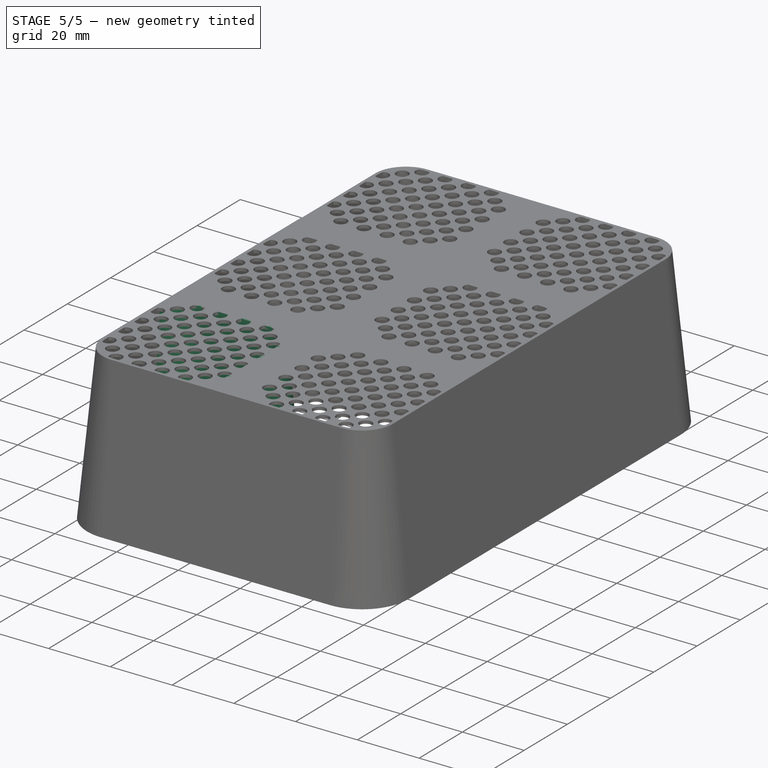
[diagram: stage 5 of 5 — iso view after this stage's code; geometry added in this stage tinted green]
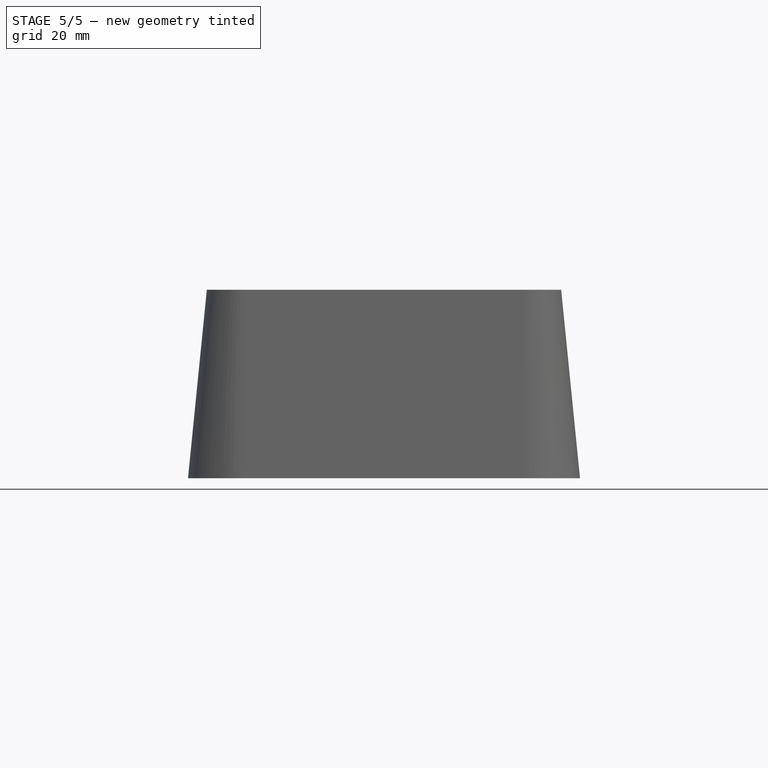
[diagram: stage 5 of 5 — front view after this stage's code; geometry added in this stage tinted green]
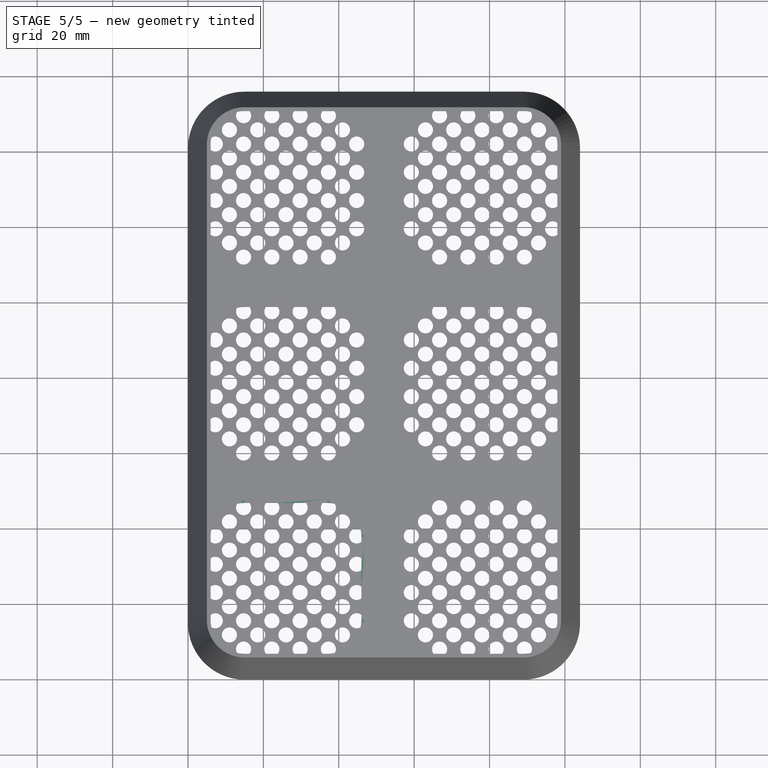
[diagram: stage 5 of 5 — top view after this stage's code; geometry added in this stage tinted green]
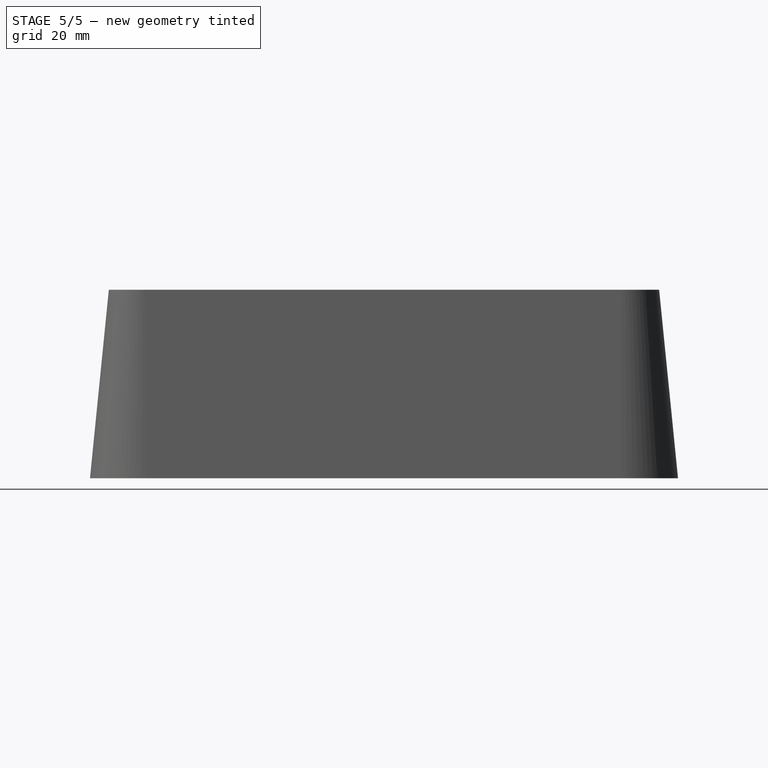
[diagram: stage 5 of 5 — right view after this stage's code; geometry added in this stage tinted green]
FEATURE [Sketcher::SketchObject] Sketch
  FullyConstrained = true
  sketch-geometry (8):
    g0: LineSegment StartX=15 StartY=0 StartZ=0 EndX=37 EndY=0 EndZ=0
    g1: LineSegment StartX=52 StartY=15 StartZ=0 EndX=52 EndY=37 EndZ=0
    g2: LineSegment StartX=37 StartY=52 StartZ=0 EndX=15 EndY=52 EndZ=0
    g3: LineSegment StartX=0 StartY=37 StartZ=0 EndX=0 EndY=15 EndZ=0
    g4: ArcOfCircle CenterX=15 CenterY=37 CenterZ=0 NormalX=0 NormalY=0 NormalZ=1 AngleXU=0 Radius=15 StartAngle=1.5708 EndAngle=3.14159
    g5: ArcOfCircle CenterX=37 CenterY=37 CenterZ=0 NormalX=0 NormalY=0 NormalZ=1 AngleXU=0 Radius=15 StartAngle=0 EndAngle=1.5708
    g6: ArcOfCircle CenterX=37 CenterY=15 CenterZ=0 NormalX=0 NormalY=0 NormalZ=1 AngleXU=0 Radius=15 StartAngle=4.71239 EndAngle=6.28319
    g7: ArcOfCircle CenterX=15 CenterY=15 CenterZ=0 NormalX=0 NormalY=0 NormalZ=1 AngleXU=0 Radius=15 StartAngle=3.14159 EndAngle=4.71239
  constraints (20):
    c: Horizontal(g0)
    c: Horizontal(g2)
    c: Vertical(g1)
    c: Vertical(g3)
    c: Tangent(g3,g4) = -1.5708
    c: Tangent(g2,g4) = -1.5708
    c: Tangent(g2,g5) = -1.5708
    c: Tangent(g1,g5) = -1.5708
    c: Tangent(g1,g6) = -1.5708
    c: Tangent(g0,g6) = -1.5708
    c: Tangent(g0,g7) = -1.5708
    c: Tangent(g3,g7) = -1.5708
    c: Radius(g4) = 15
    c: Radius(g5) = 15
    c: Radius(g7) = 15
    c: Radius(g6) = 15
    c: DistanceX(g3,g1) = 52
    c: DistanceY(g0,g2) = 52
    c: PointOnObject(g0,g-1)
    c: PointOnObject(g3,g-2)
FEATURE [Part::Face] Face
  FaceMakerClass = Part::FaceMakerBullseye
  Sources = -> [Sketch]
FEATURE [Part::Offset] Offset
  Fill = false
  Intersection = false
  Join = 0
  Mode = 0
  SelfIntersection = false
  Source = -> Face
  Value = 50
FEATURE [Sketcher::SketchObject] Sketch001
  ExternalGeometry = -> [Offset]
  FullyConstrained = true
  MapMode = 5
  Placement = pos=(0,0,50) rot=(0,0,1;0rad)
  Support = -> [Offset]
  sketch-geometry (8):
    g0: LineSegment StartX=15 StartY=47 StartZ=0 EndX=37 EndY=47 EndZ=0
    g1: LineSegment StartX=47 StartY=37 StartZ=0 EndX=47 EndY=15 EndZ=0
    g2: LineSegment StartX=37 StartY=5 StartZ=0 EndX=15 EndY=5 EndZ=0
    g3: LineSegment StartX=5 StartY=15 StartZ=0 EndX=5 EndY=37 EndZ=0
    g4: ArcOfCircle CenterX=15 CenterY=37 CenterZ=0 NormalX=0 NormalY=0 NormalZ=1 AngleXU=0 Radius=10 StartAngle=1.5708 EndAngle=3.14159
    g5: ArcOfCircle CenterX=37 CenterY=37 CenterZ=0 NormalX=0 NormalY=0 NormalZ=1 AngleXU=0 Radius=10 StartAngle=0 EndAngle=1.5708
    g6: ArcOfCircle CenterX=37 CenterY=15 CenterZ=0 NormalX=0 NormalY=0 NormalZ=1 AngleXU=0 Radius=10 StartAngle=4.71239 EndAngle=6.28319
    g7: ArcOfCircle CenterX=15 CenterY=15 CenterZ=0 NormalX=0 NormalY=0 NormalZ=1 AngleXU=0 Radius=10 StartAngle=3.14159 EndAngle=4.71239
  constraints (20):
    c: Horizontal(g0)
    c: Horizontal(g2)
    c: Vertical(g1)
    c: Vertical(g3)
    c: Tangent(g3,g4) = 1.5708
    c: Tangent(g0,g4) = 1.5708
    c: Tangent(g0,g5) = 1.5708
    c: Tangent(g1,g5) = 1.5708
    c: Tangent(g1,g6) = 1.5708
    c: Tangent(g2,g6) = 1.5708
    c: Tangent(g2,g7) = 1.5708
    c: Tangent(g3,g7) = 1.5708
    c: Radius(g4) = 10
    c: Radius(g5) = 10
    c: Radius(g6) = 10
    c: Radius(g7) = 10
    c: DistanceY(g0,g-6) = 5
    c: DistanceX(g-5,g3) = 5
    c: DistanceY(g-4,g2) = 5
    c: DistanceX(g1,g-3) = 5
FEATURE [Sketcher::SketchObject] Sketch002
  FullyConstrained = true
  sketch-geometry (8):
    g0: LineSegment StartX=15 StartY=0 StartZ=0 EndX=37 EndY=0 EndZ=0
    g1: LineSegment StartX=52 StartY=15 StartZ=0 EndX=52 EndY=37 EndZ=0
    g2: LineSegment StartX=37 StartY=52 StartZ=0 EndX=15 EndY=52 EndZ=0
    g3: LineSegment StartX=0 StartY=37 StartZ=0 EndX=0 EndY=15 EndZ=0
    g4: ArcOfCircle CenterX=15 CenterY=37 CenterZ=0 NormalX=0 NormalY=0 NormalZ=1 AngleXU=0 Radius=15 StartAngle=1.5708 EndAngle=3.14159
    g5: ArcOfCircle CenterX=37 CenterY=37 CenterZ=0 NormalX=0 NormalY=0 NormalZ=1 AngleXU=0 Radius=15 StartAngle=2e-16 EndAngle=1.5708
    g6: ArcOfCircle CenterX=37 CenterY=15 CenterZ=0 NormalX=0 NormalY=0 NormalZ=1 AngleXU=0 Radius=15 StartAngle=4.71239 EndAngle=6.28319
    g7: ArcOfCircle CenterX=15 CenterY=15 CenterZ=0 NormalX=0 NormalY=0 NormalZ=1 AngleXU=0 Radius=15 StartAngle=3.14159 EndAngle=4.71239
  constraints (20):
    c: Horizontal(g0)
    c: Horizontal(g2)
    c: Vertical(g1)
    c: Vertical(g3)
    c: Tangent(g3,g4) = -1.5708
    c: Tangent(g2,g4) = -1.5708
    c: Tangent(g2,g5) = -1.5708
    c: Tangent(g1,g5) = -1.5708
    c: Tangent(g1,g6) = -1.5708
    c: Tangent(g0,g6) = -1.5708
    c: Tangent(g0,g7) = -1.5708
    c: Tangent(g3,g7) = -1.5708
    c: Radius(g4) = 15
    c: Radius(g5) = 15
    c: Radius(g7) = 15
    c: Radius(g6) = 15
    c: DistanceX(g3,g1) = 52
    c: DistanceY(g0,g2) = 52
    c: PointOnObject(g0,g-1)
    c: PointOnObject(g3,g-2)
FEATURE [Part::Face] Face001
  FaceMakerClass = Part::FaceMakerBullseye
  Sources = -> [Sketch002]
FEATURE [Part::Face] Face002
  FaceMakerClass = Part::FaceMakerBullseye
  Sources = -> [Sketch001]
FEATURE [Part::Loft] Loft
  Closed = false
  MaxDegree = 5
  Ruled = false
  Sections = -> [Face001,Face002]
  Solid = true
FEATURE [Sketcher::SketchObject] Sketch003
  ExternalGeometry = -> [Sketch]
  FullyConstrained = true
  MapMode = 5
  Support = -> [Face001]
  sketch-geometry (8):
    g0: LineSegment StartX=15 StartY=51 StartZ=0 EndX=37 EndY=51 EndZ=0
    g1: LineSegment StartX=51 StartY=37 StartZ=0 EndX=51 EndY=15 EndZ=0
    g2: LineSegment StartX=37 StartY=1 StartZ=0 EndX=15 EndY=1 EndZ=0
    g3: LineSegment StartX=1 StartY=15 StartZ=0 EndX=1 EndY=37 EndZ=0
    g4: ArcOfCircle CenterX=15 CenterY=37 CenterZ=0 NormalX=0 NormalY=0 NormalZ=1 AngleXU=0 Radius=14 StartAngle=1.5708 EndAngle=3.14159
    g5: ArcOfCircle CenterX=37 CenterY=37 CenterZ=0 NormalX=0 NormalY=0 NormalZ=1 AngleXU=0 Radius=14 StartAngle=0 EndAngle=1.5708
    g6: ArcOfCircle CenterX=37 CenterY=15 CenterZ=0 NormalX=0 NormalY=0 NormalZ=1 AngleXU=0 Radius=14 StartAngle=4.71239 EndAngle=6.28319
    g7: ArcOfCircle CenterX=15 CenterY=15 CenterZ=0 NormalX=0 NormalY=0 NormalZ=1 AngleXU=0 Radius=14 StartAngle=3.14159 EndAngle=4.71239
  constraints (20):
    c: Horizontal(g0)
    c: Horizontal(g2)
    c: Vertical(g1)
    c: Vertical(g3)
    c: Tangent(g3,g4) = 1.5708
    c: Tangent(g0,g4) = 1.5708
    c: Tangent(g0,g5) = 1.5708
    c: Tangent(g1,g5) = 1.5708
    c: Tangent(g1,g6) = 1.5708
    c: Tangent(g2,g6) = 1.5708
    c: Tangent(g2,g7) = 1.5708
    c: Tangent(g3,g7) = 1.5708
    c: Radius(g4) = 14
    c: Radius(g5) = 14
    c: Radius(g6) = 14
    c: Radius(g7) = 14
    c: DistanceY(g-1,g2) = 1
    c: DistanceX(g-1,g3) = 1
    c: DistanceX(g1,g-4) = 1
    c: DistanceY(g0,g-3) = 1
FEATURE [Sketcher::SketchObject] Sketch004
  AttachmentOffset = pos=(0,0,-1) rot=(0,0,1;0rad)
  ExternalGeometry = -> [Sketch001]
  FullyConstrained = true
  MapMode = 5
  Placement = pos=(0,0,49) rot=(0,0,1;0rad)
  Support = -> [Face002]
  sketch-geometry (8):
    g0: LineSegment StartX=15 StartY=46 StartZ=0 EndX=37 EndY=46 EndZ=0
    g1: LineSegment StartX=46 StartY=37 StartZ=0 EndX=46 EndY=15 EndZ=0
    g2: LineSegment StartX=37 StartY=6 StartZ=0 EndX=15 EndY=6 EndZ=0
    g3: LineSegment StartX=6 StartY=15 StartZ=0 EndX=6 EndY=37 EndZ=0
    g4: ArcOfCircle CenterX=15 CenterY=37 CenterZ=0 NormalX=0 NormalY=0 NormalZ=1 AngleXU=0 Radius=9 StartAngle=1.5708 EndAngle=3.14159
    g5: ArcOfCircle CenterX=37 CenterY=37 CenterZ=0 NormalX=0 NormalY=0 NormalZ=1 AngleXU=0 Radius=9 StartAngle=0 EndAngle=1.5708
    g6: ArcOfCircle CenterX=37 CenterY=15 CenterZ=0 NormalX=0 NormalY=0 NormalZ=1 AngleXU=0 Radius=9 StartAngle=4.71239 EndAngle=6.28319
    g7: ArcOfCircle CenterX=15 CenterY=15 CenterZ=0 NormalX=0 NormalY=0 NormalZ=1 AngleXU=0 Radius=9 StartAngle=3.14159 EndAngle=4.71239
  constraints (20):
    c: Horizontal(g0)
    c: Horizontal(g2)
    c: Vertical(g1)
    c: Vertical(g3)
    c: Tangent(g3,g4) = 1.5708
    c: Tangent(g0,g4) = 1.5708
    c: Tangent(g1,g5) = 1.5708
    c: Tangent(g0,g5) = 1.5708
    c: Tangent(g1,g6) = 1.5708
    c: Tangent(g2,g6) = 1.5708
    c: Tangent(g2,g7) = 1.5708
    c: Tangent(g3,g7) = 1.5708
    c: Radius(g7) = 9
    c: Radius(g4) = 9
    c: Radius(g5) = 9
    c: Radius(g6) = 9
    c: DistanceX(g-6,g3) = 1
    c: DistanceX(g1,g-4) = 1
    c: DistanceY(g0,g-3) = 1
    c: DistanceY(g-5,g2) = 1
FEATURE [Part::Face] Face003
  FaceMakerClass = Part::FaceMakerBullseye
  Sources = -> [Sketch003]
FEATURE [Part::Face] Face004
  FaceMakerClass = Part::FaceMakerBullseye
  Sources = -> [Sketch004]
FEATURE [Part::Loft] Loft001
  Closed = false
  MaxDegree = 5
  Ruled = false
  Sections = -> [Face003,Face004]
  Solid = true
FEATURE [Part::Cut] Cut  label="Pot 1x1_"
  Base = -> Loft
  Tool = -> Loft001
FEATURE [Sketcher::SketchObject] Sketch021
  ExternalGeometry = -> [Cut]
  FullyConstrained = true
  MapMode = 5
  Placement = pos=(0,0,50) rot=(0,0,1;0rad)
  Support = -> [Cut]
  sketch-geometry (8):
    g0: LineSegment StartX=15 StartY=46 StartZ=0 EndX=37 EndY=46 EndZ=0
    g1: LineSegment StartX=46 StartY=37 StartZ=0 EndX=46 EndY=15 EndZ=0
    g2: LineSegment StartX=37 StartY=6 StartZ=0 EndX=15 EndY=6 EndZ=0
    g3: LineSegment StartX=6 StartY=15 StartZ=0 EndX=6 EndY=37 EndZ=0
    g4: ArcOfCircle CenterX=15 CenterY=37 CenterZ=0 NormalX=0 NormalY=0 NormalZ=1 AngleXU=0 Radius=9 StartAngle=1.5708 EndAngle=3.14159
    g5: ArcOfCircle CenterX=37 CenterY=37 CenterZ=0 NormalX=0 NormalY=0 NormalZ=1 AngleXU=0 Radius=9 StartAngle=0 EndAngle=1.5708
    g6: ArcOfCircle CenterX=37 CenterY=15 CenterZ=0 NormalX=0 NormalY=0 NormalZ=1 AngleXU=0 Radius=9 StartAngle=4.71239 EndAngle=6.28319
    g7: ArcOfCircle CenterX=15 CenterY=15 CenterZ=0 NormalX=0 NormalY=0 NormalZ=1 AngleXU=0 Radius=9 StartAngle=3.14159 EndAngle=4.71239
  constraints (20):
    c: Horizontal(g0)
    c: Horizontal(g2)
    c: Vertical(g1)
    c: Vertical(g3)
    c: Tangent(g3,g4) = 1.5708
    c: Tangent(g0,g4) = 1.5708
    c: Tangent(g0,g5) = 1.5708
    c: Tangent(g1,g5) = 1.5708
    c: Tangent(g2,g6) = 1.5708
    c: Tangent(g1,g6) = 1.5708
    c: Tangent(g2,g7) = 1.5708
    c: Tangent(g3,g7) = 1.5708
    c: Diameter(g4) = 18
    c: Diameter(g5) = 18
    c: Diameter(g7) = 18
    c: Diameter(g6) = 18
    c: DistanceY(g0,g-3) = 1
    c: DistanceX(g-4,g3) = 1
    c: DistanceX(g1,g-5) = 1
    c: DistanceY(g-6,g2) = 1
FEATURE [Part::Face] Face021
  FaceMakerClass = Part::FaceMakerBullseye
  Sources = -> [Sketch021]
FEATURE [Part::Extrusion] Extrude006
  Base = -> Sketch021
  Dir = (0,0,1)
  DirMode = 2
  FaceMakerClass = Part::FaceMakerBullseye
  LengthFwd = 1
  LengthRev = 0
  Placement = pos=(0,0,-1) rot=(0,0,1;0rad)
  Solid = true
  Symmetric = false
FEATURE [Part::MultiCommon] Common
  Shapes = -> [Fusion004,Extrude006]
FEATURE [Part::Cut] Cut003  label="Pot 1x1"
  Base = -> Cut
  Tool = -> Common
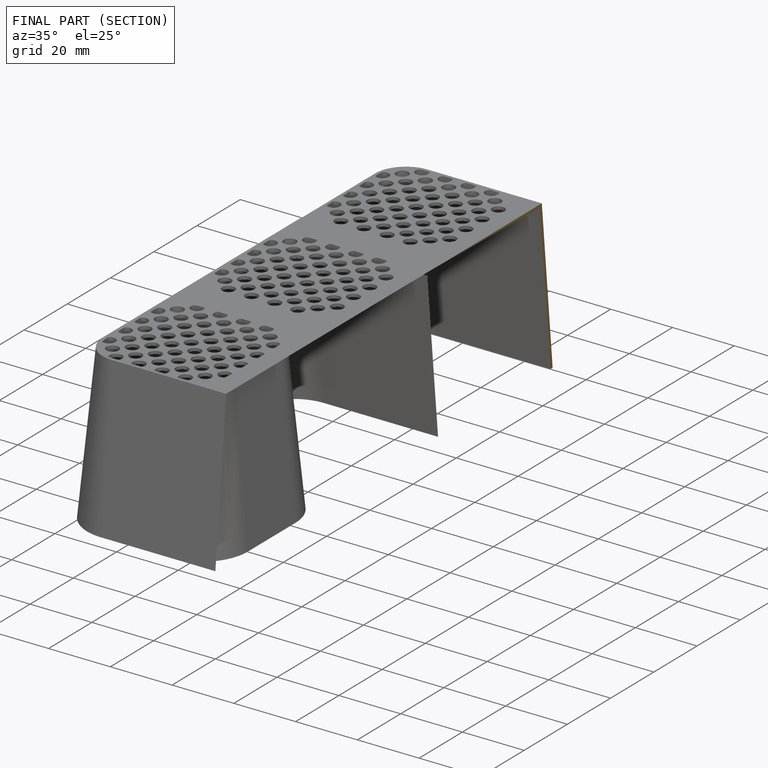
[diagram: finished part — half-section view (interior)]
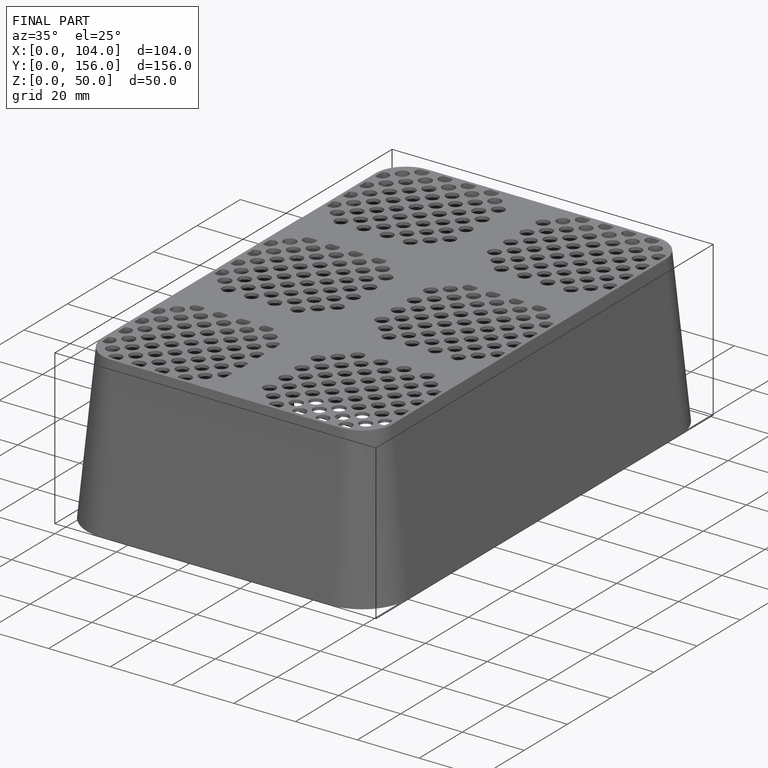
[diagram: finished part — iso view with bounding-box wireframe]
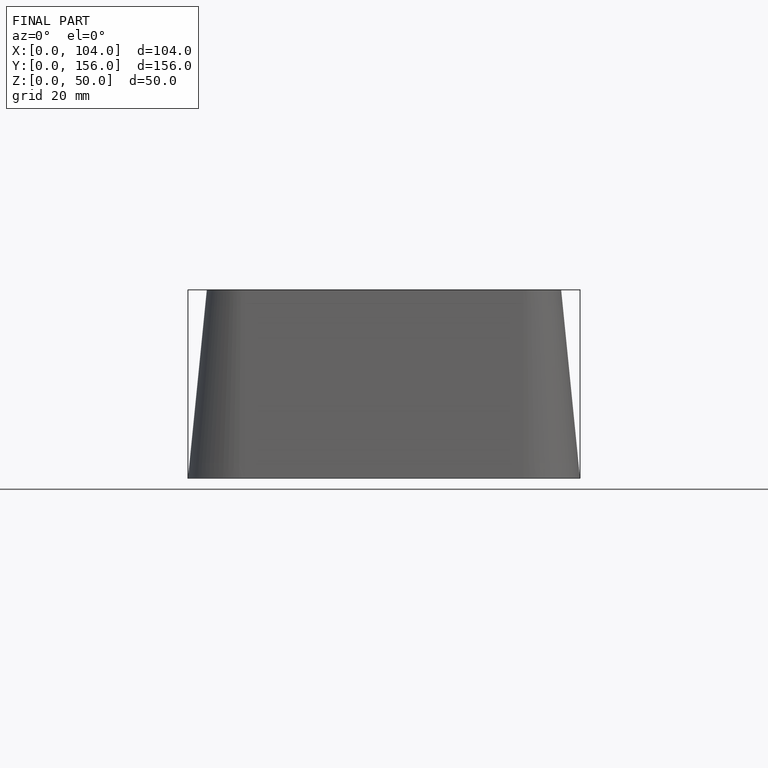
[diagram: finished part — front view with bounding-box wireframe]
